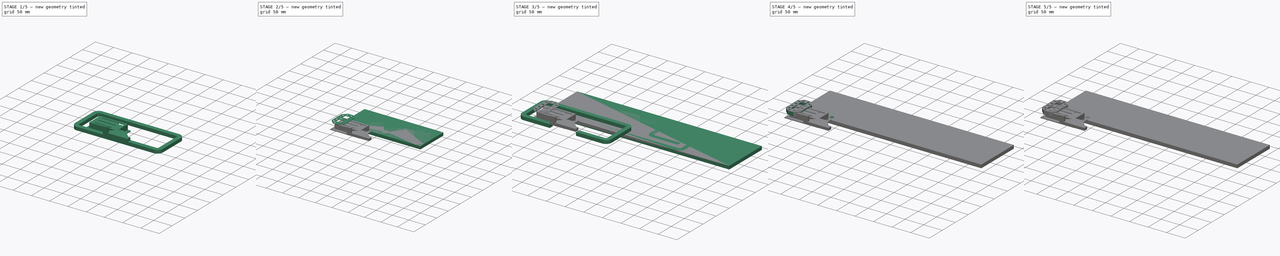
[diagram: build sequence overview — one tinted view per stage of 5, left to right]
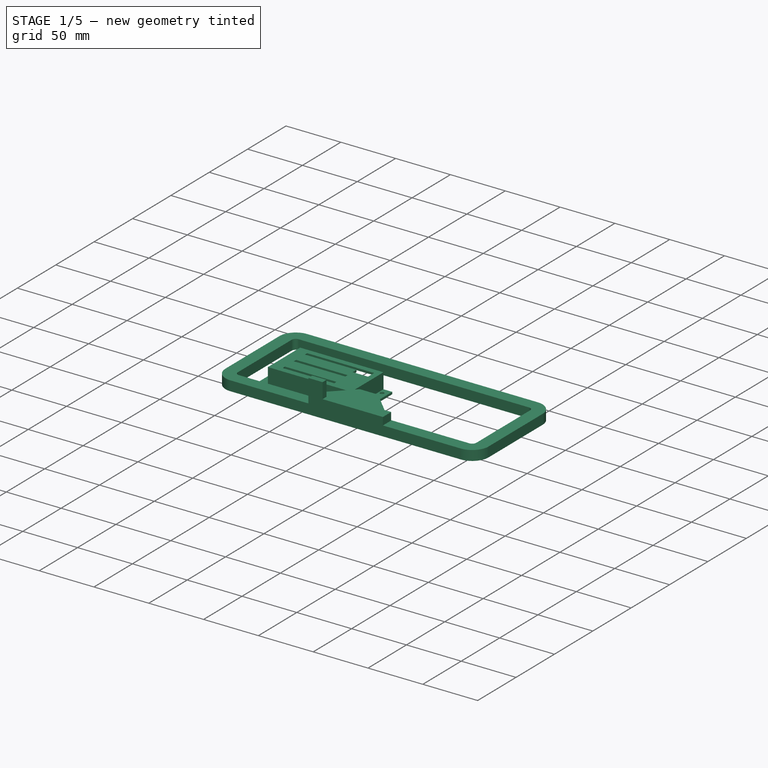
[diagram: stage 1 of 5 — iso view after this stage's code; geometry added in this stage tinted green]
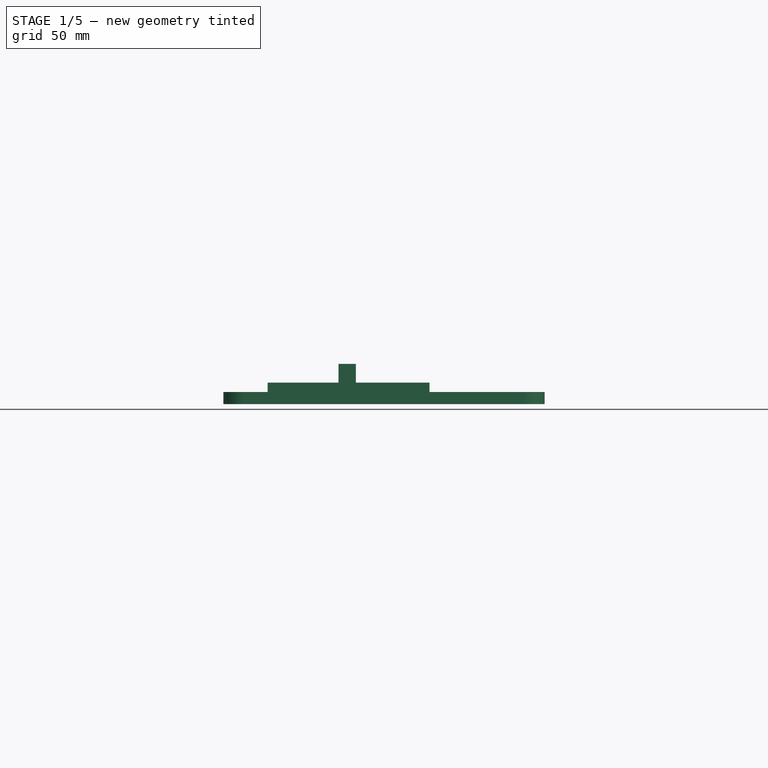
[diagram: stage 1 of 5 — front view after this stage's code; geometry added in this stage tinted green]
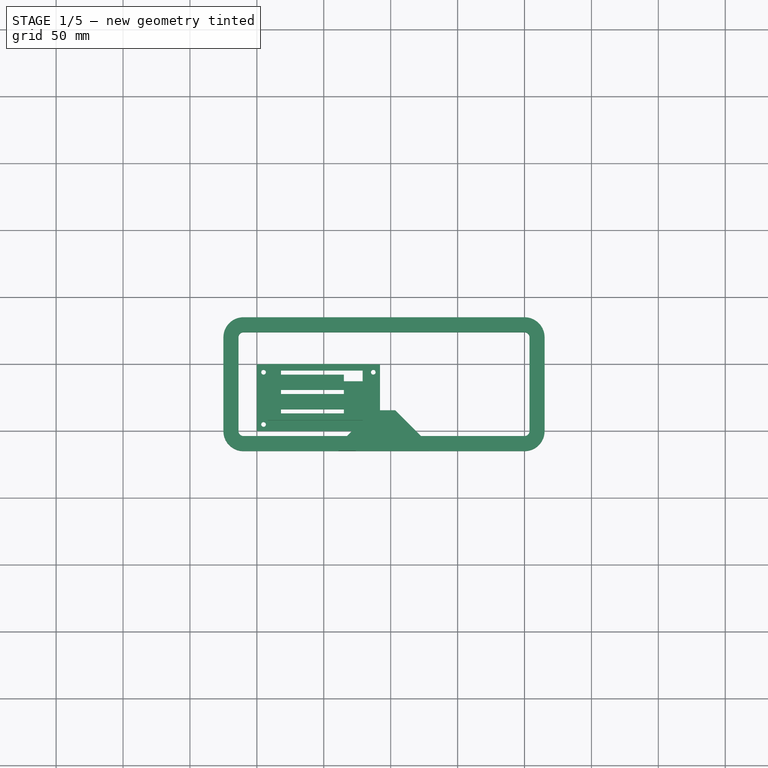
[diagram: stage 1 of 5 — top view after this stage's code; geometry added in this stage tinted green]
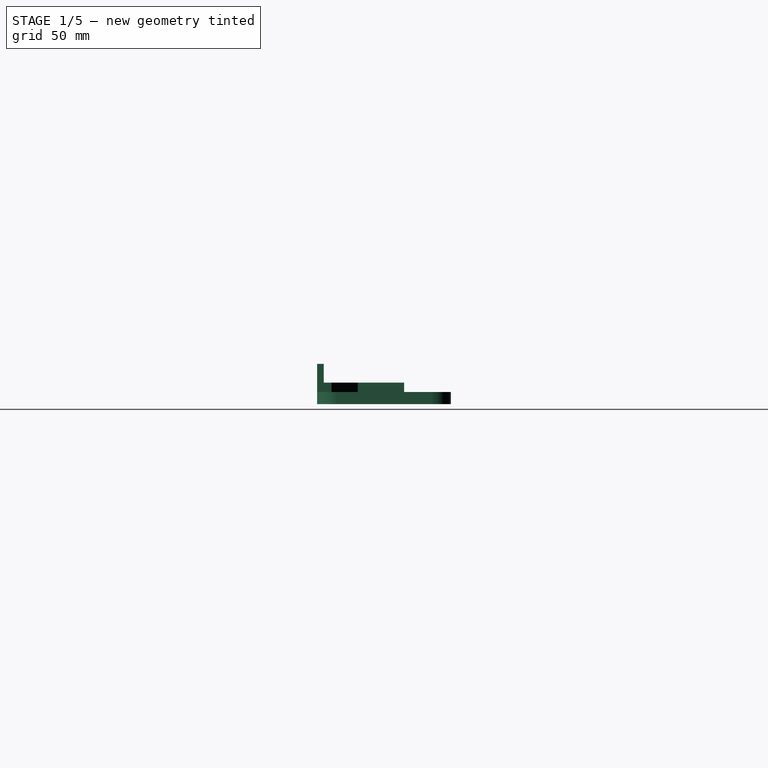
[diagram: stage 1 of 5 — right view after this stage's code; geometry added in this stage tinted green]
FCSTD DOCUMENT  (FreeCAD 0.18R16131 (Git))
Label: Plywood-7-Segment-Digital-Clock
License: All rights reserved
LicenseURL: http://en.wikipedia.org/wiki/All_rights_reserved
objects: Sketcher::SketchObject×32, PartDesign::Pad×18, Path::FeaturePython×16, PartDesign::Body×14, PartDesign::Pocket×8, Part::FeaturePython×8, PartDesign::ShapeBinder×6, App::DocumentObjectGroup×5, PartDesign::Fillet×3, App::FeaturePython×3, Path::FeatureCompoundPython×3, Spreadsheet::Sheet×1, Part::Fillet×1, PartDesign::Plane×1
note: 121 computed .brp shape members not serialized (recipe doc carries the construction recipe); baked Part::Feature solids carry a one-line shape summary decoded from their .brp

FEATURE [PartDesign::Body] Body002  label="LED WS2812B001"
  Group = -> [Sketch005,Pad002,Sketch004,Pad003,Sketch006,Pocket001,Fillet001]
  Origin = -> Origin002
  Placement = pos=(0,-22,0) rot=(0,0,1;0rad)
  Tip = -> Fillet001
FEATURE [Sketcher::SketchObject] Sketch008
  MapMode = 5
  Support = -> [XY_Plane004]
  sketch-geometry (4):
    g0: LineSegment StartX=-25 StartY=-65 StartZ=0 EndX=215 EndY=-65 EndZ=0
    g1: LineSegment StartX=215 StartY=-65 StartZ=0 EndX=215 EndY=35 EndZ=0
    g2: LineSegment StartX=215 StartY=35 StartZ=0 EndX=-25 EndY=35 EndZ=0
    g3: LineSegment StartX=-25 StartY=35 StartZ=0 EndX=-25 EndY=-65 EndZ=0
  constraints (12):
    c: Coincident(g0,g1)
    c: Coincident(g1,g2)
    c: Coincident(g2,g3)
    c: Coincident(g3,g0)
    c: Horizontal(g0)
    c: Horizontal(g2)
    c: Vertical(g1)
    c: Vertical(g3)
    c: DistanceX(g0) = -25
    c: DistanceY(g0) = -65
    c: DistanceX(g1) = 215
    c: DistanceY(g1) = 35
FEATURE [PartDesign::Pad] Pad004
  Length = 9
  Length2 = 100
  Profile = -> Sketch008
  Type = 0
FEATURE [Sketcher::SketchObject] Sketch011
  ExternalGeometry = -> [Sketch009]
  MapMode = 5
  Placement = pos=(0,0,9) rot=(0,0,1;0rad)
  Support = -> [Pad004]
  expr: Constraints[67] = Spreadsheet.ClearanceFromSegments
  expr: Constraints[46] = Spreadsheet.ClearanceFromSegments
  expr: Constraints[23] = Spreadsheet.ClearanceFromSegments
  expr: Constraints[58] = Spreadsheet.ClearanceFromSegments
  expr: Constraints[45] = Spreadsheet.ClearanceFromSegments
  expr: Constraints[29] = Spreadsheet.ClearanceFromSegments
  expr: Constraints[3] = Spreadsheet.ClearanceFromSegments
  expr: Constraints[55] = Spreadsheet.ClearanceFromSegments
  expr: Constraints[7] = Spreadsheet.ClearanceFromSegments
  expr: Constraints[43] = Spreadsheet.ClearanceFromSegments
  expr: Constraints[18] = Spreadsheet.ClearanceFromSegments
  expr: Constraints[65] = Spreadsheet.ClearanceFromSegments
  expr: Constraints[12] = Spreadsheet.ClearanceFromSegments
  expr: Constraints[56] = Spreadsheet.ClearanceFromSegments
  expr: Constraints[44] = Spreadsheet.ClearanceFromSegments
  expr: Constraints[57] = Spreadsheet.ClearanceFromSegments
  sketch-geometry (80):
    g0: LineSegment StartX=5.54584 StartY=20.45 StartZ=0 EndX=21.9527 EndY=20.45 EndZ=0
    g1: LineSegment [constr] StartX=5.75294 StartY=19.95 StartZ=0 EndX=5.75294 EndY=20.45 EndZ=0
    g2: LineSegment [constr] StartX=21.7455 StartY=19.95 StartZ=0 EndX=22.0991 EndY=20.3036 EndZ=0
    g3: LineSegment [constr] StartX=33.7 StartY=-34.4055 StartZ=0 EndX=34.0536 EndY=-34.7591 EndZ=0
    g4: LineSegment StartX=34.2 StartY=-34.6127 StartZ=0 EndX=21.9496 EndY=-46.863 EndZ=0
    g5: LineSegment [constr] StartX=21.7425 StartY=-46.363 StartZ=0 EndX=21.7425 EndY=-46.863 EndZ=0
    g6: LineSegment StartX=21.9496 StartY=-46.863 StartZ=0 EndX=5.54705 EndY=-46.863 EndZ=0
    g7: LineSegment [constr] StartX=-6.2 StartY=-34.4016 StartZ=0 EndX=-6.55366 EndY=-34.755 EndZ=0
    g8: LineSegment StartX=5.54705 StartY=-46.863 StartZ=0 EndX=-6.7 EndY=-34.6086 EndZ=0
    g9: LineSegment [constr] StartX=-6.2 StartY=7.99706 StartZ=0 EndX=-6.7 EndY=7.99706 EndZ=0
    g10: LineSegment StartX=-6.7 StartY=8.20416 StartZ=0 EndX=-6.7 EndY=-34.6086 EndZ=0
    g11: LineSegment [constr] StartX=-6.2 StartY=7.99706 StartZ=0 EndX=-6.55355 EndY=8.35061 EndZ=0
    g12: LineSegment StartX=-6.7 StartY=8.20416 StartZ=0 EndX=5.54584 EndY=20.45 EndZ=0
    g13: LineSegment StartX=6.7 StartY=7.05151 StartZ=0 EndX=20.8 EndY=7.05151 EndZ=0
    g14: LineSegment StartX=20.8 StartY=7.05151 StartZ=0 EndX=20.8 EndY=-6.685 EndZ=0
    g15: LineSegment StartX=20.8 StartY=-6.685 StartZ=0 EndX=6.7 EndY=-6.685 EndZ=0
    g16: LineSegment StartX=6.7 StartY=-6.685 StartZ=0 EndX=6.7 EndY=7.05151 EndZ=0
    g17: LineSegment StartX=6.69924 StartY=-20.0835 StartZ=0 EndX=20.7992 EndY=-20.0835 EndZ=0
    g18: LineSegment StartX=20.7992 StartY=-20.0835 StartZ=0 EndX=20.7992 EndY=-33.463 EndZ=0
    g19: LineSegment StartX=20.7992 StartY=-33.463 StartZ=0 EndX=6.69924 EndY=-33.463 EndZ=0
    g20: LineSegment StartX=6.69924 StartY=-33.463 StartZ=0 EndX=6.69924 EndY=-20.0835 EndZ=0
    g21: LineSegment [constr] StartX=33.7 StartY=-34.4055 StartZ=0 EndX=34.2 EndY=-34.4055 EndZ=0
    g22: LineSegment StartX=34.2 StartY=-34.6127 StartZ=0 EndX=34.2 EndY=8.20265 EndZ=0
    g23: LineSegment StartX=21.9527 StartY=20.45 StartZ=0 EndX=34.2 EndY=8.20265 EndZ=0
    g24: LineSegment [constr] StartX=32.5 StartY=7.5 StartZ=0 EndX=42.5 EndY=7.5 EndZ=0
    g25: LineSegment StartX=69.4527 StartY=20.45 StartZ=0 EndX=53.0458 EndY=20.45 EndZ=0
    g26: LineSegment StartX=40.8 StartY=-34.6086 StartZ=0 EndX=53.047 EndY=-46.863 EndZ=0
    g27: LineSegment StartX=53.047 StartY=-46.863 StartZ=0 EndX=69.4496 EndY=-46.863 EndZ=0
    g28: LineSegment StartX=69.4496 StartY=-46.863 StartZ=0 EndX=81.7 EndY=-34.6127 EndZ=0
    g29: LineSegment StartX=81.7 StartY=8.20265 StartZ=0 EndX=81.7 EndY=-34.6127 EndZ=0
    g30: LineSegment StartX=81.7 StartY=8.20265 StartZ=0 EndX=69.4527 EndY=20.45 EndZ=0
    g31: LineSegment StartX=68.3 StartY=7.05151 StartZ=0 EndX=54.2 EndY=7.05151 EndZ=0
    g32: LineSegment StartX=54.2 StartY=7.05151 StartZ=0 EndX=54.2 EndY=-6.685 EndZ=0
    g33: LineSegment StartX=54.2 StartY=-6.685 StartZ=0 EndX=68.3 EndY=-6.685 EndZ=0
    g34: LineSegment StartX=68.3 StartY=-6.685 StartZ=0 EndX=68.3 EndY=7.05151 EndZ=0
    g35: LineSegment StartX=68.3 StartY=-20.0835 StartZ=0 EndX=54.2 EndY=-20.0835 EndZ=0
    g36: LineSegment StartX=54.2 StartY=-20.0835 StartZ=0 EndX=54.2 EndY=-33.463 EndZ=0
    g37: LineSegment StartX=54.2 StartY=-33.463 StartZ=0 EndX=68.3 EndY=-33.463 EndZ=0
    g38: LineSegment StartX=68.3 StartY=-33.463 StartZ=0 EndX=68.3 EndY=-20.0835 EndZ=0
    g39: LineSegment StartX=40.8 StartY=-34.6086 StartZ=0 EndX=40.8 EndY=8.20416 EndZ=0
    g40: LineSegment StartX=53.0458 StartY=20.45 StartZ=0 EndX=40.8 EndY=8.20416 EndZ=0
    g41: LineSegment [constr] StartX=-5 StartY=7.5 StartZ=0 EndX=32.5 EndY=7.5 EndZ=0
    g42: LineSegment [constr] StartX=42.5 StartY=7.5 StartZ=0 EndX=80 EndY=7.5 EndZ=0
    g43: LineSegment [constr] StartX=80 StartY=7.5 StartZ=0 EndX=110 EndY=7.5 EndZ=0
    g44: LineSegment [constr] StartX=95 StartY=-34.6127 StartZ=0 EndX=95 EndY=7.5 EndZ=0
    g45: LineSegment StartX=184.455 StartY=20.4477 StartZ=0 EndX=168.045 EndY=20.4477 EndZ=0
    g46: LineSegment StartX=155.8 StartY=-34.6127 StartZ=0 EndX=168.05 EndY=-46.863 EndZ=0
    g47: LineSegment StartX=184.457 StartY=-46.863 StartZ=0 EndX=196.705 EndY=-34.6127 EndZ=0
    g48: LineSegment StartX=196.705 StartY=8.20265 StartZ=0 EndX=184.455 EndY=20.4477 EndZ=0
    g49: LineSegment StartX=183.3 StartY=7.055 StartZ=0 EndX=169.2 EndY=7.055 EndZ=0
    g50: LineSegment StartX=169.2 StartY=7.055 StartZ=0 EndX=169.2 EndY=-6.685 EndZ=0
    g51: LineSegment StartX=169.2 StartY=-6.685 StartZ=0 EndX=183.3 EndY=-6.685 EndZ=0
    g52: LineSegment StartX=183.3 StartY=-6.685 StartZ=0 EndX=183.3 EndY=7.055 EndZ=0
    g53: LineSegment StartX=183.3 StartY=-20.085 StartZ=0 EndX=169.2 EndY=-20.085 EndZ=0
    g54: LineSegment StartX=169.2 StartY=-20.085 StartZ=0 EndX=169.2 EndY=-33.463 EndZ=0
    g55: LineSegment StartX=169.2 StartY=-33.463 StartZ=0 EndX=183.3 EndY=-33.463 EndZ=0
    g56: LineSegment StartX=183.3 StartY=-33.463 StartZ=0 EndX=183.3 EndY=-20.085 EndZ=0
    g57: LineSegment StartX=168.045 StartY=20.4477 StartZ=0 EndX=155.8 EndY=8.20265 EndZ=0
    g58: LineSegment StartX=120.543 StartY=20.45 StartZ=0 EndX=136.953 EndY=20.45 EndZ=0
    g59: LineSegment StartX=149.2 StartY=-34.6127 StartZ=0 EndX=136.953 EndY=-46.863 EndZ=0
    g60: LineSegment StartX=136.953 StartY=-46.863 StartZ=0 EndX=120.55 EndY=-46.863 EndZ=0
    g61: LineSegment StartX=120.55 StartY=-46.863 StartZ=0 EndX=108.3 EndY=-34.6127 EndZ=0
    g62: LineSegment StartX=108.3 StartY=8.20265 StartZ=0 EndX=108.3 EndY=-34.6127 EndZ=0
    g63: LineSegment StartX=108.3 StartY=8.20265 StartZ=0 EndX=120.543 EndY=20.45 EndZ=0
    g64: LineSegment StartX=121.7 StartY=7.055 StartZ=0 EndX=135.8 EndY=7.055 EndZ=0
    g65: LineSegment StartX=135.8 StartY=7.055 StartZ=0 EndX=135.8 EndY=-6.685 EndZ=0
    g66: LineSegment StartX=135.8 StartY=-6.685 StartZ=0 EndX=121.7 EndY=-6.685 EndZ=0
    g67: LineSegment StartX=121.7 StartY=-6.685 StartZ=0 EndX=121.7 EndY=7.055 EndZ=0
    g68: LineSegment StartX=121.7 StartY=-20.085 StartZ=0 EndX=135.8 EndY=-20.085 EndZ=0
    g69: LineSegment StartX=135.8 StartY=-20.085 StartZ=0 EndX=135.8 EndY=-33.463 EndZ=0
    g70: LineSegment StartX=135.8 StartY=-33.463 StartZ=0 EndX=121.7 EndY=-33.463 EndZ=0
    g71: LineSegment StartX=121.7 StartY=-33.463 StartZ=0 EndX=121.7 EndY=-20.085 EndZ=0
    g72: LineSegment StartX=149.2 StartY=-34.6127 StartZ=0 EndX=149.2 EndY=8.20265 EndZ=0
    g73: LineSegment StartX=136.953 StartY=20.45 StartZ=0 EndX=149.2 EndY=8.20265 EndZ=0
    g74: LineSegment StartX=155.8 StartY=8.20265 StartZ=0 EndX=155.8 EndY=-34.6127 EndZ=0
    g75: LineSegment StartX=168.05 StartY=-46.863 StartZ=0 EndX=184.457 EndY=-46.863 EndZ=0
    g76: LineSegment StartX=196.705 StartY=-34.6127 StartZ=0 EndX=196.705 EndY=8.20265 EndZ=0
    g77: LineSegment [constr] StartX=81.7 StartY=-34.6127 StartZ=0 EndX=108.3 EndY=-34.6127 EndZ=0
    g78: Circle CenterX=95 CenterY=-24.0852 CenterZ=0 NormalX=0 NormalY=0 NormalZ=1 AngleXU=0 Radius=5
    g79: Circle CenterX=95 CenterY=-3.0275 CenterZ=0 NormalX=0 NormalY=0 NormalZ=1 AngleXU=0 Radius=5
  constraints (239):
    c: Horizontal(g0)
    c: Coincident(g1,g-4)
    c: Vertical(g1)
    c: Distance(g1) = 0.5
    c: PointOnObject(g1,g0)
    c: Perpendicular(g2,g-10)
    c: Perpendicular(g3,g-8)
    c: Distance(g3) = 0.5
    c: PointOnObject(g3,g4)
    c: Parallel(g-8,g4)
    c: Coincident(g5,g-8)
    c: Perpendicular(g5,g-7)
    c: Distance(g5) = 0.5
    c: Horizontal(g6)
    c: PointOnObject(g5,g6)
    c: Coincident(g6,g4)
    c: Coincident(g7,g-6)
    c: Perpendicular(g7,g-6)
    c: Distance(g7) = 0.5
    c: PointOnObject(g7,g8)
    c: Coincident(g6,g8)
    c: Coincident(g9,g-5)
    c: Horizontal(g9)
    c: Distance(g9) = 0.5
    c: Vertical(g10)
    c: PointOnObject(g9,g10)
    c: Coincident(g10,g8)
    c: Coincident(g11,g9)
    c: Perpendicular(g11,g-4)
    c: Distance(g11) = 0.5
    c: Parallel(g-4,g12)
    c: PointOnObject(g11,g12)
    c: Coincident(g12,g10)
    c: Coincident(g0,g12)
    c: Parallel(g-6,g8)
    c: Coincident(g13,g14)
    c: Coincident(g14,g15)
    c: Coincident(g15,g16)
    c: Coincident(g16,g13)
    c: Horizontal(g13)
    c: Horizontal(g15)
    c: Vertical(g14)
    c: Vertical(g16)
    c: DistanceX(g-17,g13) = 0.5
    c: DistanceX(g14,g-18) = 0.5
    c: DistanceY(g-18,g14) = 0.5
    c: DistanceY(g13,g-17) = 0.5
    c: Coincident(g17,g18)
    c: Coincident(g18,g19)
    c: Coincident(g19,g20)
    c: Coincident(g20,g17)
    c: Horizontal(g17)
    c: Horizontal(g19)
    c: Vertical(g18)
    c: Vertical(g20)
    c: DistanceX(g-12,g17) = 0.5
    c: DistanceY(g17,g-12) = 0.5
    c: DistanceX(g18,g-14) = 0.5
    c: DistanceY(g-14,g18) = 0.5
    c: Coincident(g4,g22)
    c: Coincident(g0,g23)
    c: Coincident(g23,g22)
    c: Angle(g0,g23) = 2.35619
    c: Angle(g23,g22) = 2.35619
    c: PointOnObject(g21,g22)
    c: Distance(g21) = 0.5
    c: PointOnObject(g2,g23)
    c: Distance(g2) = 0.5
    c: Coincident(g2,g-10)
    c: Coincident(g3,g21)
    c: Coincident(g3,g-9)
    c: Perpendicular(g22,g21)
    c: Coincident(g24,g-19)
    c: Horizontal(g24)
    c: Distance(g24) = 10
    c: Horizontal(g25)
    c: Horizontal(g27)
    c: Coincident(g27,g26)
    c: Coincident(g27,g28)
    c: Vertical(g29)
    c: Coincident(g29,g28)
    c: Coincident(g30,g29)
    c: Coincident(g25,g30)
    c: Coincident(g31,g32)
    c: Coincident(g32,g33)
    c: Coincident(g33,g34)
    c: Coincident(g34,g31)
    c: Horizontal(g31)
    c: Horizontal(g33)
    c: Vertical(g32)
    c: Vertical(g34)
    c: Coincident(g35,g36)
    c: Coincident(g36,g37)
    c: Coincident(g37,g38)
    c: Coincident(g38,g35)
    c: Horizontal(g35)
    c: Horizontal(g37)
    c: Vertical(g36)
    c: Vertical(g38)
    c: Coincident(g26,g39)
    c: Coincident(g25,g40)
    c: Coincident(g40,g39)
    c: Angle(g25,g40) = -2.35619
    c: Angle(g40,g39) = -2.35619
    c: DistanceX(g22,g39) = 6.6
    c: Equal(g12,g40)
    c: Equal(g23,g30)
    c: Equal(g8,g26)
    c: Equal(g4,g28)
    c: Equal(g0,g25)
    c: Equal(g22,g29)
    c: Equal(g14,g34)
    c: Equal(g15,g33)
    c: Equal(g18,g38)
    c: Equal(g19,g37)
    c: Equal(g6,g27)
    c: Horizontal(g0,g25)
    c: Horizontal(g22,g29)
    c: Horizontal(g6,g26)
    c: Horizontal(g15,g32)
    c: Horizontal(g17,g35)
    c: Vertical(g32,g36)
    c: DistanceX(g14,g32) = 33.4
    c: Coincident(g41,g-20)
    c: Coincident(g41,g24)
    c: Coincident(g42,g24)
    c: Horizontal(g42)
    c: Distance(g42) = 37.5
    c: Coincident(g43,g42)
    c: Horizontal(g43)
    c: Distance(g43) = 30
    c: Vertical(g44)
    c: PointOnObject(g44,g43)
    c: DistanceX(g42,g44) = 15
    c: Horizontal(g45)
    c: Coincident(g45,g48)
    c: Coincident(g49,g50)
    c: Coincident(g50,g51)
    c: Coincident(g51,g52)
    c: Coincident(g52,g49)
    c: Horizontal(g49)
    c: Horizontal(g51)
    c: Vertical(g50)
    c: Vertical(g52)
    c: Coincident(g53,g54)
    c: Coincident(g54,g55)
    c: Coincident(g55,g56)
    c: Coincident(g56,g53)
    c: Horizontal(g53)
    c: Horizontal(g55)
    c: Vertical(g54)
    c: Vertical(g56)
    c: Coincident(g45,g57)
    c: Angle(g45,g57) = -2.35619
    c: Horizontal(g58)
    c: Horizontal(g60)
    c: Coincident(g60,g59)
    c: Coincident(g60,g61)
    c: Vertical(g62)
    c: Coincident(g62,g61)
    c: Coincident(g63,g62)
    c: Coincident(g58,g63)
    c: Coincident(g64,g65)
    c: Coincident(g65,g66)
    c: Coincident(g66,g67)
    c: Coincident(g67,g64)
    c: Horizontal(g64)
    c: Horizontal(g66)
    c: Vertical(g65)
    c: Vertical(g67)
    c: Coincident(g68,g69)
    c: Coincident(g69,g70)
    c: Coincident(g70,g71)
    c: Coincident(g71,g68)
    c: Horizontal(g68)
    c: Horizontal(g70)
    c: Vertical(g69)
    c: Vertical(g71)
    c: Coincident(g59,g72)
    c: Coincident(g58,g73)
    c: Coincident(g73,g72)
    c: Angle(g58,g73) = 2.35619
    c: Angle(g73,g72) = 2.35619
    c: Equal(g48,g73)
    c: Equal(g57,g63)
    c: Equal(g47,g59)
    c: Equal(g46,g61)
    c: Equal(g45,g58)
    c: Equal(g50,g67)
    c: Equal(g51,g66)
    c: Equal(g54,g71)
    c: Equal(g55,g70)
    c: Vertical(g68,g66)
    c: Horizontal(g33,g66)
    c: Horizontal(g37,g70)
    c: Vertical(g65,g69)
    c: DistanceX(g37,g70) = 53.4
    c: DistanceX(g28,g61) = 26.6
    c: DistanceX(g27,g60) = 51.1
    c: Horizontal(g29,g62)
    c: Distance(g58) = 16.41
    c: Horizontal(g25,g58)
    c: Horizontal(g62,g72)
    c: Vertical(g59,g58)
    c: Horizontal(g64,g49)
    c: Vertical(g53,g50)
    c: DistanceX(g65,g50) = 33.4
    c: DistanceX(g66,g65) = 14.1
    c: Distance(g65) = 13.74
    c: Horizontal(g68,g53)
    c: DistanceY(g53,g50) = 13.4
    c: Horizontal(g72,g57)
    c: Horizontal(g59,g46)
    c: DistanceX(g59,g46) = 6.6
    c: DistanceX(g61,g59) = 40.9
    c: Coincident(g74,g57)
    c: Coincident(g74,g46)
    c: Vertical(g74)
    c: Coincident(g75,g46)
    c: Coincident(g75,g47)
    c: Horizontal(g75)
    c: Coincident(g76,g47)
    c: Coincident(g76,g48)
    c: Vertical(g76)
    c: Horizontal(g27,g60)
    c: Horizontal(g59,g46)
    c: Horizontal(g61,g59)
    c: Horizontal(g4,g46)
    c: Horizontal(g46,g47)
    c: Horizontal(g57,g48)
    c: Coincident(g77,g28)
    c: PointOnObject(g44,g77)
    c: Coincident(g61,g77)
    c: PointOnObject(g78,g44)
    c: PointOnObject(g79,g44)
    c: Equal(g79,g78)
    c: Radius(g79) = 5
    c: DistanceY(g79,g44) = 10.5275
    c: DistanceY(g44,g78) = 10.5275
FEATURE [Spreadsheet::Sheet] Spreadsheet
  cells = A1=ClearanceFromSegments; B1(ClearanceFromSegments)=0.5; A2=ZDepthPocketSegments; B2(ZDepthPocketSegments)==8mm; A3=LEDwidth; B3(LEDwidth)=5.25; A4=LEDsidecompWidth; B4(LEDsidecompWidth)==2mm; A5=LEDsidecompHeight; B5(LEDsidecompHeight)==0.8mm
FEATURE [PartDesign::Pocket] Pocket002
  BaseFeature = -> Pad004
  Length = 8
  Length2 = 100
  Midplane = true
  Profile = -> Sketch011
  Type = 0
  expr: Length = Spreadsheet.ZDepthPocketSegments
FEATURE [PartDesign::Body] Body010  label="BackRing002"
  Group = -> [Sketch021,Sketch018,Pad011,Sketch019,Pocket004]
  Origin = -> Origin010
  Placement = pos=(255,0,-9) rot=(0,0,1;0rad)
  Tip = -> Pocket004
FEATURE [Sketcher::SketchObject] Sketch023
  MapMode = 5
  Placement = pos=(0,0,9) rot=(0,0,1;0rad)
  sketch-geometry (16):
    g0: LineSegment StartX=-10 StartY=35 StartZ=0 EndX=200 EndY=35 EndZ=0
    g1: LineSegment StartX=215 StartY=20 StartZ=0 EndX=215 EndY=-50 EndZ=0
    g2: LineSegment StartX=200 StartY=-65 StartZ=0 EndX=-10 EndY=-65 EndZ=0
    g3: LineSegment StartX=-25 StartY=-50 StartZ=0 EndX=-25 EndY=20 EndZ=0
    g4: ArcOfCircle CenterX=-10 CenterY=-50 CenterZ=0 NormalX=0 NormalY=0 NormalZ=1 AngleXU=0 Radius=15 StartAngle=3.14159 EndAngle=4.71239
    g5: ArcOfCircle CenterX=-10 CenterY=20 CenterZ=0 NormalX=0 NormalY=0 NormalZ=1 AngleXU=0 Radius=15 StartAngle=1.5708 EndAngle=3.14159
    g6: ArcOfCircle CenterX=200 CenterY=20 CenterZ=0 NormalX=0 NormalY=0 NormalZ=1 AngleXU=0 Radius=15 StartAngle=0 EndAngle=1.5708
    g7: ArcOfCircle CenterX=200 CenterY=-50 CenterZ=0 NormalX=0 NormalY=0 NormalZ=1 AngleXU=0 Radius=15 StartAngle=4.71239 EndAngle=6.28319
    g8: LineSegment StartX=-10 StartY=23.7655 StartZ=0 EndX=200 EndY=23.7655 EndZ=0
    g9: LineSegment StartX=-10 StartY=-53.7655 StartZ=0 EndX=200 EndY=-53.7655 EndZ=0
    g10: LineSegment StartX=-13.7655 StartY=20 StartZ=0 EndX=-13.7655 EndY=-50 EndZ=0
    g11: ArcOfCircle CenterX=-10 CenterY=-50 CenterZ=0 NormalX=0 NormalY=0 NormalZ=1 AngleXU=0 Radius=3.76555 StartAngle=3.14159 EndAngle=4.71239
    g12: ArcOfCircle CenterX=-10 CenterY=20 CenterZ=0 NormalX=0 NormalY=0 NormalZ=1 AngleXU=0 Radius=3.76555 StartAngle=1.5708 EndAngle=3.14159
    g13: LineSegment StartX=203.766 StartY=20 StartZ=0 EndX=203.766 EndY=-50 EndZ=0
    g14: ArcOfCircle CenterX=200 CenterY=-50 CenterZ=0 NormalX=0 NormalY=0 NormalZ=1 AngleXU=0 Radius=3.76555 StartAngle=4.71239 EndAngle=6.28319
    g15: ArcOfCircle CenterX=200 CenterY=20 CenterZ=0 NormalX=0 NormalY=0 NormalZ=1 AngleXU=0 Radius=3.76555 StartAngle=-9e-16 EndAngle=1.5708
  constraints (31):
    c: Tangent(g3,g4) = 1.5708
    c: Tangent(g2,g4) = 1.5708
    c: Distance(g2,g4) = 15
    c: Tangent(g3,g5) = 1.5708
    c: Tangent(g0,g5) = 1.5708
    c: DistanceY(g5,g0) = 15
    c: Tangent(g0,g6) = 1.5708
    c: Tangent(g1,g6) = 1.5708
    c: Tangent(g2,g7) = 1.5708
    c: Tangent(g1,g7) = 1.5708
    c: DistanceY(g6,g0) = 15
    c: DistanceY(g2,g7) = 15
    c: Horizontal(g8)
    c: Vertical(g0,g8)
    c: Vertical(g0,g8)
    c: Horizontal(g9)
    c: Vertical(g2,g9)
    c: Vertical(g2,g9)
    c: Vertical(g10)
    c: Horizontal(g3,g10)
    c: Horizontal(g3,g10)
    c: Tangent(g9,g11) = -1.5708
    c: Tangent(g10,g11) = -1.5708
    c: Tangent(g10,g12) = -1.5708
    c: Tangent(g8,g12) = 1.5708
    c: Vertical(g13)
    c: Horizontal(g1,g13)
    c: Tangent(g9,g14) = -1.5708
    c: Tangent(g13,g14) = 1.5708
    c: Tangent(g8,g15) = 1.5708
    c: Tangent(g13,g15) = 1.5708
FEATURE [Sketcher::SketchObject] Sketch024
  ExternalGeometry = -> [Sketch023]
  MapMode = 5
  Support = -> [XY_Plane013]
  sketch-geometry (16):
    g0: LineSegment StartX=-10 StartY=35 StartZ=0 EndX=200 EndY=35 EndZ=0
    g1: LineSegment StartX=200 StartY=23.7655 StartZ=0 EndX=-10 EndY=23.7655 EndZ=0
    g2: LineSegment StartX=-10 StartY=-53.7655 StartZ=0 EndX=200 EndY=-53.7655 EndZ=0
    g3: LineSegment StartX=203.766 StartY=-50 StartZ=0 EndX=203.766 EndY=20 EndZ=0
    g4: LineSegment StartX=-13.7655 StartY=20 StartZ=0 EndX=-13.7655 EndY=-50 EndZ=0
    g5: LineSegment StartX=-25 StartY=20 StartZ=0 EndX=-25 EndY=-50 EndZ=0
    g6: LineSegment StartX=215 StartY=20 StartZ=0 EndX=215 EndY=-50 EndZ=0
    g7: LineSegment StartX=200 StartY=-65 StartZ=0 EndX=-10 EndY=-65 EndZ=0
    g8: ArcOfCircle CenterX=-10 CenterY=20 CenterZ=0 NormalX=0 NormalY=0 NormalZ=1 AngleXU=0 Radius=15 StartAngle=1.5708 EndAngle=3.14159
    g9: ArcOfCircle CenterX=-10 CenterY=-50 CenterZ=0 NormalX=0 NormalY=0 NormalZ=1 AngleXU=0 Radius=15 StartAngle=3.14159 EndAngle=4.71239
    g10: ArcOfCircle CenterX=200 CenterY=-50 CenterZ=0 NormalX=0 NormalY=0 NormalZ=1 AngleXU=0 Radius=15 StartAngle=4.71239 EndAngle=6.28319
    g11: ArcOfCircle CenterX=200 CenterY=20 CenterZ=0 NormalX=0 NormalY=0 NormalZ=1 AngleXU=0 Radius=15 StartAngle=0 EndAngle=1.5708
    g12: ArcOfCircle CenterX=200 CenterY=20 CenterZ=0 NormalX=0 NormalY=0 NormalZ=1 AngleXU=0 Radius=3.76555 StartAngle=2e-16 EndAngle=1.5708
    g13: ArcOfCircle CenterX=200 CenterY=-50 CenterZ=0 NormalX=0 NormalY=0 NormalZ=1 AngleXU=0 Radius=3.76555 StartAngle=4.71239 EndAngle=6.28319
    g14: ArcOfCircle CenterX=-10 CenterY=-50 CenterZ=0 NormalX=0 NormalY=0 NormalZ=1 AngleXU=0 Radius=3.76555 StartAngle=3.14159 EndAngle=4.71239
    g15: ArcOfCircle CenterX=-10 CenterY=20 CenterZ=0 NormalX=0 NormalY=0 NormalZ=1 AngleXU=0 Radius=3.76555 StartAngle=1.5708 EndAngle=3.14159
  constraints (34):
    c: Horizontal(g0)
    c: Tangent(g0,g8) = 1.5708
    c: Tangent(g5,g8) = -1.5708
    c: Tangent(g5,g9) = -1.5708
    c: Tangent(g7,g9) = 1.5708
    c: Tangent(g7,g10) = 1.5708
    c: Tangent(g6,g10) = 1.5708
    c: Tangent(g6,g11) = 1.5708
    c: Tangent(g0,g11) = 1.5708
    c: Tangent(g1,g12) = -1.5708
    c: Tangent(g3,g12) = -1.5708
    c: Tangent(g3,g13) = -1.5708
    c: Tangent(g2,g13) = -1.5708
    c: Tangent(g2,g14) = -1.5708
    c: Tangent(g4,g14) = -1.5708
    c: Tangent(g1,g15) = -1.5708
    c: Tangent(g4,g15) = -1.5708
    c: Vertical(g5)
    c: Vertical(g3)
    c: Vertical(g6)
    c: Radius(g8) = 15
    c: Radius(g10) = 15
    c: Radius(g11) = 15
    c: Coincident(g-4,g0)
    c: Coincident(g-7,g7)
    c: Coincident(g-8,g7)
    c: Radius(g-14) = 3.76555
    c: Coincident(g-14,g4)
    c: Coincident(g-15,g2)
    c: Coincident(g-13,g4)
    c: Coincident(g-12,g1)
    c: Coincident(g-18,g1)
    c: Coincident(g-18,g3)
    c: Coincident(g-17,g3)
FEATURE [PartDesign::Pad] Pad012
  Length = 9
  Length2 = 100
  Profile = -> Sketch024
  Type = 0
FEATURE [App::DocumentObjectGroup] Model002
  Group = -> [Clone004]
FEATURE [Path::FeaturePython] Job002  label="Job Back Panel"  # Path/CAM operation (typed FeaturePython)
  GeometryTolerance = 0.01
  Model = -> Model002
  Operations = -> Operations002
  PostProcessor = 4
  PostProcessorOutputFile = <userpath>/Documents/Plywood-7-Segment-Digital-Clock/gcode/Contour 4mm BackPanel.ngc
  SetupSheet = -> SetupSheet002
  Stock = -> Stock005
  ToolController = -> [Default_Tool]
FEATURE [PartDesign::ShapeBinder] ShapeBinder004
  Support = -> [Pocket002]
  TraceSupport = false
FEATURE [Sketcher::SketchObject] Sketch029
  ExternalGeometry = -> [ShapeBinder004]
  MapMode = 5
  Placement = pos=(0,0,9) rot=(0,0,1;0rad)
  Support = -> [ShapeBinder004]
  sketch-geometry (11):
    g0: LineSegment StartX=86.7 StartY=-34.6127 StartZ=0 EndX=103.3 EndY=-34.6127 EndZ=0
    g1: LineSegment StartX=103.3 StartY=-34.6127 StartZ=0 EndX=122.88 EndY=-54.1923 EndZ=0
    g2: LineSegment StartX=86.7 StartY=-34.6127 StartZ=0 EndX=67.1204 EndY=-54.1923 EndZ=0
    g3: GeomPoint X=95 Y=-34.6127 Z=0
    g4: LineSegment [constr] StartX=95 StartY=-34.6127 StartZ=0 EndX=95 EndY=-65 EndZ=0
    g5: LineSegment StartX=95 StartY=-65 StartZ=0 EndX=129 EndY=-65 EndZ=0
    g6: LineSegment StartX=129 StartY=-65 StartZ=0 EndX=129 EndY=-54.1923 EndZ=0
    g7: LineSegment StartX=122.88 StartY=-54.1923 StartZ=0 EndX=129 EndY=-54.1923 EndZ=0
    g8: LineSegment StartX=67.1204 StartY=-54.1923 StartZ=0 EndX=61 EndY=-54.1923 EndZ=0
    g9: LineSegment StartX=61 StartY=-54.1923 StartZ=0 EndX=61 EndY=-65 EndZ=0
    g10: LineSegment StartX=61 StartY=-65 StartZ=0 EndX=95 EndY=-65 EndZ=0
  constraints (29):
    c: Horizontal(g0)
    c: DistanceX(g-8,g0) = 5
    c: DistanceX(g0,g-9) = 5
    c: Coincident(g1,g0)
    c: Angle(g0,g1) = 2.35619
    c: Coincident(g2,g0)
    c: Angle(g2,g0) = 2.35619
    c: Horizontal(g-8,g0)
    c: Symmetric(g0,g0,g3)
    c: Coincident(g4,g3)
    c: PointOnObject(g4,g-10)
    c: Vertical(g4)
    c: Coincident(g5,g4)
    c: Distance(g5) = 34
    c: Horizontal(g5)
    c: Coincident(g6,g5)
    c: Vertical(g6)
    c: Coincident(g7,g1)
    c: Coincident(g7,g6)
    c: Horizontal(g7)
    c: Equal(g1,g2)
    c: Coincident(g8,g2)
    c: Horizontal(g8)
    c: Coincident(g9,g8)
    c: Vertical(g9)
    c: Equal(g7,g8)
    c: Equal(g6,g9)
    c: Coincident(g10,g9)
    c: Coincident(g10,g5)
FEATURE [PartDesign::Pad] Pad015
  Length = 7
  Length2 = 100
  Profile = -> Sketch029
  Type = 0
FEATURE [Sketcher::SketchObject] Sketch030
  ExternalGeometry = -> [Pad015]
  MapMode = 5
  Placement = pos=(0,0,16) rot=(0,0,1;0rad)
  Support = -> [Pad015]
  sketch-geometry (4):
    g0: LineSegment StartX=61 StartY=-65 StartZ=0 EndX=74 EndY=-65 EndZ=0
    g1: LineSegment StartX=74 StartY=-65 StartZ=0 EndX=74 EndY=-60 EndZ=0
    g2: LineSegment StartX=61 StartY=-65 StartZ=0 EndX=61 EndY=-60 EndZ=0
    g3: LineSegment StartX=74 StartY=-60 StartZ=0 EndX=61 EndY=-60 EndZ=0
  constraints (11):
    c: Coincident(g0,g-3)
    c: Horizontal(g0)
    c: Distance(g0) = 13
    c: Coincident(g1,g0)
    c: Vertical(g1)
    c: Distance(g1) = 5
    c: Coincident(g2,g0)
    c: Vertical(g2)
    c: Equal(g1,g2)
    c: Coincident(g3,g1)
    c: Coincident(g3,g2)
FEATURE [PartDesign::Pad] Pad016
  BaseFeature = -> Pad015
  Length = 14
  Length2 = 100
  Profile = -> Sketch030
  Type = 0
FEATURE [PartDesign::Body] Body014  label="Board Mount"
  Group = -> [ShapeBinder004,Sketch029,Pad015,Sketch030,Pad016]
  Origin = -> Origin014
  Placement = pos=(0,-75,0) rot=(0,0,1;0rad)
  Tip = -> Pad016
FEATURE [Sketcher::SketchObject] Sketch031
  MapMode = 5
  Support = -> [XY_Plane017]
  sketch-geometry (12):
    g0: LineSegment StartX=10 StartY=0 StartZ=0 EndX=0 EndY=0 EndZ=0
    g1: LineSegment StartX=0 StartY=0 StartZ=0 EndX=0 EndY=-50 EndZ=0
    g2: LineSegment StartX=0 StartY=-50 StartZ=0 EndX=92 EndY=-50 EndZ=0
    g3: LineSegment StartX=92 StartY=-50 StartZ=0 EndX=92 EndY=0 EndZ=0
    g4: LineSegment StartX=92 StartY=0 StartZ=0 EndX=82 EndY=1.9e-15 EndZ=0
    g5: LineSegment StartX=82 StartY=1.9e-15 StartZ=0 EndX=82 EndY=-40 EndZ=0
    g6: LineSegment StartX=82 StartY=-40 StartZ=0 EndX=10 EndY=-40 EndZ=0
    g7: LineSegment StartX=10 StartY=-40 StartZ=0 EndX=10 EndY=0 EndZ=0
    g8: Circle CenterX=5 CenterY=-45 CenterZ=0 NormalX=0 NormalY=0 NormalZ=1 AngleXU=0 Radius=1.75
    g9: Circle CenterX=87 CenterY=-45 CenterZ=0 NormalX=0 NormalY=0 NormalZ=1 AngleXU=0 Radius=1.75
    g10: Circle CenterX=87 CenterY=-6 CenterZ=0 NormalX=0 NormalY=0 NormalZ=1 AngleXU=0 Radius=1.75
    g11: Circle CenterX=5 CenterY=-6 CenterZ=0 NormalX=0 NormalY=0 NormalZ=1 AngleXU=0 Radius=1.75
  constraints (34):
    c: Coincident(g2,g3)
    c: Coincident(g3,g4)
    c: Coincident(g4,g5)
    c: Coincident(g5,g6)
    c: Coincident(g6,g7)
    c: Vertical(g1)
    c: Vertical(g7)
    c: Vertical(g5)
    c: Vertical(g3)
    c: Horizontal(g0)
    c: Horizontal(g2)
    c: Horizontal(g6)
    c: Coincident(g0,g7)
    c: Equal(g0,g4)
    c: Coincident(g0,g1)
    c: Equal(g7,g5)
    c: Equal(g1,g3)
    c: Distance(g0) = 10
    c: Distance(g1) = 50
    c: Distance(g7) = 40
    c: Coincident(g0,g-1)
    c: Distance(g6) = 72
    c: Coincident(g1,g2)
    c: Equal(g11,g8)
    c: Equal(g8,g9)
    c: Equal(g9,g10)
    c: Symmetric(g6,g1,g8)
    c: Radius(g11) = 1.75
    c: DistanceY(g10,g4) = 6
    c: DistanceX(g4,g10) = 5
    c: DistanceX(g0,g11) = 5
    c: DistanceY(g11,g0) = 6
    c: DistanceX(g9,g2) = 5
    c: DistanceY(g9,g5) = 5
FEATURE [PartDesign::Pad] Pad017
  Length = 2
  Length2 = 100
  Profile = -> Sketch031
  Type = 0
FEATURE [Sketcher::SketchObject] Sketch032
  ExternalGeometry = -> [Pad017]
  MapMode = 5
  Placement = pos=(0,0,2) rot=(0,0,1;0rad)
  Support = -> [Pad017]
  sketch-geometry (8):
    g0: LineSegment StartX=10 StartY=0 StartZ=0 EndX=10 EndY=-40 EndZ=0
    g1: LineSegment StartX=10 StartY=-40 StartZ=0 EndX=82 EndY=-40 EndZ=0
    g2: LineSegment StartX=82 StartY=-40 StartZ=0 EndX=82 EndY=0 EndZ=0
    g3: LineSegment StartX=82 StartY=0 StartZ=0 EndX=84 EndY=0 EndZ=0
    g4: LineSegment StartX=84 StartY=0 StartZ=0 EndX=84 EndY=-42 EndZ=0
    g5: LineSegment StartX=10 StartY=0 StartZ=0 EndX=8 EndY=0 EndZ=0
    g6: LineSegment StartX=8 StartY=0 StartZ=0 EndX=8 EndY=-42 EndZ=0
    g7: LineSegment StartX=8 StartY=-42 StartZ=0 EndX=84 EndY=-42 EndZ=0
  constraints (20):
    c: Coincident(g-3,g0)
    c: Coincident(g0,g-5)
    c: Coincident(g1,g0)
    c: Coincident(g1,g-5)
    c: Coincident(g2,g1)
    c: Coincident(g2,g-4)
    c: Coincident(g3,g2)
    c: Horizontal(g3)
    c: Coincident(g4,g3)
    c: Vertical(g4)
    c: DistanceY(g4,g1) = 2
    c: Coincident(g5,g0)
    c: PointOnObject(g5,g-1)
    c: Distance(g5) = 2
    c: Coincident(g6,g5)
    c: Vertical(g6)
    c: DistanceY(g6,g0) = 2
    c: Coincident(g7,g6)
    c: Coincident(g7,g4)
    c: DistanceX(g1,g4) = 2
FEATURE [PartDesign::Pad] Pad018
  BaseFeature = -> Pad017
  Length = 12
  Length2 = 100
  Profile = -> Sketch032
  Type = 0
FEATURE [Sketcher::SketchObject] Sketch033
  ExternalGeometry = -> [Pad018]
  MapMode = 5
  Placement = pos=(0,0,14) rot=(0,0,1;0rad)
  Support = -> [Pad018]
  sketch-geometry (20):
    g0: LineSegment StartX=8 StartY=0 StartZ=0 EndX=84 EndY=0 EndZ=0
    g1: LineSegment StartX=84 StartY=0 StartZ=0 EndX=84 EndY=-42 EndZ=0
    g2: LineSegment StartX=84 StartY=-42 StartZ=0 EndX=8 EndY=-42 EndZ=0
    g3: LineSegment StartX=8 StartY=-42 StartZ=0 EndX=8 EndY=0 EndZ=0
    g4: LineSegment StartX=18 StartY=-5 StartZ=0 EndX=74 EndY=-5 EndZ=0
    g5: LineSegment StartX=65 StartY=-8 StartZ=0 EndX=18 EndY=-8 EndZ=0
    g6: LineSegment StartX=18 StartY=-8 StartZ=0 EndX=18 EndY=-5 EndZ=0
    g7: LineSegment StartX=18 StartY=-19.5 StartZ=0 EndX=65 EndY=-19.5 EndZ=0
    g8: LineSegment StartX=65 StartY=-19.5 StartZ=0 EndX=65 EndY=-22.5 EndZ=0
    g9: LineSegment StartX=65 StartY=-22.5 StartZ=0 EndX=18 EndY=-22.5 EndZ=0
    g10: LineSegment StartX=18 StartY=-22.5 StartZ=0 EndX=18 EndY=-19.5 EndZ=0
    g11: LineSegment StartX=18 StartY=-34 StartZ=0 EndX=65 EndY=-34 EndZ=0
    g12: LineSegment StartX=65 StartY=-34 StartZ=0 EndX=65 EndY=-37 EndZ=0
    g13: LineSegment StartX=65 StartY=-37 StartZ=0 EndX=18 EndY=-37 EndZ=0
    g14: LineSegment StartX=18 StartY=-37 StartZ=0 EndX=18 EndY=-34 EndZ=0
    g15: GeomPoint X=18 Y=-21 Z=0
    g16: LineSegment StartX=74 StartY=-5 StartZ=0 EndX=79 EndY=-5 EndZ=0
    g17: LineSegment StartX=79 StartY=-5 StartZ=0 EndX=79 EndY=-13 EndZ=0
    g18: LineSegment StartX=79 StartY=-13 StartZ=0 EndX=65 EndY=-13 EndZ=0
    g19: LineSegment StartX=65 StartY=-13 StartZ=0 EndX=65 EndY=-8 EndZ=0
  constraints (55):
    c: Coincident(g0,g1)
    c: Coincident(g1,g2)
    c: Coincident(g2,g3)
    c: Coincident(g3,g0)
    c: Horizontal(g0)
    c: Horizontal(g2)
    c: Vertical(g1)
    c: Vertical(g3)
    c: Coincident(g0,g-3)
    c: Coincident(g1,g-4)
    c: Coincident(g5,g6)
    c: Coincident(g6,g4)
    c: Horizontal(g4)
    c: Vertical(g6)
    c: DistanceY(g4,g0) = 5
    c: DistanceX(g0,g4) = 10
    c: DistanceX(g4,g0) = 10
    c: Distance(g6) = 3
    c: Coincident(g7,g8)
    c: Coincident(g8,g9)
    c: Coincident(g9,g10)
    c: Coincident(g10,g7)
    c: Horizontal(g7)
    c: Vertical(g8)
    c: Vertical(g10)
    c: Coincident(g11,g12)
    c: Coincident(g12,g13)
    c: Coincident(g13,g14)
    c: Coincident(g14,g11)
    c: Horizontal(g11)
    c: Vertical(g12)
    c: Vertical(g14)
    c: Vertical(g5,g7)
    c: Vertical(g5,g7)
    c: Vertical(g7,g11)
    c: Equal(g6,g10)
    c: Equal(g10,g14)
    c: Equal(g8,g12)
    c: DistanceY(g2,g13) = 5
    c: Symmetric(g7,g9,g15)
    c: Symmetric(g5,g11,g15)
    c: Coincident(g16,g4)
    c: DistanceX(g16,g0) = 5
    c: Horizontal(g16)
    c: Coincident(g17,g16)
    c: Vertical(g17)
    c: Distance(g17) = 8
    c: Coincident(g18,g17)
    c: Horizontal(g18)
    c: Coincident(g19,g18)
    c: Vertical(g19)
    c: Coincident(g19,g5)
    c: DistanceX(g5,g16) = 14
    c: Horizontal(g5)
    c: DistanceY(g8,g8) = 3
FEATURE [PartDesign::Pad] Pad019
  BaseFeature = -> Pad018
  Length = 2
  Length2 = 100
  Profile = -> Sketch033
  Type = 0
FEATURE [PartDesign::Body] Body015  label="Back cover"
  Group = -> [Sketch031,Pad017,Sketch032,Pad018,Sketch033,Pad019]
  Origin = -> Origin015
  Placement = pos=(0,125,0) rot=(0,0,1;0rad)
  Tip = -> Pad019
note: 1 file-system path scrubbed to <path> (originals preserved in the JSON sidecar)
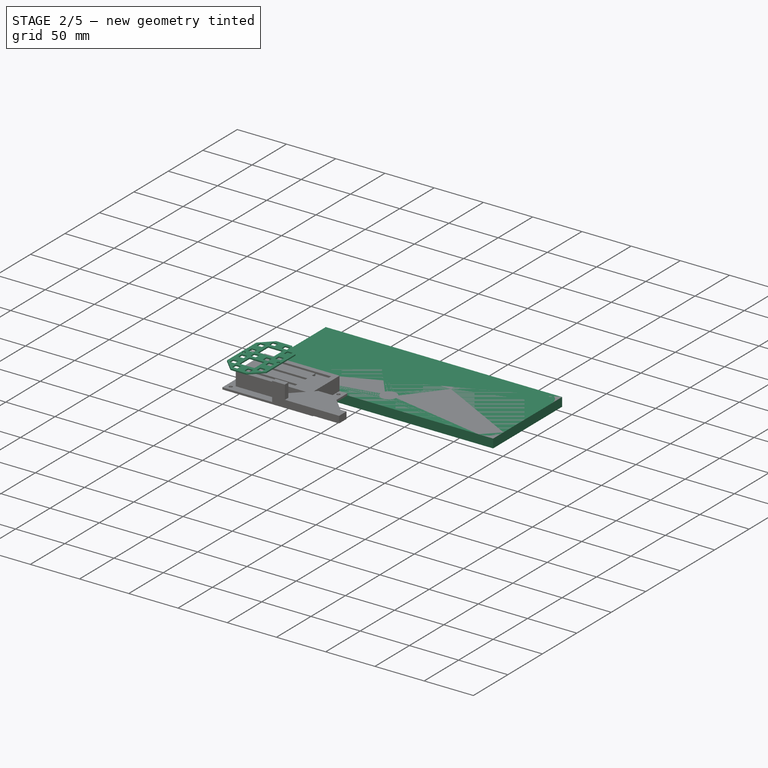
[diagram: stage 2 of 5 — iso view after this stage's code; geometry added in this stage tinted green]
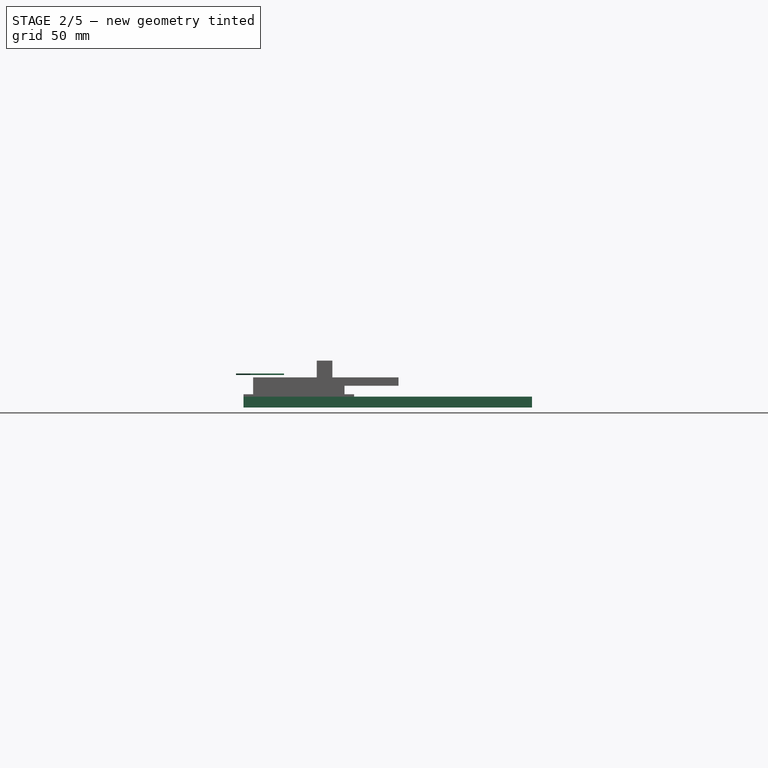
[diagram: stage 2 of 5 — front view after this stage's code; geometry added in this stage tinted green]
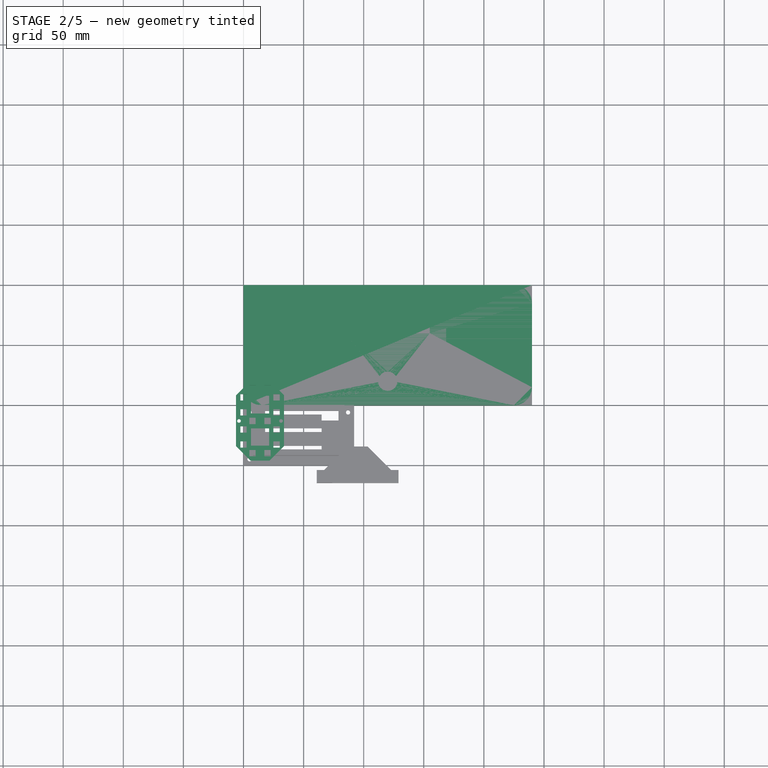
[diagram: stage 2 of 5 — top view after this stage's code; geometry added in this stage tinted green]
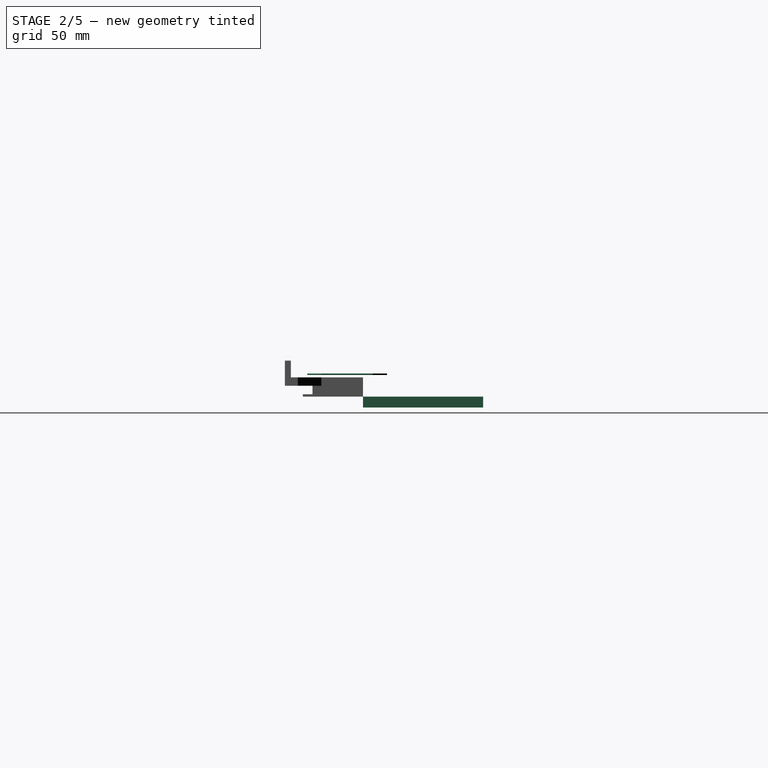
[diagram: stage 2 of 5 — right view after this stage's code; geometry added in this stage tinted green]
FEATURE [Sketcher::SketchObject] Sketch009
  MapMode = 5
  Placement = pos=(0,0,9) rot=(0,0,1;0rad)
  Support = -> [Pad004]
  sketch-geometry (74):
    g0: LineSegment StartX=-5 StartY=7.5 StartZ=0 EndX=-5 EndY=-7.5 EndZ=0
    g1: LineSegment StartX=-5 StartY=-7.5 StartZ=0 EndX=0 EndY=-12.5 EndZ=0
    g2: LineSegment StartX=0 StartY=-12.5 StartZ=0 EndX=5 EndY=-7.5 EndZ=0
    g3: LineSegment StartX=5 StartY=-7.5 StartZ=0 EndX=5 EndY=7.5 EndZ=0
    g4: LineSegment StartX=5 StartY=7.5 StartZ=0 EndX=0 EndY=12.5 EndZ=0
    g5: LineSegment StartX=0 StartY=12.5 StartZ=0 EndX=-5 EndY=7.5 EndZ=0
    g6: LineSegment StartX=6.25 StartY=8.75151 StartZ=0 EndX=1.25 EndY=13.75 EndZ=0
    g7: LineSegment StartX=6.25 StartY=8.75151 StartZ=0 EndX=21.25 EndY=8.75151 EndZ=0
    g8: LineSegment StartX=1.25 StartY=13.75 StartZ=0 EndX=6.24849 EndY=18.75 EndZ=0
    g9: LineSegment StartX=6.24849 StartY=18.75 StartZ=0 EndX=21.2485 EndY=18.75 EndZ=0
    g10: LineSegment StartX=21.2485 StartY=18.75 StartZ=0 EndX=26.2485 EndY=13.75 EndZ=0
    g11: LineSegment StartX=21.25 StartY=8.75151 StartZ=0 EndX=26.2485 EndY=13.75 EndZ=0
    g12: LineSegment StartX=22.5 StartY=7.5 StartZ=0 EndX=22.5 EndY=-7.5 EndZ=0
    g13: LineSegment StartX=22.5 StartY=-7.5 StartZ=0 EndX=27.5 EndY=-12.5 EndZ=0
    g14: LineSegment StartX=27.5 StartY=-12.5 StartZ=0 EndX=32.5 EndY=-7.5 EndZ=0
    g15: LineSegment StartX=32.5 StartY=-7.5 StartZ=0 EndX=32.5 EndY=7.5 EndZ=0
    g16: LineSegment StartX=32.5 StartY=7.5 StartZ=0 EndX=27.5 EndY=12.5 EndZ=0
    g17: LineSegment StartX=27.5 StartY=12.5 StartZ=0 EndX=22.5 EndY=7.5 EndZ=0
    g18: LineSegment [constr] StartX=-5 StartY=7.5 StartZ=0 EndX=22.5 EndY=7.5 EndZ=0
    g19: LineSegment StartX=-5.00076 StartY=-19.2708 StartZ=0 EndX=-5.00076 EndY=-34.2708 EndZ=0
    g20: LineSegment StartX=-5.00076 StartY=-34.2708 StartZ=0 EndX=-0.00151011 EndY=-39.27 EndZ=0
    g21: LineSegment StartX=-0.00151011 StartY=-39.27 StartZ=0 EndX=4.99924 EndY=-34.2692 EndZ=0
    g22: LineSegment StartX=4.99924 StartY=-34.2692 StartZ=0 EndX=4.99924 EndY=-19.2692 EndZ=0
    g23: LineSegment StartX=4.99924 StartY=-19.2692 StartZ=0 EndX=0 EndY=-14.27 EndZ=0
    g24: LineSegment StartX=0 StartY=-14.27 StartZ=0 EndX=-5.00076 EndY=-19.2708 EndZ=0
    g25: LineSegment StartX=22.4992 StartY=-19.2708 StartZ=0 EndX=22.4992 EndY=-34.2708 EndZ=0
    g26: LineSegment StartX=22.4992 StartY=-34.2708 StartZ=0 EndX=27.4985 EndY=-39.27 EndZ=0
    g27: LineSegment StartX=27.4985 StartY=-39.27 StartZ=0 EndX=32.4992 EndY=-34.2692 EndZ=0
    g28: LineSegment StartX=32.4992 StartY=-34.2692 StartZ=0 EndX=32.4992 EndY=-19.2692 EndZ=0
    g29: LineSegment StartX=32.4992 StartY=-19.2692 StartZ=0 EndX=27.5 EndY=-14.27 EndZ=0
    g30: LineSegment StartX=27.5 StartY=-14.27 StartZ=0 EndX=22.4992 EndY=-19.2708 EndZ=0
    g31: LineSegment [constr] StartX=27.5 StartY=-14.27 StartZ=0 EndX=27.5 EndY=-12.5 EndZ=0
    g32: LineSegment [constr] StartX=27.5 StartY=-12.5 StartZ=0 EndX=26.25 EndY=-12.5 EndZ=0
    g33: LineSegment [constr] StartX=26.25 StartY=-12.5 StartZ=0 EndX=26.25 EndY=-13.385 EndZ=0
    g34: LineSegment StartX=1.25151 StartY=-13.385 StartZ=0 EndX=6.25 EndY=-8.385 EndZ=0
    g35: LineSegment StartX=6.25151 StartY=-18.3835 StartZ=0 EndX=1.25151 EndY=-13.385 EndZ=0
    g36: LineSegment StartX=6.25 StartY=-8.385 StartZ=0 EndX=21.25 EndY=-8.385 EndZ=0
    g37: LineSegment StartX=6.25151 StartY=-18.3835 StartZ=0 EndX=21.2515 EndY=-18.3835 EndZ=0
    g38: LineSegment StartX=21.2515 StartY=-18.3835 StartZ=0 EndX=26.25 EndY=-13.385 EndZ=0
    g39: LineSegment StartX=21.25 StartY=-8.385 StartZ=0 EndX=26.25 EndY=-13.385 EndZ=0
    g40: LineSegment [constr] StartX=27.5001 StartY=-41.04 StartZ=0 EndX=27.5001 EndY=-39.27 EndZ=0
    g41: LineSegment [constr] StartX=26.2485 StartY=-39.275 StartZ=0 EndX=26.2485 EndY=-40.16 EndZ=0
    g42: LineSegment [constr] StartX=27.4985 StartY=-39.275 StartZ=0 EndX=26.2485 EndY=-39.275 EndZ=0
    g43: LineSegment StartX=6.25151 StartY=-45.163 StartZ=0 EndX=1.25151 EndY=-40.16 EndZ=0
    g44: LineSegment StartX=1.25151 StartY=-40.16 StartZ=0 EndX=6.25151 EndY=-35.163 EndZ=0
    g45: LineSegment StartX=6.25151 StartY=-35.163 StartZ=0 EndX=21.2515 EndY=-35.163 EndZ=0
    g46: LineSegment StartX=6.25151 StartY=-45.163 StartZ=0 EndX=21.2455 EndY=-45.163 EndZ=0
    g47: LineSegment StartX=21.2455 StartY=-45.163 StartZ=0 EndX=26.2485 EndY=-40.16 EndZ=0
    g48: LineSegment StartX=21.2515 StartY=-35.163 StartZ=0 EndX=26.2485 EndY=-40.16 EndZ=0
    g49: LineSegment StartX=-6.2 StartY=-34.4016 StartZ=0 EndX=-6.2 EndY=7.99706 EndZ=0
    g50: LineSegment [constr] StartX=0 StartY=12.5 StartZ=0 EndX=-0.848528 EndY=13.3485 EndZ=0
    g51: LineSegment StartX=-6.2 StartY=7.99706 StartZ=0 EndX=5.75294 EndY=19.95 EndZ=0
    g52: LineSegment [constr] StartX=-5 StartY=7.5 StartZ=0 EndX=-6.2 EndY=7.5 EndZ=0
    g53: LineSegment [constr] StartX=6.24849 StartY=18.75 StartZ=0 EndX=6.24849 EndY=19.95 EndZ=0
    g54: LineSegment [constr] StartX=21.2485 StartY=18.75 StartZ=0 EndX=21.2485 EndY=19.95 EndZ=0
    g55: LineSegment StartX=5.75294 StartY=19.95 StartZ=0 EndX=21.7455 EndY=19.95 EndZ=0
    g56: LineSegment StartX=21.7455 StartY=19.95 StartZ=0 EndX=33.7 EndY=7.99555 EndZ=0
    g57: LineSegment [constr] StartX=32.5 StartY=7.5 StartZ=0 EndX=33.7 EndY=7.5 EndZ=0
    g58: LineSegment [constr] StartX=26.2485 StartY=13.75 StartZ=0 EndX=27.097 EndY=14.5985 EndZ=0
    g59: LineSegment StartX=33.7 StartY=7.99555 StartZ=0 EndX=33.7 EndY=-34.4055 EndZ=0
    g60: LineSegment [constr] StartX=1.25151 StartY=-40.16 StartZ=0 EndX=0.402726 EndY=-41.0083 EndZ=0
    g61: LineSegment [constr] StartX=26.2485 StartY=-40.16 StartZ=0 EndX=27.097 EndY=-41.0085 EndZ=0
    g62: LineSegment [constr] StartX=6.25151 StartY=-45.163 StartZ=0 EndX=6.25151 EndY=-46.363 EndZ=0
    g63: LineSegment StartX=-6.2 StartY=-34.4016 StartZ=0 EndX=5.75424 EndY=-46.363 EndZ=0
    g64: LineSegment StartX=5.75424 StartY=-46.363 StartZ=0 EndX=21.7425 EndY=-46.363 EndZ=0
    g65: LineSegment StartX=21.7425 StartY=-46.363 StartZ=0 EndX=33.7 EndY=-34.4055 EndZ=0
    g66: LineSegment StartX=6.19924 StartY=-19.5835 StartZ=0 EndX=21.2992 EndY=-19.5835 EndZ=0
    g67: LineSegment StartX=21.2992 StartY=-19.5835 StartZ=0 EndX=21.2992 EndY=-33.963 EndZ=0
    g68: LineSegment StartX=21.2992 StartY=-33.963 StartZ=0 EndX=6.19924 EndY=-33.963 EndZ=0
    g69: LineSegment StartX=6.19924 StartY=-33.963 StartZ=0 EndX=6.19924 EndY=-19.5835 EndZ=0
    g70: LineSegment StartX=6.2 StartY=7.55151 StartZ=0 EndX=21.3 EndY=7.55151 EndZ=0
    g71: LineSegment StartX=21.3 StartY=7.55151 StartZ=0 EndX=21.3 EndY=-7.185 EndZ=0
    g72: LineSegment StartX=21.3 StartY=-7.185 StartZ=0 EndX=6.2 EndY=-7.185 EndZ=0
    g73: LineSegment StartX=6.2 StartY=-7.185 StartZ=0 EndX=6.2 EndY=7.55151 EndZ=0
  constraints (220):
    c: Vertical(g0)
    c: Coincident(g1,g0)
    c: PointOnObject(g1,g-2)
    c: Coincident(g2,g1)
    c: Coincident(g3,g2)
    c: Vertical(g3)
    c: Coincident(g4,g3)
    c: PointOnObject(g4,g-2)
    c: Coincident(g5,g4)
    c: Coincident(g5,g0)
    c: Angle(g0,g5) = 2.35619
    c: Angle(g5,g4) = 1.5708
    c: Angle(g1,g0) = 2.35619
    c: Angle(g2,g1) = 1.5708
    c: DistanceX(g0,g-1) = 5
    c: DistanceX(g-1,g3) = 5
    c: DistanceY(g-1,g4) = 12.5
    c: DistanceY(g1,g-1) = 12.5
    c: DistanceX(g3,g6) = 1.25
    c: DistanceX(g4,g6) = 1.25
    c: Distance(g6) = 7.07
    c: DistanceY(g6) = 8.75151
    c: Coincident(g7,g6)
    c: Horizontal(g7)
    c: Distance(g7) = 15
    c: Coincident(g8,g6)
    c: Angle(g6,g8) = 1.5708
    c: Distance(g8) = 7.07
    c: Coincident(g9,g8)
    c: Horizontal(g9)
    c: Distance(g9) = 15
    c: Coincident(g10,g9)
    c: Angle(g9,g10) = 2.35619
    c: Coincident(g11,g7)
    c: Coincident(g11,g10)
    c: Angle(g11,g7) = 2.35619
    c: Vertical(g12)
    c: Coincident(g13,g12)
    c: Coincident(g14,g13)
    c: Coincident(g15,g14)
    c: Vertical(g15)
    c: Coincident(g16,g15)
    c: Coincident(g17,g16)
    c: Coincident(g17,g12)
    c: Angle(g12,g17) = 2.35619
    c: Angle(g17,g16) = 1.5708
    c: Angle(g13,g12) = 2.35619
    c: Angle(g14,g13) = 1.5708
    c: Coincident(g0,g18)
    c: Coincident(g12,g18)
    c: Distance(g18) = 27.5
    c: Angle(g18) = 0
    c: Distance(g15) = 15
    c: DistanceX(g12,g15) = 10
    c: DistanceX(g1,g13) = 27.5
    c: DistanceX(g4,g16) = 27.5
    c: Vertical(g19)
    c: Coincident(g20,g19)
    c: Coincident(g21,g20)
    c: Coincident(g22,g21)
    c: Vertical(g22)
    c: Coincident(g23,g22)
    c: Coincident(g24,g23)
    c: Coincident(g24,g19)
    c: Angle(g19,g24) = 2.35619
    c: Angle(g24,g23) = 1.5708
    c: Angle(g20,g19) = 2.35619
    c: Angle(g21,g20) = 1.5708
    c: PointOnObject(g24,g-2)
    c: Distance(g1,g23) = 1.77
    c: DistanceX(g19,g22) = 10
    c: Distance(g22) = 15
    c: Distance(g23) = 7.07
    c: Distance(g20) = 7.07
    c: Vertical(g25)
    c: Coincident(g26,g25)
    c: Coincident(g27,g26)
    c: Coincident(g28,g27)
    c: Vertical(g28)
    c: Coincident(g29,g28)
    c: Coincident(g30,g29)
    c: Coincident(g30,g25)
    c: Angle(g25,g30) = 2.35619
    c: Angle(g30,g29) = 1.5708
    c: Angle(g26,g25) = 2.35619
    c: Angle(g27,g26) = 1.5708
    c: DistanceX(g25,g28) = 10
    c: Equal(g22,g28) = 15
    c: Equal(g23,g29) = 7.07
    c: Equal(g20,g26) = 7.07
    c: Coincident(g31,g29)
    c: Coincident(g31,g13)
    c: Coincident(g32,g13)
    c: Horizontal(g32)
    c: Distance(g32) = 1.25
    c: Coincident(g33,g32)
    c: Distance(g33) = 0.885
    c: Vertical(g33)
    c: Equal(g6,g35) = 7.07
    c: Coincident(g37,g35)
    c: Horizontal(g37)
    c: Equal(g7,g37) = 15
    c: Coincident(g34,g35)
    c: Angle(g35,g34) = 1.5708
    c: Equal(g8,g34) = 7.07
    c: Coincident(g36,g34)
    c: Horizontal(g36)
    c: Equal(g9,g36) = 15
    c: Coincident(g39,g36)
    c: Angle(g36,g39) = 2.35619
    c: Coincident(g38,g37)
    c: Coincident(g38,g39)
    c: Angle(g38,g37) = 2.35619
    c: Coincident(g39,g33)
    c: Vertical(g34,g6)
    c: Horizontal(g42)
    c: Equal(g32,g42) = 1.25
    c: Coincident(g41,g42)
    c: Equal(g33,g41) = 0.885
    c: Vertical(g41)
    c: Angle(g42,g40) = 1.5708
    c: DistanceX(g42,g26) = 1.25
    c: Distance(g26,g40) = 1.77
    c: Distance(g42,g38) = 25.89
    c: Distance(g40) = 1.77
    c: Distance(g41,g40) = 1.53
    c: Coincident(g46,g43)
    c: Horizontal(g46)
    c: Coincident(g44,g43)
    c: Angle(g43,g44) = 1.5708
    c: Coincident(g45,g44)
    c: Horizontal(g45)
    c: Coincident(g48,g45)
    c: Angle(g45,g48) = 2.35619
    c: Coincident(g47,g46)
    c: Coincident(g47,g48)
    c: Angle(g47,g46) = 2.35619
    c: Coincident(g48,g41)
    c: Vertical(g44,g35)
    c: Vertical(g37,g45)
    c: Vertical(g34,g43)
    c: Vertical(g44,g43)
    c: Horizontal(g47,g43)
    c: Vertical(g49)
    c: Coincident(g50,g4)
    c: Distance(g50) = 1.2
    c: Parallel(g5,g51)
    c: Perpendicular(g51,g50)
    c: PointOnObject(g50,g51)
    c: Coincident(g52,g0)
    c: Horizontal(g52)
    c: Distance(g52) = 1.2
    c: PointOnObject(g52,g49)
    c: Coincident(g51,g49)
    c: Coincident(g53,g8)
    c: Vertical(g53)
    c: Coincident(g54,g9)
    c: Vertical(g54)
    c: Distance(g53) = 1.2
    c: Distance(g54) = 1.2
    c: Horizontal(g55)
    c: PointOnObject(g53,g55)
    c: Coincident(g55,g51)
    c: Parallel(g10,g56)
    c: Coincident(g55,g56)
    c: Coincident(g57,g15)
    c: Horizontal(g57)
    c: Distance(g57) = 1.2
    c: Coincident(g58,g10)
    c: Perpendicular(g56,g58)
    c: Distance(g58) = 1.2
    c: PointOnObject(g58,g56)
    c: Vertical(g59)
    c: PointOnObject(g57,g59)
    c: Coincident(g56,g59)
    c: Coincident(g60,g43)
    c: Perpendicular(g43,g60)
    c: Distance(g60) = 1.2
    c: Coincident(g61,g47)
    c: Perpendicular(g61,g47)
    c: Distance(g61) = 1.2
    c: Coincident(g62,g43)
    c: Perpendicular(g62,g46)
    c: Distance(g62) = 1.2
    c: Horizontal(g64)
    c: Parallel(g43,g63)
    c: PointOnObject(g60,g63)
    c: PointOnObject(g62,g64)
    c: PointOnObject(g61,g65)
    c: Parallel(g47,g65)
    c: Coincident(g59,g65)
    c: Coincident(g65,g64)
    c: Coincident(g64,g63)
    c: Coincident(g63,g49)
    c: Vertical(g31)
    c: Horizontal(g28,g22)
    c: Coincident(g66,g67)
    c: Coincident(g67,g68)
    c: Coincident(g68,g69)
    c: Coincident(g69,g66)
    c: Horizontal(g66)
    c: Horizontal(g68)
    c: Vertical(g67)
    c: Vertical(g69)
    c: DistanceY(g66,g35) = 1.2
    c: DistanceX(g22,g66) = 1.2
    c: DistanceX(g67,g25) = 1.2
    c: DistanceY(g45,g67) = 1.2
    c: Coincident(g70,g71)
    c: Coincident(g71,g72)
    c: Coincident(g72,g73)
    c: Coincident(g73,g70)
    c: Horizontal(g70)
    c: Horizontal(g72)
    c: Vertical(g71)
    c: Vertical(g73)
    c: DistanceY(g70,g6) = 1.2
    c: DistanceX(g3,g70) = 1.2
    c: DistanceX(g71,g12) = 1.2
    c: DistanceY(g36,g71) = 1.2
FEATURE [Sketcher::SketchObject] CopySketch010  label="3D Print Segment Sketch"
  Placement = pos=(0,0,9) rot=(0,0,1;0rad)
  sketch-geometry (76):
    g0: LineSegment StartX=-5 StartY=7.5 StartZ=0 EndX=-5 EndY=-7.5 EndZ=0
    g1: LineSegment StartX=-5 StartY=-7.5 StartZ=0 EndX=0 EndY=-12.5 EndZ=0
    g2: LineSegment StartX=0 StartY=-12.5 StartZ=0 EndX=5 EndY=-7.5 EndZ=0
    g3: LineSegment StartX=5 StartY=-7.5 StartZ=0 EndX=5 EndY=7.5 EndZ=0
    g4: LineSegment StartX=5 StartY=7.5 StartZ=0 EndX=0 EndY=12.5 EndZ=0
    g5: LineSegment StartX=0 StartY=12.5 StartZ=0 EndX=-5 EndY=7.5 EndZ=0
    g6: LineSegment StartX=6.25 StartY=8.75151 StartZ=0 EndX=1.25 EndY=13.75 EndZ=0
    g7: LineSegment StartX=6.25 StartY=8.75151 StartZ=0 EndX=21.25 EndY=8.75151 EndZ=0
    g8: LineSegment StartX=1.25 StartY=13.75 StartZ=0 EndX=6.24849 EndY=18.75 EndZ=0
    g9: LineSegment StartX=6.24849 StartY=18.75 StartZ=0 EndX=21.2485 EndY=18.75 EndZ=0
    g10: LineSegment StartX=21.2485 StartY=18.75 StartZ=0 EndX=26.2485 EndY=13.75 EndZ=0
    g11: LineSegment StartX=21.25 StartY=8.75151 StartZ=0 EndX=26.2485 EndY=13.75 EndZ=0
    g12: LineSegment StartX=22.5 StartY=7.5 StartZ=0 EndX=22.5 EndY=-7.5 EndZ=0
    g13: LineSegment StartX=22.5 StartY=-7.5 StartZ=0 EndX=27.5 EndY=-12.5 EndZ=0
    g14: LineSegment StartX=27.5 StartY=-12.5 StartZ=0 EndX=32.5 EndY=-7.5 EndZ=0
    g15: LineSegment StartX=32.5 StartY=-7.5 StartZ=0 EndX=32.5 EndY=7.5 EndZ=0
    g16: LineSegment StartX=32.5 StartY=7.5 StartZ=0 EndX=27.5 EndY=12.5 EndZ=0
    g17: LineSegment StartX=27.5 StartY=12.5 StartZ=0 EndX=22.5 EndY=7.5 EndZ=0
    g18: LineSegment [constr] StartX=-5 StartY=7.5 StartZ=0 EndX=22.5 EndY=7.5 EndZ=0
    g19: LineSegment StartX=-5.00076 StartY=-19.2708 StartZ=0 EndX=-5.00076 EndY=-34.2708 EndZ=0
    g20: LineSegment StartX=-5.00076 StartY=-34.2708 StartZ=0 EndX=-0.00151011 EndY=-39.27 EndZ=0
    g21: LineSegment StartX=-0.00151011 StartY=-39.27 StartZ=0 EndX=4.99924 EndY=-34.2692 EndZ=0
    g22: LineSegment StartX=4.99924 StartY=-34.2692 StartZ=0 EndX=4.99924 EndY=-19.2692 EndZ=0
    g23: LineSegment StartX=4.99924 StartY=-19.2692 StartZ=0 EndX=0 EndY=-14.27 EndZ=0
    g24: LineSegment StartX=0 StartY=-14.27 StartZ=0 EndX=-5.00076 EndY=-19.2708 EndZ=0
    g25: LineSegment StartX=22.4992 StartY=-19.2708 StartZ=0 EndX=22.4992 EndY=-34.2708 EndZ=0
    g26: LineSegment StartX=22.4992 StartY=-34.2708 StartZ=0 EndX=27.4985 EndY=-39.27 EndZ=0
    g27: LineSegment StartX=27.4985 StartY=-39.27 StartZ=0 EndX=32.4992 EndY=-34.2692 EndZ=0
    g28: LineSegment StartX=32.4992 StartY=-34.2692 StartZ=0 EndX=32.4992 EndY=-19.2692 EndZ=0
    g29: LineSegment StartX=32.4992 StartY=-19.2692 StartZ=0 EndX=27.5 EndY=-14.27 EndZ=0
    g30: LineSegment StartX=27.5 StartY=-14.27 StartZ=0 EndX=22.4992 EndY=-19.2708 EndZ=0
    g31: LineSegment [constr] StartX=27.5 StartY=-14.27 StartZ=0 EndX=27.5 EndY=-12.5 EndZ=0
    g32: LineSegment [constr] StartX=27.5 StartY=-12.5 StartZ=0 EndX=26.25 EndY=-12.5 EndZ=0
    g33: LineSegment [constr] StartX=26.25 StartY=-12.5 StartZ=0 EndX=26.25 EndY=-13.385 EndZ=0
    g34: LineSegment StartX=1.25151 StartY=-13.385 StartZ=0 EndX=6.25 EndY=-8.385 EndZ=0
    g35: LineSegment StartX=6.25151 StartY=-18.3835 StartZ=0 EndX=1.25151 EndY=-13.385 EndZ=0
    g36: LineSegment StartX=6.25 StartY=-8.385 StartZ=0 EndX=21.25 EndY=-8.385 EndZ=0
    g37: LineSegment StartX=6.25151 StartY=-18.3835 StartZ=0 EndX=21.2515 EndY=-18.3835 EndZ=0
    g38: LineSegment StartX=21.2515 StartY=-18.3835 StartZ=0 EndX=26.25 EndY=-13.385 EndZ=0
    g39: LineSegment StartX=21.25 StartY=-8.385 StartZ=0 EndX=26.25 EndY=-13.385 EndZ=0
    g40: LineSegment [constr] StartX=27.5001 StartY=-41.04 StartZ=0 EndX=27.5001 EndY=-39.27 EndZ=0
    g41: LineSegment [constr] StartX=26.2485 StartY=-39.275 StartZ=0 EndX=26.2485 EndY=-40.16 EndZ=0
    g42: LineSegment [constr] StartX=27.4985 StartY=-39.275 StartZ=0 EndX=26.2485 EndY=-39.275 EndZ=0
    g43: LineSegment StartX=6.25151 StartY=-45.163 StartZ=0 EndX=1.25151 EndY=-40.16 EndZ=0
    g44: LineSegment StartX=1.25151 StartY=-40.16 StartZ=0 EndX=6.25151 EndY=-35.163 EndZ=0
    g45: LineSegment StartX=6.25151 StartY=-35.163 StartZ=0 EndX=21.2515 EndY=-35.163 EndZ=0
    g46: LineSegment StartX=6.25151 StartY=-45.163 StartZ=0 EndX=21.2455 EndY=-45.163 EndZ=0
    g47: LineSegment StartX=21.2455 StartY=-45.163 StartZ=0 EndX=26.2485 EndY=-40.16 EndZ=0
    g48: LineSegment StartX=21.2515 StartY=-35.163 StartZ=0 EndX=26.2485 EndY=-40.16 EndZ=0
    g49: LineSegment StartX=-6.2 StartY=-34.4016 StartZ=0 EndX=-6.2 EndY=7.99706 EndZ=0
    g50: LineSegment [constr] StartX=0 StartY=12.5 StartZ=0 EndX=-0.848528 EndY=13.3485 EndZ=0
    g51: LineSegment StartX=-6.2 StartY=7.99706 StartZ=0 EndX=5.75294 EndY=19.95 EndZ=0
    g52: LineSegment [constr] StartX=-5 StartY=7.5 StartZ=0 EndX=-6.2 EndY=7.5 EndZ=0
    g53: LineSegment [constr] StartX=6.24849 StartY=18.75 StartZ=0 EndX=6.24849 EndY=19.95 EndZ=0
    g54: LineSegment [constr] StartX=21.2485 StartY=18.75 StartZ=0 EndX=21.2485 EndY=19.95 EndZ=0
    g55: LineSegment StartX=5.75294 StartY=19.95 StartZ=0 EndX=21.7455 EndY=19.95 EndZ=0
    g56: LineSegment StartX=21.7455 StartY=19.95 StartZ=0 EndX=33.7 EndY=7.99555 EndZ=0
    g57: LineSegment [constr] StartX=32.5 StartY=7.5 StartZ=0 EndX=33.7 EndY=7.5 EndZ=0
    g58: LineSegment [constr] StartX=26.2485 StartY=13.75 StartZ=0 EndX=27.097 EndY=14.5985 EndZ=0
    g59: LineSegment StartX=33.7 StartY=7.99555 StartZ=0 EndX=33.7 EndY=-34.4055 EndZ=0
    g60: LineSegment [constr] StartX=1.25151 StartY=-40.16 StartZ=0 EndX=0.402726 EndY=-41.0083 EndZ=0
    g61: LineSegment [constr] StartX=26.2485 StartY=-40.16 StartZ=0 EndX=27.097 EndY=-41.0085 EndZ=0
    g62: LineSegment [constr] StartX=6.25151 StartY=-45.163 StartZ=0 EndX=6.25151 EndY=-46.363 EndZ=0
    g63: LineSegment StartX=-6.2 StartY=-34.4016 StartZ=0 EndX=5.75424 EndY=-46.363 EndZ=0
    g64: LineSegment StartX=5.75424 StartY=-46.363 StartZ=0 EndX=21.7425 EndY=-46.363 EndZ=0
    g65: LineSegment StartX=21.7425 StartY=-46.363 StartZ=0 EndX=33.7 EndY=-34.4055 EndZ=0
    g66: LineSegment StartX=6.19924 StartY=-19.5835 StartZ=0 EndX=21.2992 EndY=-19.5835 EndZ=0
    g67: LineSegment StartX=21.2992 StartY=-19.5835 StartZ=0 EndX=21.2992 EndY=-33.963 EndZ=0
    g68: LineSegment StartX=21.2992 StartY=-33.963 StartZ=0 EndX=6.19924 EndY=-33.963 EndZ=0
    g69: LineSegment StartX=6.19924 StartY=-33.963 StartZ=0 EndX=6.19924 EndY=-19.5835 EndZ=0
    g70: LineSegment StartX=6.2 StartY=7.55151 StartZ=0 EndX=21.3 EndY=7.55151 EndZ=0
    g71: LineSegment StartX=21.3 StartY=7.55151 StartZ=0 EndX=21.3 EndY=-7.185 EndZ=0
    g72: LineSegment StartX=21.3 StartY=-7.185 StartZ=0 EndX=6.2 EndY=-7.185 EndZ=0
    g73: LineSegment StartX=6.2 StartY=-7.185 StartZ=0 EndX=6.2 EndY=7.55151 EndZ=0
    g74: Circle CenterX=-3.74849 CenterY=-13.385 CenterZ=0 NormalX=0 NormalY=0 NormalZ=1 AngleXU=0 Radius=1.5
    g75: Circle CenterX=31.25 CenterY=-13.385 CenterZ=0 NormalX=0 NormalY=0 NormalZ=1 AngleXU=0 Radius=1.5
  constraints (226):
    c: Vertical(g0)
    c: Coincident(g1,g0)
    c: PointOnObject(g1,g-2)
    c: Coincident(g2,g1)
    c: Coincident(g3,g2)
    c: Vertical(g3)
    c: Coincident(g4,g3)
    c: PointOnObject(g4,g-2)
    c: Coincident(g5,g4)
    c: Coincident(g5,g0)
    c: Angle(g0,g5) = 2.35619
    c: Angle(g5,g4) = 1.5708
    c: Angle(g1,g0) = 2.35619
    c: Angle(g2,g1) = 1.5708
    c: DistanceX(g0,g-1) = 5
    c: DistanceX(g-1,g3) = 5
    c: DistanceY(g-1,g4) = 12.5
    c: DistanceY(g1,g-1) = 12.5
    c: DistanceX(g3,g6) = 1.25
    c: DistanceX(g4,g6) = 1.25
    c: Distance(g6) = 7.07
    c: DistanceY(g6) = 8.75151
    c: Coincident(g7,g6)
    c: Horizontal(g7)
    c: Distance(g7) = 15
    c: Coincident(g8,g6)
    c: Angle(g6,g8) = 1.5708
    c: Distance(g8) = 7.07
    c: Coincident(g9,g8)
    c: Horizontal(g9)
    c: Distance(g9) = 15
    c: Coincident(g10,g9)
    c: Angle(g9,g10) = 2.35619
    c: Coincident(g11,g7)
    c: Coincident(g11,g10)
    c: Angle(g11,g7) = 2.35619
    c: Vertical(g12)
    c: Coincident(g13,g12)
    c: Coincident(g14,g13)
    c: Coincident(g15,g14)
    c: Vertical(g15)
    c: Coincident(g16,g15)
    c: Coincident(g17,g16)
    c: Coincident(g17,g12)
    c: Angle(g12,g17) = 2.35619
    c: Angle(g17,g16) = 1.5708
    c: Angle(g13,g12) = 2.35619
    c: Angle(g14,g13) = 1.5708
    c: Coincident(g0,g18)
    c: Coincident(g12,g18)
    c: Distance(g18) = 27.5
    c: Angle(g18) = 0
    c: Distance(g15) = 15
    c: DistanceX(g12,g15) = 10
    c: DistanceX(g1,g13) = 27.5
    c: DistanceX(g4,g16) = 27.5
    c: Vertical(g19)
    c: Coincident(g20,g19)
    c: Coincident(g21,g20)
    c: Coincident(g22,g21)
    c: Vertical(g22)
    c: Coincident(g23,g22)
    c: Coincident(g24,g23)
    c: Coincident(g24,g19)
    c: Angle(g19,g24) = 2.35619
    c: Angle(g24,g23) = 1.5708
    c: Angle(g20,g19) = 2.35619
    c: Angle(g21,g20) = 1.5708
    c: PointOnObject(g24,g-2)
    c: Distance(g1,g23) = 1.77
    c: DistanceX(g19,g22) = 10
    c: Distance(g22) = 15
    c: Distance(g23) = 7.07
    c: Distance(g20) = 7.07
    c: Vertical(g25)
    c: Coincident(g26,g25)
    c: Coincident(g27,g26)
    c: Coincident(g28,g27)
    c: Vertical(g28)
    c: Coincident(g29,g28)
    c: Coincident(g30,g29)
    c: Coincident(g30,g25)
    c: Angle(g25,g30) = 2.35619
    c: Angle(g30,g29) = 1.5708
    c: Angle(g26,g25) = 2.35619
    c: Angle(g27,g26) = 1.5708
    c: DistanceX(g25,g28) = 10
    c: Equal(g22,g28) = 15
    c: Equal(g23,g29) = 7.07
    c: Equal(g20,g26) = 7.07
    c: Coincident(g31,g29)
    c: Coincident(g31,g13)
    c: Coincident(g32,g13)
    c: Horizontal(g32)
    c: Distance(g32) = 1.25
    c: Coincident(g33,g32)
    c: Distance(g33) = 0.885
    c: Vertical(g33)
    c: Equal(g6,g35) = 7.07
    c: Coincident(g37,g35)
    c: Horizontal(g37)
    c: Equal(g7,g37) = 15
    c: Coincident(g34,g35)
    c: Angle(g35,g34) = 1.5708
    c: Equal(g8,g34) = 7.07
    c: Coincident(g36,g34)
    c: Horizontal(g36)
    c: Equal(g9,g36) = 15
    c: Coincident(g39,g36)
    c: Angle(g36,g39) = 2.35619
    c: Coincident(g38,g37)
    c: Coincident(g38,g39)
    c: Angle(g38,g37) = 2.35619
    c: Coincident(g39,g33)
    c: Vertical(g34,g6)
    c: Horizontal(g42)
    c: Equal(g32,g42) = 1.25
    c: Coincident(g41,g42)
    c: Equal(g33,g41) = 0.885
    c: Vertical(g41)
    c: Angle(g42,g40) = 1.5708
    c: DistanceX(g42,g26) = 1.25
    c: Distance(g26,g40) = 1.77
    c: Distance(g42,g38) = 25.89
    c: Distance(g40) = 1.77
    c: Distance(g41,g40) = 1.53
    c: Coincident(g46,g43)
    c: Horizontal(g46)
    c: Coincident(g44,g43)
    c: Angle(g43,g44) = 1.5708
    c: Coincident(g45,g44)
    c: Horizontal(g45)
    c: Coincident(g48,g45)
    c: Angle(g45,g48) = 2.35619
    c: Coincident(g47,g46)
    c: Coincident(g47,g48)
    c: Angle(g47,g46) = 2.35619
    c: Coincident(g48,g41)
    c: Vertical(g44,g35)
    c: Vertical(g37,g45)
    c: Vertical(g34,g43)
    c: Vertical(g44,g43)
    c: Horizontal(g47,g43)
    c: Vertical(g49)
    c: Coincident(g50,g4)
    c: Distance(g50) = 1.2
    c: Parallel(g5,g51)
    c: Perpendicular(g51,g50)
    c: PointOnObject(g50,g51)
    c: Coincident(g52,g0)
    c: Horizontal(g52)
    c: Distance(g52) = 1.2
    c: PointOnObject(g52,g49)
    c: Coincident(g51,g49)
    c: Coincident(g53,g8)
    c: Vertical(g53)
    c: Coincident(g54,g9)
    c: Vertical(g54)
    c: Distance(g53) = 1.2
    c: Distance(g54) = 1.2
    c: Horizontal(g55)
    c: PointOnObject(g53,g55)
    c: Coincident(g55,g51)
    c: Parallel(g10,g56)
    c: Coincident(g55,g56)
    c: Coincident(g57,g15)
    c: Horizontal(g57)
    c: Distance(g57) = 1.2
    c: Coincident(g58,g10)
    c: Perpendicular(g56,g58)
    c: Distance(g58) = 1.2
    c: PointOnObject(g58,g56)
    c: Vertical(g59)
    c: PointOnObject(g57,g59)
    c: Coincident(g56,g59)
    c: Coincident(g60,g43)
    c: Perpendicular(g43,g60)
    c: Distance(g60) = 1.2
    c: Coincident(g61,g47)
    c: Perpendicular(g61,g47)
    c: Distance(g61) = 1.2
    c: Coincident(g62,g43)
    c: Perpendicular(g62,g46)
    c: Distance(g62) = 1.2
    c: Horizontal(g64)
    c: Parallel(g43,g63)
    c: PointOnObject(g60,g63)
    c: PointOnObject(g62,g64)
    c: PointOnObject(g61,g65)
    c: Parallel(g47,g65)
    c: Coincident(g59,g65)
    c: Coincident(g65,g64)
    c: Coincident(g64,g63)
    c: Coincident(g63,g49)
    c: Vertical(g31)
    c: Horizontal(g28,g22)
    c: Coincident(g66,g67)
    c: Coincident(g67,g68)
    c: Coincident(g68,g69)
    c: Coincident(g69,g66)
    c: Horizontal(g66)
    c: Horizontal(g68)
    c: Vertical(g67)
    c: Vertical(g69)
    c: DistanceY(g66,g35) = 1.2
    c: DistanceX(g22,g66) = 1.2
    c: DistanceX(g67,g25) = 1.2
    c: DistanceY(g45,g67) = 1.2
    c: Coincident(g70,g71)
    c: Coincident(g71,g72)
    c: Coincident(g72,g73)
    c: Coincident(g73,g70)
    c: Horizontal(g70)
    c: Horizontal(g72)
    c: Vertical(g71)
    c: Vertical(g73)
    c: DistanceY(g70,g6) = 1.2
    c: DistanceX(g3,g70) = 1.2
    c: DistanceX(g71,g12) = 1.2
    c: DistanceY(g36,g71) = 1.2
    c: Radius(g74) = 1.5
    c: Horizontal(g34,g74)
    c: DistanceX(g74,g34) = 5
    c: Equal(g74,g75)
    c: Horizontal(g38,g75)
    c: DistanceX(g38,g75) = 5
FEATURE [PartDesign::Pad] Pad005
  Length = 9
  Length2 = 100
  Placement = pos=(0,0,9) rot=(0,0,1;0rad)
  Profile = -> CopySketch010
  Type = 0
FEATURE [Sketcher::SketchObject] Sketch022
  ExternalGeometry = -> [Pad012]
  MapMode = 5
  Placement = pos=(0,0,9) rot=(0,0,1;0rad)
  Support = -> [Pad012]
  sketch-geometry (6):
    g0: LineSegment [constr] StartX=95 StartY=-53.7655 StartZ=0 EndX=95 EndY=-65 EndZ=0
    g1: LineSegment StartX=95 StartY=-53.7655 StartZ=0 EndX=130 EndY=-53.7655 EndZ=0
    g2: LineSegment StartX=95 StartY=-53.7655 StartZ=0 EndX=60 EndY=-53.7655 EndZ=0
    g3: LineSegment StartX=60 StartY=-53.7655 StartZ=0 EndX=60 EndY=-65 EndZ=0
    g4: LineSegment StartX=130 StartY=-53.7655 StartZ=0 EndX=130 EndY=-65 EndZ=0
    g5: LineSegment StartX=60 StartY=-65 StartZ=0 EndX=130 EndY=-65 EndZ=0
  constraints (17):
    c: Vertical(g0)
    c: PointOnObject(g0,g-7)
    c: Symmetric(g-4,g-4,g0)
    c: DistanceX(g2,g2) = 35
    c: Horizontal(g2)
    c: Horizontal(g1)
    c: Coincident(g1,g2)
    c: Coincident(g0,g1)
    c: DistanceX(g1,g1) = 35
    c: Vertical(g3)
    c: Vertical(g4)
    c: Coincident(g1,g4)
    c: PointOnObject(g4,g-7)
    c: Horizontal(g5)
    c: Coincident(g3,g5)
    c: Coincident(g4,g5)
    c: Coincident(g2,g3)
FEATURE [PartDesign::Pocket] Pocket005
  BaseFeature = -> Pad012
  Length = 5
  Length2 = 100
  Profile = -> Sketch022
  Type = 1
FEATURE [Path::FeaturePython] T1__4mm001  label="T1: 4mm"  # Path/CAM operation (typed FeaturePython)
  HorizFeed = 6.66667
  HorizRapid = 0
  SpindleDir = 0
  SpindleSpeed = 0
  ToolNumber = 1
  VertFeed = 6.66667
  VertRapid = 0
  expr: HorizRapid = SetupSheet001.HorizRapid
  expr: VertRapid = SetupSheet001.VertRapid
FEATURE [Path::FeaturePython] Contour001  # Path/CAM operation (typed FeaturePython)
  Active = true
  AreaParams:
    Tolerance = 1e-07
    FitArcs = True
    Simplify = False
    CleanDistance = 0.0
    Accuracy = 0.01
    Unit = 1.0
    MinArcPoints = 4
    MaxArcPoints = 100
    ClipperScale = 10000000.0
    Fill = 0
    Coplanar = 2
    Reorient = True
    Outline = False
    Explode = False
    OpenMode = 0
    Deflection = 0.01
    SubjectFill = 0
    ClipFill = 0
    Offset = 2.0
    ExtraPass = 0
    Stepover = 0.0
    LastStepover = 0.0
    JoinType = 0
    EndType = 0
    MiterLimit = 2.0
    RoundPrecision = 0.0
    PocketMode = 0
    ToolRadius = 1.0
    PocketExtraOffset = 0.0
    PocketStepover = 0.0
    PocketLastStepover = 0.0
    FromCenter = False
    Angle = 45.0
    AngleShift = 0.0
    Shift = 0.0
    Thicken = False
    SectionCount = -1
    Stepdown = 1.0
    SectionOffset = 0.0
    SectionTolerance = 1e-06
    SectionMode = 2
    Project = False
  ClearanceHeight = 25
  Direction = 0
  FinalDepth = -9.5
  JoinType = 0
  MiterLimit = 0.1
  OffsetExtra = 0
  OpFinalDepth = -9
  OpStartDepth = 0
  OpStockZMax = 0
  OpStockZMin = -9
  OpToolDiameter = 4
  PathParams = {'orientation': 1, 'feedrate': 6.66667, 'feedrate_v': 6.66667, 'verbose': True, 'resume_height': 23.0, 'retraction': 25.0, 'return_end': True, 'preamble': False}
  SafeHeight = 23
  Side = 0
  StartDepth = 0
  StartPoint = (0,0,0)
  StepDown = 3
  ToolController = -> T1__4mm001
  UseComp = true
  UseStartPoint = false
  expr: ClearanceHeight = OpStockZMax + SetupSheet001.ClearanceHeightOffset + 20mm
  expr: SafeHeight = OpStockZMax + SetupSheet001.SafeHeightOffset + 20mm
  expr: StepDown = 3
  expr: FinalDepth = -9.5
  expr: StartDepth = OpStartDepth
FEATURE [Path::FeaturePython] TagDressup001  # Path/CAM operation (typed FeaturePython)
  Angle = 45
  Base = -> Contour001
  Height = 2.5
  Positions = (18) [(169.6,23,0),(70.64,23,0),(40.14,111.77,0),(184.24,111.77,0),(176.85,86.77,0),(316.54,86.77,0),(315.24,23,0),(431.49,23,0),(305.75,111.77,0),+9 more]
  Radius = 0
  SegmentationFactor = 50
  Width = 15
FEATURE [Path::FeatureCompoundPython] Operations001  # Path/CAM operation (typed FeaturePython)
  Group = -> [TagDressup001]
  UsePlacements = false
FEATURE [Path::FeaturePython] Job001  # Path/CAM operation (typed FeaturePython)
  GeometryTolerance = 0.01
  Model = -> Model001
  Operations = -> Operations001
  PostProcessor = 4
  PostProcessorOutputFile = <path> 4mm BackRings.ngc
  SetupSheet = -> SetupSheet001
  Stock = -> Stock003
  ToolController = -> [T1__4mm001]
FEATURE [PartDesign::ShapeBinder] ShapeBinder002
  Placement = pos=(0,0,9) rot=(0,0,1;0rad)
  Support = -> [Pad005]
  TraceSupport = false
FEATURE [Sketcher::SketchObject] Sketch025
  ExternalGeometry = -> [ShapeBinder002]
  MapMode = 5
  Placement = pos=(0,0,18) rot=(0,0,1;0rad)
  Support = -> [ShapeBinder002]
  expr: Constraints[251] = Spreadsheet.LEDwidth
  expr: Constraints[223] = Spreadsheet.LEDwidth
  expr: Constraints[222] = Spreadsheet.LEDwidth
  expr: Constraints[250] = Spreadsheet.LEDwidth
  expr: Constraints[221] = Spreadsheet.LEDwidth
  expr: Constraints[220] = Spreadsheet.LEDwidth
  expr: Constraints[219] = Spreadsheet.LEDwidth
  expr: Constraints[217] = Spreadsheet.LEDwidth
  expr: Constraints[216] = Spreadsheet.LEDwidth
  expr: Constraints[214] = Spreadsheet.LEDwidth
  expr: Constraints[215] = Spreadsheet.LEDwidth
  expr: Constraints[213] = Spreadsheet.LEDwidth
  expr: Constraints[218] = Spreadsheet.LEDwidth
  expr: Constraints[69] = Spreadsheet.LEDwidth
  sketch-geometry (108):
    g0: LineSegment StartX=-6.2 StartY=7.99706 StartZ=0 EndX=5.75294 EndY=19.95 EndZ=0
    g1: LineSegment StartX=5.75294 StartY=19.95 StartZ=0 EndX=21.7455 EndY=19.95 EndZ=0
    g2: LineSegment StartX=21.7455 StartY=19.95 StartZ=0 EndX=33.7 EndY=7.99555 EndZ=0
    g3: LineSegment StartX=33.7 StartY=7.99555 StartZ=0 EndX=33.7 EndY=-34.4055 EndZ=0
    g4: LineSegment StartX=33.7 StartY=-34.4055 StartZ=0 EndX=21.7425 EndY=-46.363 EndZ=0
    g5: LineSegment StartX=21.7425 StartY=-46.363 StartZ=0 EndX=5.75424 EndY=-46.363 EndZ=0
    g6: LineSegment StartX=5.75424 StartY=-46.363 StartZ=0 EndX=-6.2 EndY=-34.4016 EndZ=0
    g7: LineSegment StartX=-6.2 StartY=-34.4016 StartZ=0 EndX=-6.2 EndY=7.99706 EndZ=0
    g8: LineSegment StartX=6.2 StartY=7.55151 StartZ=0 EndX=21.3 EndY=7.55151 EndZ=0
    g9: LineSegment StartX=21.3 StartY=7.55151 StartZ=0 EndX=21.3 EndY=-7.185 EndZ=0
    g10: LineSegment StartX=21.3 StartY=-7.185 StartZ=0 EndX=6.2 EndY=-7.185 EndZ=0
    g11: LineSegment StartX=6.2 StartY=-7.185 StartZ=0 EndX=6.2 EndY=7.55151 EndZ=0
    g12: LineSegment StartX=6.19924 StartY=-19.5835 StartZ=0 EndX=21.2992 EndY=-19.5835 EndZ=0
    g13: LineSegment StartX=21.2992 StartY=-19.5835 StartZ=0 EndX=21.2992 EndY=-33.963 EndZ=0
    g14: LineSegment StartX=21.2992 StartY=-33.963 StartZ=0 EndX=6.19924 EndY=-33.963 EndZ=0
    g15: LineSegment StartX=6.19924 StartY=-33.963 StartZ=0 EndX=6.19924 EndY=-19.5835 EndZ=0
    g16: Circle CenterX=-3.74849 CenterY=-13.385 CenterZ=0 NormalX=0 NormalY=0 NormalZ=1 AngleXU=0 Radius=1.5
    g17: Circle CenterX=31.25 CenterY=-13.385 CenterZ=0 NormalX=0 NormalY=0 NormalZ=1 AngleXU=0 Radius=1.5
    g18: GeomPoint X=13.7492 Y=13.75 Z=0
    g19: GeomPoint X=27.5 Y=-3.9e-15 Z=0
    g20: GeomPoint X=27.4992 Y=-26.77 Z=0
    g21: GeomPoint X=13.75 Y=-40.16 Z=0
    g22: GeomPoint X=-0.000755057 Y=-26.77 Z=0
    g23: GeomPoint X=13.7508 Y=-13.385 Z=0
    g24: GeomPoint X=7.49962 Y=13.75 Z=0
    g25: GeomPoint X=19.9989 Y=13.75 Z=0
    g26: GeomPoint X=27.5 Y=6.25 Z=0
    g27: GeomPoint X=27.5 Y=-6.25 Z=0
    g28: GeomPoint X=27.4996 Y=-20.52 Z=0
    g29: GeomPoint X=27.4989 Y=-33.02 Z=0
    g30: GeomPoint X=19.9992 Y=-40.16 Z=0
    g31: GeomPoint X=7.50076 Y=-40.16 Z=0
    g32: GeomPoint X=-0.00113259 Y=-33.02 Z=0
    g33: GeomPoint X=-0.000377529 Y=-20.52 Z=0
    g34: GeomPoint X=7.50113 Y=-13.385 Z=0
    g35: GeomPoint X=20.0004 Y=-13.385 Z=0
    g36: GeomPoint X=0 Y=-6.25 Z=0
    g37: GeomPoint X=-4e-16 Y=6.25 Z=0
    g38: LineSegment StartX=10.1246 StartY=11.125 StartZ=0 EndX=10.1246 EndY=16.375 EndZ=0
    g39: LineSegment StartX=10.1246 StartY=16.375 StartZ=0 EndX=4.87462 EndY=16.375 EndZ=0
    g40: LineSegment StartX=4.87462 StartY=16.375 StartZ=0 EndX=4.87462 EndY=11.125 EndZ=0
    g41: LineSegment StartX=4.87462 StartY=11.125 StartZ=0 EndX=10.1246 EndY=11.125 EndZ=0
    g42: Circle [constr] CenterX=7.49962 CenterY=13.75 CenterZ=0 NormalX=0 NormalY=0 NormalZ=1 AngleXU=0 Radius=3.71231
    g43: LineSegment StartX=22.6239 StartY=11.125 StartZ=0 EndX=22.6239 EndY=16.375 EndZ=0
    g44: LineSegment StartX=22.6239 StartY=16.375 StartZ=0 EndX=17.3739 EndY=16.375 EndZ=0
    g45: LineSegment StartX=17.3739 StartY=16.375 StartZ=0 EndX=17.3739 EndY=11.125 EndZ=0
    g46: LineSegment StartX=17.3739 StartY=11.125 StartZ=0 EndX=22.6239 EndY=11.125 EndZ=0
    g47: Circle [constr] CenterX=19.9989 CenterY=13.75 CenterZ=0 NormalX=0 NormalY=0 NormalZ=1 AngleXU=0 Radius=3.71231
    g48: LineSegment StartX=30.125 StartY=3.625 StartZ=0 EndX=30.125 EndY=8.875 EndZ=0
    g49: LineSegment StartX=30.125 StartY=8.875 StartZ=0 EndX=24.875 EndY=8.875 EndZ=0
    g50: LineSegment StartX=24.875 StartY=8.875 StartZ=0 EndX=24.875 EndY=3.625 EndZ=0
    g51: LineSegment StartX=24.875 StartY=3.625 StartZ=0 EndX=30.125 EndY=3.625 EndZ=0
    g52: Circle [constr] CenterX=27.5 CenterY=6.25 CenterZ=0 NormalX=0 NormalY=0 NormalZ=1 AngleXU=0 Radius=3.71231
    g53: LineSegment StartX=30.125 StartY=-8.875 StartZ=0 EndX=30.125 EndY=-3.625 EndZ=0
    g54: LineSegment StartX=30.125 StartY=-3.625 StartZ=0 EndX=24.875 EndY=-3.625 EndZ=0
    g55: LineSegment StartX=24.875 StartY=-3.625 StartZ=0 EndX=24.875 EndY=-8.875 EndZ=0
    g56: LineSegment StartX=24.875 StartY=-8.875 StartZ=0 EndX=30.125 EndY=-8.875 EndZ=0
    g57: Circle [constr] CenterX=27.5 CenterY=-6.25 CenterZ=0 NormalX=0 NormalY=0 NormalZ=1 AngleXU=0 Radius=3.71231
    g58: LineSegment StartX=30.1246 StartY=-23.145 StartZ=0 EndX=30.1246 EndY=-17.895 EndZ=0
    g59: LineSegment StartX=30.1246 StartY=-17.895 StartZ=0 EndX=24.8746 EndY=-17.895 EndZ=0
    g60: LineSegment StartX=24.8746 StartY=-17.895 StartZ=0 EndX=24.8746 EndY=-23.145 EndZ=0
    g61: LineSegment StartX=24.8746 StartY=-23.145 StartZ=0 EndX=30.1246 EndY=-23.145 EndZ=0
    g62: Circle [constr] CenterX=27.4996 CenterY=-20.52 CenterZ=0 NormalX=0 NormalY=0 NormalZ=1 AngleXU=0 Radius=3.71231
    g63: LineSegment StartX=30.1239 StartY=-35.645 StartZ=0 EndX=30.1239 EndY=-30.395 EndZ=0
    g64: LineSegment StartX=30.1239 StartY=-30.395 StartZ=0 EndX=24.8739 EndY=-30.395 EndZ=0
    g65: LineSegment StartX=24.8739 StartY=-30.395 StartZ=0 EndX=24.8739 EndY=-35.645 EndZ=0
    g66: LineSegment StartX=24.8739 StartY=-35.645 StartZ=0 EndX=30.1239 EndY=-35.645 EndZ=0
    g67: Circle [constr] CenterX=27.4989 CenterY=-33.02 CenterZ=0 NormalX=0 NormalY=0 NormalZ=1 AngleXU=0 Radius=3.71231
    g68: LineSegment StartX=22.6242 StartY=-42.785 StartZ=0 EndX=22.6242 EndY=-37.535 EndZ=0
    g69: LineSegment StartX=22.6242 StartY=-37.535 StartZ=0 EndX=17.3742 EndY=-37.535 EndZ=0
    g70: LineSegment StartX=17.3742 StartY=-37.535 StartZ=0 EndX=17.3742 EndY=-42.785 EndZ=0
    g71: LineSegment StartX=17.3742 StartY=-42.785 StartZ=0 EndX=22.6242 EndY=-42.785 EndZ=0
    g72: Circle [constr] CenterX=19.9992 CenterY=-40.16 CenterZ=0 NormalX=0 NormalY=0 NormalZ=1 AngleXU=0 Radius=3.71231
    g73: LineSegment StartX=10.1258 StartY=-42.785 StartZ=0 EndX=10.1258 EndY=-37.535 EndZ=0
    g74: LineSegment StartX=10.1258 StartY=-37.535 StartZ=0 EndX=4.87576 EndY=-37.535 EndZ=0
    g75: LineSegment StartX=4.87576 StartY=-37.535 StartZ=0 EndX=4.87576 EndY=-42.785 EndZ=0
    g76: LineSegment StartX=4.87576 StartY=-42.785 StartZ=0 EndX=10.1258 EndY=-42.785 EndZ=0
    g77: Circle [constr] CenterX=7.50076 CenterY=-40.16 CenterZ=0 NormalX=0 NormalY=0 NormalZ=1 AngleXU=0 Radius=3.71231
    g78: LineSegment StartX=2.62387 StartY=-35.645 StartZ=0 EndX=2.62387 EndY=-30.395 EndZ=0
    g79: LineSegment StartX=2.62387 StartY=-30.395 StartZ=0 EndX=-2.62613 EndY=-30.395 EndZ=0
    g80: LineSegment StartX=-2.62613 StartY=-30.395 StartZ=0 EndX=-2.62613 EndY=-35.645 EndZ=0
    g81: LineSegment StartX=-2.62613 StartY=-35.645 StartZ=0 EndX=2.62387 EndY=-35.645 EndZ=0
    g82: Circle [constr] CenterX=-0.00113259 CenterY=-33.02 CenterZ=0 NormalX=0 NormalY=0 NormalZ=1 AngleXU=0 Radius=3.71231
    g83: LineSegment StartX=2.62462 StartY=-23.145 StartZ=0 EndX=2.62462 EndY=-17.895 EndZ=0
    g84: LineSegment StartX=2.62462 StartY=-17.895 StartZ=0 EndX=-2.62538 EndY=-17.895 EndZ=0
    g85: LineSegment StartX=-2.62538 StartY=-17.895 StartZ=0 EndX=-2.62538 EndY=-23.145 EndZ=0
    g86: LineSegment StartX=-2.62538 StartY=-23.145 StartZ=0 EndX=2.62462 EndY=-23.145 EndZ=0
    g87: Circle [constr] CenterX=-0.000377529 CenterY=-20.52 CenterZ=0 NormalX=0 NormalY=0 NormalZ=1 AngleXU=0 Radius=3.71231
    g88: LineSegment StartX=2.625 StartY=-8.875 StartZ=0 EndX=2.625 EndY=-3.625 EndZ=0
    g89: LineSegment StartX=2.625 StartY=-3.625 StartZ=0 EndX=-2.625 EndY=-3.625 EndZ=0
    g90: LineSegment StartX=-2.625 StartY=-3.625 StartZ=0 EndX=-2.625 EndY=-8.875 EndZ=0
    g91: LineSegment StartX=-2.625 StartY=-8.875 StartZ=0 EndX=2.625 EndY=-8.875 EndZ=0
    g92: Circle [constr] CenterX=0 CenterY=-6.25 CenterZ=0 NormalX=0 NormalY=0 NormalZ=1 AngleXU=0 Radius=3.71231
    g93: LineSegment StartX=2.625 StartY=3.625 StartZ=0 EndX=2.625 EndY=8.875 EndZ=0
    g94: LineSegment StartX=2.625 StartY=8.875 StartZ=0 EndX=-2.625 EndY=8.875 EndZ=0
    g95: LineSegment StartX=-2.625 StartY=8.875 StartZ=0 EndX=-2.625 EndY=3.625 EndZ=0
    g96: LineSegment StartX=-2.625 StartY=3.625 StartZ=0 EndX=2.625 EndY=3.625 EndZ=0
    g97: Circle [constr] CenterX=-4e-16 CenterY=6.25 CenterZ=0 NormalX=0 NormalY=0 NormalZ=1 AngleXU=0 Radius=3.71231
    g98: LineSegment StartX=10.1261 StartY=-16.01 StartZ=0 EndX=10.1261 EndY=-10.76 EndZ=0
    g99: LineSegment StartX=10.1261 StartY=-10.76 StartZ=0 EndX=4.87613 EndY=-10.76 EndZ=0
    g100: LineSegment StartX=4.87613 StartY=-10.76 StartZ=0 EndX=4.87613 EndY=-16.01 EndZ=0
    g101: LineSegment StartX=4.87613 StartY=-16.01 StartZ=0 EndX=10.1261 EndY=-16.01 EndZ=0
    g102: Circle [constr] CenterX=7.50113 CenterY=-13.385 CenterZ=0 NormalX=0 NormalY=0 NormalZ=1 AngleXU=0 Radius=3.71231
    g103: LineSegment StartX=22.6254 StartY=-16.01 StartZ=0 EndX=22.6254 EndY=-10.76 EndZ=0
    g104: LineSegment StartX=22.6254 StartY=-10.76 StartZ=0 EndX=17.3754 EndY=-10.76 EndZ=0
    g105: LineSegment StartX=17.3754 StartY=-10.76 StartZ=0 EndX=17.3754 EndY=-16.01 EndZ=0
    g106: LineSegment StartX=17.3754 StartY=-16.01 StartZ=0 EndX=22.6254 EndY=-16.01 EndZ=0
    g107: Circle [constr] CenterX=20.0004 CenterY=-13.385 CenterZ=0 NormalX=0 NormalY=0 NormalZ=1 AngleXU=0 Radius=3.71231
  constraints (252):
    c: Coincident(g0,g-8)
    c: Coincident(g0,g-9)
    c: Coincident(g1,g0)
    c: Coincident(g1,g-10)
    c: Coincident(g1,g2)
    c: Coincident(g2,g-11)
    c: Coincident(g2,g3)
    c: Coincident(g3,g-18)
    c: Coincident(g3,g4)
    c: Coincident(g4,g-18)
    c: Coincident(g4,g5)
    c: Coincident(g5,g-17)
    c: Coincident(g5,g6)
    c: Coincident(g6,g-16)
    c: Coincident(g6,g7)
    c: Coincident(g7,g0)
    c: Coincident(g-4,g8)
    c: Coincident(g8,g-6)
    c: Coincident(g8,g9)
    c: Coincident(g9,g-6)
    c: Coincident(g9,g10)
    c: Coincident(g10,g-5)
    c: Coincident(g10,g11)
    c: Coincident(g11,g8)
    c: Coincident(g-13,g12)
    c: Coincident(g12,g-14)
    c: Coincident(g12,g13)
    c: Coincident(g13,g-15)
    c: Coincident(g13,g14)
    c: Coincident(g14,g-15)
    c: Coincident(g14,g15)
    c: Coincident(g15,g12)
    c: Coincident(g16,g-20)
    c: Coincident(g17,g-19)
    c: Radius(g16) = 1.5
    c: Radius(g17) = 1.5
    c: Symmetric(g-21,g-22,g18)
    c: Symmetric(g-23,g-24,g19)
    c: Symmetric(g-32,g-31,g20)
    c: Symmetric(g-29,g-30,g21)
    c: Symmetric(g-27,g-28,g22)
    c: Symmetric(g-34,g-33,g23)
    c: Symmetric(g-21,g18,g24)
    c: Symmetric(g18,g-22,g25)
    c: Symmetric(g-23,g19,g26)
    c: Symmetric(g19,g-24,g27)
    c: Symmetric(g-26,g-1,g37)
    c: Symmetric(g-1,g-25,g36)
    c: Symmetric(g-34,g23,g34)
    c: Symmetric(g23,g-33,g35)
    c: Symmetric(g-32,g20,g28)
    c: Symmetric(g20,g-31,g29)
    c: Symmetric(g21,g-30,g30)
    c: Symmetric(g21,g-29,g31)
    c: Symmetric(g-28,g22,g32)
    c: Symmetric(g22,g-27,g33)
    c: Coincident(g38,g39)
    c: Coincident(g39,g40)
    c: Coincident(g40,g41)
    c: Coincident(g41,g38)
    c: Equal(g38,g39)
    c: Equal(g38,g40)
    c: Equal(g38,g41)
    c: PointOnObject(g38,g42)
    c: PointOnObject(g39,g42)
    c: PointOnObject(g40,g42)
    c: PointOnObject(g41,g42)
    c: Coincident(g42,g24)
    c: Horizontal(g39)
    c: Distance(g39) = 5.25
    c: Coincident(g43,g44)
    c: Coincident(g44,g45)
    c: Coincident(g45,g46)
    c: Coincident(g46,g43)
    c: Equal(g43,g44)
    c: Equal(g43,g45)
    c: Equal(g43,g46)
    c: PointOnObject(g43,g47)
    c: PointOnObject(g44,g47)
    c: PointOnObject(g45,g47)
    c: PointOnObject(g46,g47)
    c: Coincident(g47,g25)
    c: Coincident(g48,g49)
    c: Coincident(g49,g50)
    c: Coincident(g50,g51)
    c: Coincident(g51,g48)
    c: Equal(g48,g49)
    c: Equal(g48,g50)
    c: Equal(g48,g51)
    c: PointOnObject(g48,g52)
    c: PointOnObject(g49,g52)
    c: PointOnObject(g50,g52)
    c: PointOnObject(g51,g52)
    c: Coincident(g52,g26)
    c: Coincident(g53,g54)
    c: Coincident(g54,g55)
    c: Coincident(g55,g56)
    c: Coincident(g56,g53)
    c: Equal(g53,g54)
    c: Equal(g53,g55)
    c: Equal(g53,g56)
    c: PointOnObject(g53,g57)
    c: PointOnObject(g54,g57)
    c: PointOnObject(g55,g57)
    c: PointOnObject(g56,g57)
    c: Coincident(g57,g27)
    c: Coincident(g58,g59)
    c: Coincident(g59,g60)
    c: Coincident(g60,g61)
    c: Coincident(g61,g58)
    c: Equal(g58,g59)
    c: Equal(g58,g60)
    c: Equal(g58,g61)
    c: PointOnObject(g58,g62)
    c: PointOnObject(g59,g62)
    c: PointOnObject(g60,g62)
    c: PointOnObject(g61,g62)
    c: Coincident(g62,g28)
    c: Coincident(g63,g64)
    c: Coincident(g64,g65)
    c: Coincident(g65,g66)
    c: Coincident(g66,g63)
    c: Equal(g63,g64)
    c: Equal(g63,g65)
    c: Equal(g63,g66)
    c: PointOnObject(g63,g67)
    c: PointOnObject(g64,g67)
    c: PointOnObject(g65,g67)
    c: PointOnObject(g66,g67)
    c: Coincident(g67,g29)
    c: Coincident(g68,g69)
    c: Coincident(g69,g70)
    c: Coincident(g70,g71)
    c: Coincident(g71,g68)
    c: Equal(g68,g69)
    c: Equal(g68,g70)
    c: Equal(g68,g71)
    c: PointOnObject(g68,g72)
    c: PointOnObject(g69,g72)
    c: PointOnObject(g70,g72)
    c: PointOnObject(g71,g72)
    c: Coincident(g72,g30)
    c: Coincident(g73,g74)
    c: Coincident(g74,g75)
    c: Coincident(g75,g76)
    c: Coincident(g76,g73)
    c: Equal(g73,g74)
    c: Equal(g73,g75)
    c: Equal(g73,g76)
    c: PointOnObject(g73,g77)
    c: PointOnObject(g74,g77)
    c: PointOnObject(g75,g77)
    c: PointOnObject(g76,g77)
    c: Coincident(g77,g31)
    c: Coincident(g78,g79)
    c: Coincident(g79,g80)
    c: Coincident(g80,g81)
    c: Coincident(g81,g78)
    c: Equal(g78,g79)
    c: Equal(g78,g80)
    c: Equal(g78,g81)
    c: PointOnObject(g78,g82)
    c: PointOnObject(g79,g82)
    c: PointOnObject(g80,g82)
    c: PointOnObject(g81,g82)
    c: Coincident(g82,g32)
    c: Coincident(g83,g84)
    c: Coincident(g84,g85)
    c: Coincident(g85,g86)
    c: Coincident(g86,g83)
    c: Equal(g83,g84)
    c: Equal(g83,g85)
    c: Equal(g83,g86)
    c: PointOnObject(g83,g87)
    c: PointOnObject(g84,g87)
    c: PointOnObject(g85,g87)
    c: PointOnObject(g86,g87)
    c: Coincident(g87,g33)
    c: Coincident(g88,g89)
    c: Coincident(g89,g90)
    c: Coincident(g90,g91)
    c: Coincident(g91,g88)
    c: Equal(g88,g89)
    c: Equal(g88,g90)
    c: Equal(g88,g91)
    c: PointOnObject(g88,g92)
    c: PointOnObject(g89,g92)
    c: PointOnObject(g90,g92)
    c: PointOnObject(g91,g92)
    c: Coincident(g92,g36)
    c: Coincident(g93,g94)
    c: Coincident(g94,g95)
    c: Coincident(g95,g96)
    c: Coincident(g96,g93)
    c: Equal(g93,g94)
    c: Equal(g93,g95)
    c: Equal(g93,g96)
    c: PointOnObject(g93,g97)
    c: PointOnObject(g94,g97)
    c: PointOnObject(g95,g97)
    c: PointOnObject(g96,g97)
    c: Coincident(g97,g37)
    c: Horizontal(g44)
    c: Horizontal(g49)
    c: Horizontal(g54)
    c: Horizontal(g59)
    c: Horizontal(g64)
    c: Horizontal(g69)
    c: Horizontal(g74)
    c: Horizontal(g79)
    c: Horizontal(g84)
    c: Horizontal(g89)
    c: Horizontal(g94)
    c: DistanceX(g44,g44) = 5.25
    c: DistanceX(g49,g49) = 5.25
    c: DistanceX(g54,g54) = 5.25
    c: DistanceX(g59,g59) = 5.25
    c: DistanceX(g64,g64) = 5.25
    c: DistanceX(g69,g69) = 5.25
    c: DistanceX(g74,g74) = 5.25
    c: DistanceX(g79,g79) = 5.25
    c: DistanceX(g84,g84) = 5.25
    c: DistanceX(g89,g89) = 5.25
    c: DistanceX(g94,g94) = 5.25
    c: Coincident(g98,g99)
    c: Coincident(g99,g100)
    c: Coincident(g100,g101)
    c: Coincident(g101,g98)
    c: Equal(g98,g99)
    c: Equal(g98,g100)
    c: Equal(g98,g101)
    c: PointOnObject(g98,g102)
    c: PointOnObject(g99,g102)
    c: PointOnObject(g100,g102)
    c: PointOnObject(g101,g102)
    c: Coincident(g102,g34)
    c: Coincident(g103,g104)
    c: Coincident(g104,g105)
    c: Coincident(g105,g106)
    c: Coincident(g106,g103)
    c: Equal(g103,g104)
    c: Equal(g103,g105)
    c: Equal(g103,g106)
    c: PointOnObject(g103,g107)
    c: PointOnObject(g104,g107)
    c: PointOnObject(g105,g107)
    c: PointOnObject(g106,g107)
    c: Coincident(g107,g35)
    c: Horizontal(g99)
    c: Horizontal(g104)
    c: DistanceX(g99,g99) = 5.25
    c: DistanceX(g104,g104) = 5.25
FEATURE [PartDesign::Pad] Pad013  label="segment back panel"
  Length = 1.2
  Length2 = 100
  Placement = pos=(0,0,9) rot=(0,0,1;0rad)
  Profile = -> Sketch025
  Type = 0
FEATURE [PartDesign::Body] Body012  label="3DP segments back panel"
  Group = -> [ShapeBinder002,Sketch025,Pad013,Sketch026,Pocket006]
  Origin = -> Origin012
  Tip = -> Pocket006
FEATURE [PartDesign::ShapeBinder] ShapeBinder003
  Support = -> [Pocket005]
  TraceSupport = false
FEATURE [Sketcher::SketchObject] Sketch027
  ExternalGeometry = -> [ShapeBinder003]
  MapMode = 5
  Placement = pos=(0,0,9) rot=(0,0,1;0rad)
  Support = -> [ShapeBinder003]
  sketch-geometry (8):
    g0: LineSegment StartX=-10 StartY=35 StartZ=0 EndX=200 EndY=35 EndZ=0
    g1: LineSegment StartX=-10 StartY=-65 StartZ=0 EndX=200 EndY=-65 EndZ=0
    g2: LineSegment StartX=-25 StartY=-50 StartZ=0 EndX=-25 EndY=20 EndZ=0
    g3: LineSegment StartX=215 StartY=20 StartZ=0 EndX=215 EndY=-50 EndZ=0
    g4: ArcOfCircle CenterX=-10 CenterY=20 CenterZ=0 NormalX=0 NormalY=0 NormalZ=1 AngleXU=0 Radius=15 StartAngle=1.5708 EndAngle=3.14159
    g5: ArcOfCircle CenterX=200 CenterY=20 CenterZ=0 NormalX=0 NormalY=0 NormalZ=1 AngleXU=0 Radius=15 StartAngle=7e-16 EndAngle=1.5708
    g6: ArcOfCircle CenterX=200 CenterY=-50 CenterZ=0 NormalX=0 NormalY=0 NormalZ=1 AngleXU=0 Radius=15 StartAngle=4.71239 EndAngle=6.28319
    g7: ArcOfCircle CenterX=-10 CenterY=-50 CenterZ=0 NormalX=0 NormalY=0 NormalZ=1 AngleXU=0 Radius=15 StartAngle=3.14159 EndAngle=4.71239
  constraints (15):
    c: Tangent(g0,g4) = 1.5708
    c: Tangent(g2,g4) = 1.5708
    c: Coincident(g-5,g2)
    c: Coincident(g-4,g0)
    c: Tangent(g0,g5) = 1.5708
    c: Tangent(g3,g5) = 1.5708
    c: Coincident(g-11,g0)
    c: Coincident(g-11,g3)
    c: Tangent(g1,g6) = -1.5708
    c: Tangent(g3,g6) = 1.5708
    c: Coincident(g-9,g1)
    c: Tangent(g2,g7) = 1.5708
    c: Tangent(g1,g7) = -1.5708
    c: Coincident(g-6,g2)
    c: Coincident(g-7,g1)
FEATURE [PartDesign::Pad] Pad014
  Length = 9
  Length2 = 100
  Profile = -> Sketch027
  Type = 0
FEATURE [App::FeaturePython] SetupSheet002  # Path/CAM operation (typed FeaturePython)
  ClearanceHeightExpression = OpStockZMax+SetupSheet002.ClearanceHeightOffset
  ClearanceHeightOffset = 5
  FinalDepthExpression = OpFinalDepth
  HorizRapid = 0
  SafeHeightExpression = OpStockZMax+SetupSheet002.SafeHeightOffset
  SafeHeightOffset = 3
  StartDepthExpression = OpStartDepth
  StepDownExpression = OpToolDiameter
  VertRapid = 0
FEATURE [Path::FeaturePython] Default_Tool  label="4mm"  # Path/CAM operation (typed FeaturePython)
  HorizFeed = 6.66667
  HorizRapid = 0
  SpindleDir = 0
  SpindleSpeed = 0
  ToolNumber = 1
  VertFeed = 6.66667
  VertRapid = 0
  expr: HorizRapid = SetupSheet002.HorizRapid
  expr: VertRapid = SetupSheet002.VertRapid
FEATURE [Part::FeaturePython] Stock005  # WARN: FeaturePython — macro-defined, semantics opaque (R4)
  Height = 9
  Length = 240
  Placement = pos=(0,0,-9) rot=(0,0,1;0rad)
  StockType = CreateBox
  Width = 100
FEATURE [Path::FeaturePython] Contour002  # Path/CAM operation (typed FeaturePython)
  Active = true
  AreaParams:
    Tolerance = 1e-07
    FitArcs = True
    Simplify = False
    CleanDistance = 0.0
    Accuracy = 0.01
    Unit = 1.0
    MinArcPoints = 4
    MaxArcPoints = 100
    ClipperScale = 10000000.0
    Fill = 0
    Coplanar = 2
    Reorient = True
    Outline = False
    Explode = False
    OpenMode = 0
    Deflection = 0.01
    SubjectFill = 0
    ClipFill = 0
    Offset = 2.5
    ExtraPass = 0
    Stepover = 0.0
    LastStepover = 0.0
    JoinType = 0
    EndType = 0
    MiterLimit = 2.0
    RoundPrecision = 0.0
    PocketMode = 0
    ToolRadius = 1.0
    PocketExtraOffset = 0.0
    PocketStepover = 0.0
    PocketLastStepover = 0.0
    FromCenter = False
    Angle = 45.0
    AngleShift = 0.0
    Shift = 0.0
    Thicken = False
    SectionCount = -1
    Stepdown = 1.0
    SectionOffset = 0.0
    SectionTolerance = 1e-06
    SectionMode = 2
    Project = False
  ClearanceHeight = 25
  Direction = 0
  FinalDepth = -9.5
  JoinType = 0
  MiterLimit = 0.1
  OffsetExtra = 0
  OpFinalDepth = -9
  OpStartDepth = 0
  OpStockZMax = 0
  OpStockZMin = -9
  OpToolDiameter = 5
  PathParams = {'orientation': 1, 'feedrate': 6.666666666666667, 'feedrate_v': 6.666666666666667, 'verbose': True, 'resume_height': 23.0, 'retraction': 25.0, 'return_end': True, 'preamble': False}
  SafeHeight = 23
  Side = 0
  StartDepth = 0
  StartPoint = (0,0,0)
  StepDown = 3.3
  ToolController = -> Default_Tool
  UseComp = true
  UseStartPoint = false
  expr: ClearanceHeight = 25
  expr: SafeHeight = 23
  expr: StepDown = 3.3
  expr: FinalDepth = -9.5
  expr: StartDepth = OpStartDepth
FEATURE [Path::FeaturePython] TagDressup002  # Path/CAM operation (typed FeaturePython)
  Angle = 45
  Base = -> Contour002
  Height = 2
  Positions = (4) [(172.567,-2.49881,0),(67.5223,-2.4996,0),(67.4331,102.499,0),(172.478,102.5,0)]
  Radius = 0
  SegmentationFactor = 50
  Width = 21.01
FEATURE [Path::FeatureCompoundPython] Operations002  # Path/CAM operation (typed FeaturePython)
  Group = -> [TagDressup002]
  UsePlacements = false
FEATURE [Sketcher::SketchObject] Sketch028
  ExternalGeometry = -> [Pad014]
  MapMode = 5
  Placement = pos=(0,0,18) rot=(0,0,1;0rad)
  Support = -> [Pad014]
  sketch-geometry (7):
    g0: Circle CenterX=95 CenterY=-45 CenterZ=0 NormalX=0 NormalY=0 NormalZ=1 AngleXU=0 Radius=8
    g1: GeomPoint X=95 Y=35 Z=0
    g2: LineSegment StartX=95 StartY=35 StartZ=0 EndX=60 EndY=35 EndZ=0
    g3: LineSegment StartX=95 StartY=35 StartZ=0 EndX=130 EndY=35 EndZ=0
    g4: LineSegment StartX=60 StartY=35 StartZ=0 EndX=60 EndY=-5 EndZ=0
    g5: LineSegment StartX=130 StartY=35 StartZ=0 EndX=130 EndY=-5 EndZ=0
    g6: LineSegment StartX=60 StartY=-5 StartZ=0 EndX=130 EndY=-5 EndZ=0
  constraints (18):
    c: DistanceX(g-3,g0) = 120
    c: DistanceY(g-4,g0) = 20
    c: Radius(g0) = 8
    c: Symmetric(g-6,g-6,g1)
    c: Coincident(g2,g1)
    c: Coincident(g3,g1)
    c: Equal(g2,g3)
    c: Horizontal(g2)
    c: Horizontal(g3)
    c: Distance(g2) = 35
    c: Coincident(g4,g2)
    c: Coincident(g5,g3)
    c: Equal(g4,g5)
    c: Vertical(g4)
    c: Vertical(g5)
    c: Distance(g5) = 40
    c: Coincident(g6,g4)
    c: Coincident(g6,g5)
FEATURE [PartDesign::Pocket] Pocket007
  BaseFeature = -> Pad014
  Length = 5
  Length2 = 100
  Profile = -> Sketch028
  Type = 1
FEATURE [PartDesign::ShapeBinder] CopyFillet003
  TraceSupport = false
FEATURE [PartDesign::Plane] DatumPlane
  Length = 270.984
  MapMode = 5
  Placement = pos=(0,0,9) rot=(0,0,1;0rad)
  ResizeMode = 0
  Support = -> [CopyFillet003]
  Width = 130.984
FEATURE [PartDesign::Body] Body013  label="BackPanel"
  Group = -> [ShapeBinder003,Sketch027,Pad014,Sketch028,Pocket007,DatumPlane,CopyFillet003]
  Origin = -> Origin013
  Tip = -> Pocket007
FEATURE [App::DocumentObjectGroup] Group  label="BackRings"
  Group = -> [Body009,XY_Plane011,Body010,XY_Plane012,Body011,Job001,Body013]
FEATURE [Part::FeaturePython] Clone004  label="Model-BackPanel"  # Draft clone (typed FeaturePython)
  AttacherType = Attacher::AttachEngine3D
  Fuse = false
  Objects = -> [Body013]
  PathResource = Model
  Placement = pos=(25,65,-18) rot=(0,0,1;0rad)
  Scale = (1,1,1)
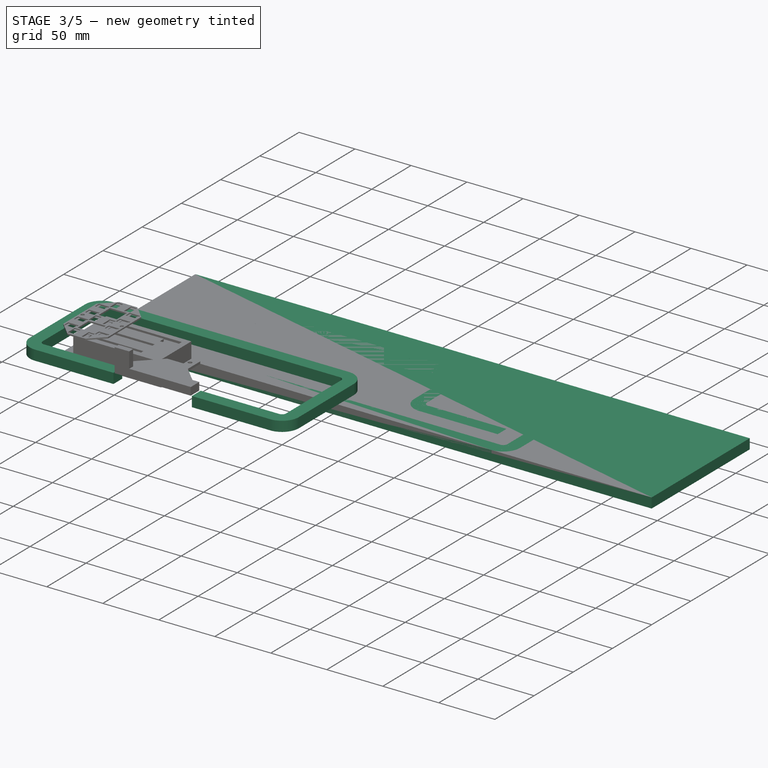
[diagram: stage 3 of 5 — iso view after this stage's code; geometry added in this stage tinted green]
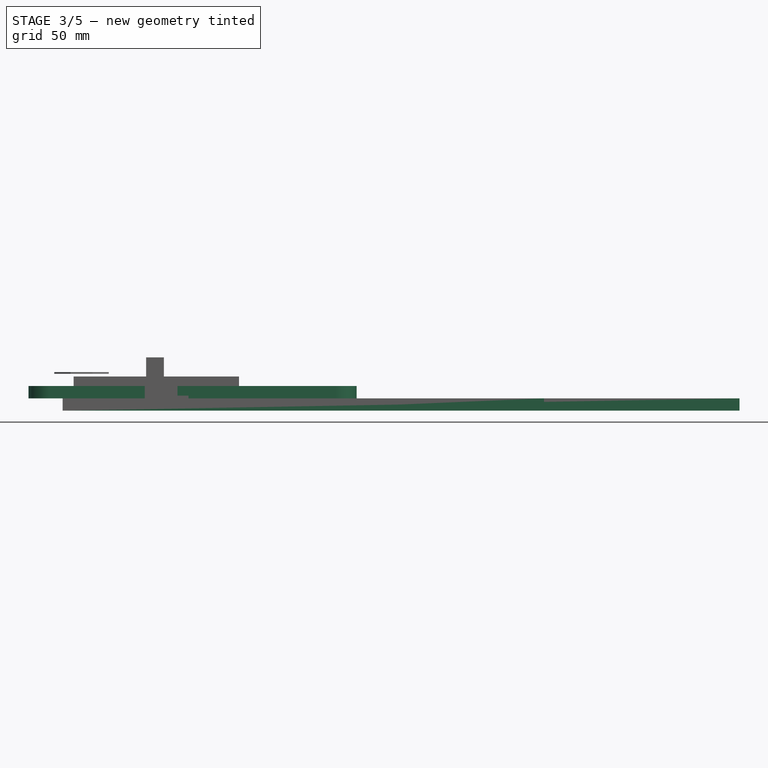
[diagram: stage 3 of 5 — front view after this stage's code; geometry added in this stage tinted green]
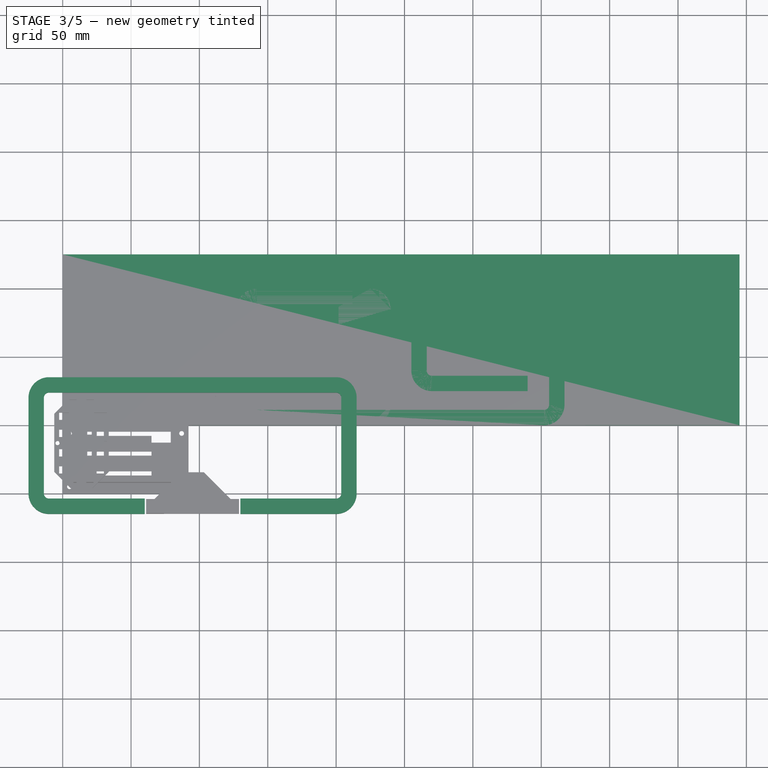
[diagram: stage 3 of 5 — top view after this stage's code; geometry added in this stage tinted green]
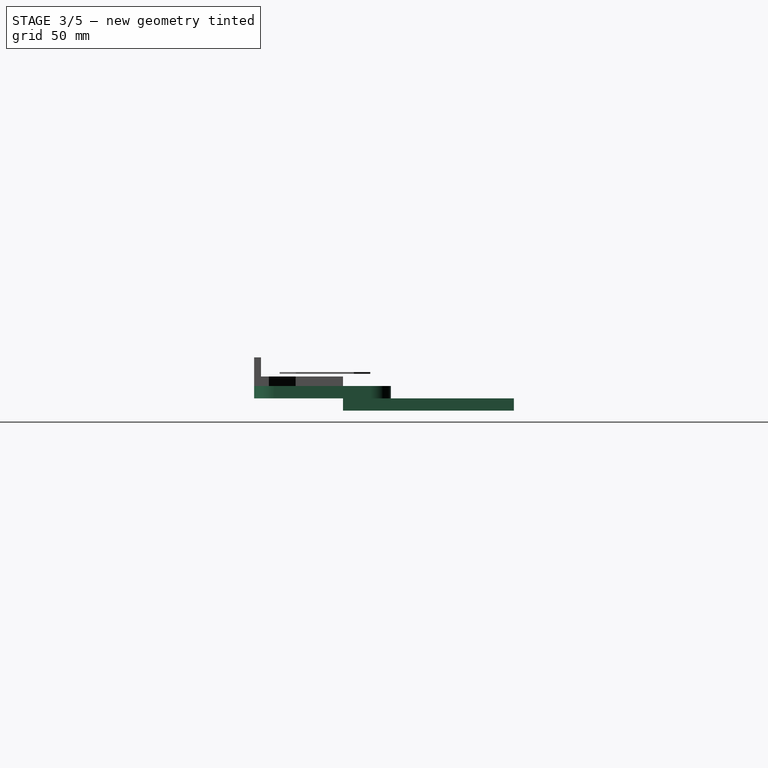
[diagram: stage 3 of 5 — right view after this stage's code; geometry added in this stage tinted green]
FEATURE [PartDesign::Body] Body008  label="3DP dot back panel"
  Group = -> [ShapeBinder001,Sketch013,Pad008]
  Origin = -> Origin008
  Placement = pos=(0,0,5) rot=(0,0,1;0rad)
  Tip = -> Pad008
FEATURE [Path::FeaturePython] T1__4mm  label="T2: 4mm"  # Path/CAM operation (typed FeaturePython)
  HorizFeed = 6.66667
  HorizRapid = 0
  SpindleDir = 0
  SpindleSpeed = 0
  ToolNumber = 2
  VertFeed = 6.66667
  VertRapid = 0
  expr: HorizRapid = SetupSheet.HorizRapid
  expr: VertRapid = SetupSheet.VertRapid
FEATURE [Path::FeaturePython] Adaptive  # Path/CAM operation (typed FeaturePython)
  Active = true
  Base = -> [Clone]
  ClearanceHeight = 5
  FinalDepth = -8
  FinishDepth = 0
  ForceInsideOut = false
  HelixAngle = 5
  HelixDiameterLimit = 0
  KeepToolDownRatio = 3
  LiftDistance = 0
  OpFinalDepth = -4
  OpStartDepth = 0
  OpStockZMax = 0
  OpStockZMin = -9
  OpToolDiameter = 4
  OperationType = 0
  SafeHeight = 3
  Side = 1
  StartDepth = 0
  StepDown = 8
  StepOver = 20
  StockToLeave = 0
  StopProcessing = false
  Stopped = false
  Tolerance = 0.1
  ToolController = -> T1__4mm
  expr: ClearanceHeight = OpStockZMax + SetupSheet.ClearanceHeightOffset
  expr: SafeHeight = OpStockZMax + SetupSheet.SafeHeightOffset
  expr: StepDown = 8
  expr: FinalDepth = -8
  expr: StartDepth = OpStartDepth
FEATURE [Path::FeaturePython] Contour  # Path/CAM operation (typed FeaturePython)
  Active = true
  AreaParams:
    Tolerance = 1e-07
    FitArcs = True
    Simplify = False
    CleanDistance = 0.0
    Accuracy = 0.01
    Unit = 1.0
    MinArcPoints = 4
    MaxArcPoints = 100
    ClipperScale = 10000000.0
    Fill = 0
    Coplanar = 2
    Reorient = True
    Outline = False
    Explode = False
    OpenMode = 0
    Deflection = 0.01
    SubjectFill = 0
    ClipFill = 0
    Offset = 2.0
    ExtraPass = 0
    Stepover = 0.0
    LastStepover = 0.0
    JoinType = 0
    EndType = 0
    MiterLimit = 2.0
    RoundPrecision = 0.0
    PocketMode = 0
    ToolRadius = 1.0
    PocketExtraOffset = 0.0
    PocketStepover = 0.0
    PocketLastStepover = 0.0
    FromCenter = False
    Angle = 45.0
    AngleShift = 0.0
    Shift = 0.0
    Thicken = False
    SectionCount = -1
    Stepdown = 1.0
    SectionOffset = 0.0
    SectionTolerance = 1e-06
    SectionMode = 2
    Project = False
  ClearanceHeight = 5
  Direction = 0
  FinalDepth = -9
  JoinType = 0
  MiterLimit = 0.1
  OffsetExtra = 0
  OpFinalDepth = -9
  OpStartDepth = 0
  OpStockZMax = 0
  OpStockZMin = -9
  OpToolDiameter = 4
  PathParams = {'orientation': 1, 'feedrate': 6.666666666666667, 'feedrate_v': 6.666666666666667, 'verbose': True, 'resume_height': 3.0, 'retraction': 5.0, 'return_end': True, 'preamble': False}
  SafeHeight = 3
  Side = 0
  StartDepth = 0
  StartPoint = (0,0,0)
  StepDown = 3
  ToolController = -> T1__4mm
  UseComp = true
  UseStartPoint = false
  expr: ClearanceHeight = OpStockZMax + SetupSheet.ClearanceHeightOffset
  expr: SafeHeight = OpStockZMax + SetupSheet.SafeHeightOffset
  expr: StepDown = 3
  expr: FinalDepth = -9
  expr: StartDepth = OpStartDepth
FEATURE [Path::FeaturePython] TagDressup  # Path/CAM operation (typed FeaturePython)
  Angle = 45
  Base = -> Contour
  Disabled = [0,1,2,3]
  Height = 2.5
  Positions = (4) [(172.58,-2.99857,0),(67.5268,-2.99952,0),(67.4197,102.999,0),(172.473,103,0)]
  Radius = 0
  SegmentationFactor = 50
  Width = 15
FEATURE [Path::FeaturePython] Profile_Edges  # Path/CAM operation (typed FeaturePython)
  Active = true
  AreaParams:
    Tolerance = 1e-07
    FitArcs = True
    Simplify = False
    CleanDistance = 0.0
    Accuracy = 0.01
    Unit = 1.0
    MinArcPoints = 4
    MaxArcPoints = 100
    ClipperScale = 10000000.0
    Fill = 0
    Coplanar = 0
    Reorient = True
    Outline = False
    Explode = False
    OpenMode = 0
    Deflection = 0.01
    SubjectFill = 0
    ClipFill = 0
    Offset = -2.0
    ExtraPass = 0
    Stepover = 0.0
    LastStepover = 0.0
    JoinType = 0
    EndType = 0
    MiterLimit = 2.0
    RoundPrecision = 0.0
    PocketMode = 0
    ToolRadius = 1.0
    PocketExtraOffset = 0.0
    PocketStepover = 0.0
    PocketLastStepover = 0.0
    FromCenter = False
    Angle = 45.0
    AngleShift = 0.0
    Shift = 0.0
    Thicken = False
    SectionCount = -1
    Stepdown = 1.0
    SectionOffset = 0.0
    SectionTolerance = 1e-06
    SectionMode = 2
    Project = False
  Base = -> [Clone]
  ClearanceHeight = 5
  Direction = 0
  FinalDepth = -8
  JoinType = 0
  MiterLimit = 0.1
  OffsetExtra = 0
  OpFinalDepth = 0
  OpStartDepth = 8
  OpStockZMax = 0
  OpStockZMin = -9
  OpToolDiameter = 4
  PathParams = {'orientation': 1, 'feedrate': 6.666666666666667, 'feedrate_v': 6.666666666666667, 'verbose': True, 'resume_height': 3.0, 'retraction': 5.0, 'return_end': True, 'preamble': False}
  SafeHeight = 3
  Side = 1
  StartDepth = 8
  StartPoint = (0,0,0)
  StepDown = 8
  ToolController = -> T1__4mm
  UseComp = true
  UseStartPoint = false
  expr: ClearanceHeight = OpStockZMax + SetupSheet.ClearanceHeightOffset
  expr: SafeHeight = OpStockZMax + SetupSheet.SafeHeightOffset
  expr: StepDown = 8
  expr: FinalDepth = -8
  expr: StartDepth = OpStartDepth
FEATURE [Path::FeatureCompoundPython] Operations  # Path/CAM operation (typed FeaturePython)
  Group = -> [Adaptive,TagDressup,Profile_Edges]
  UsePlacements = false
FEATURE [Path::FeaturePython] Job  # Path/CAM operation (typed FeaturePython)
  GeometryTolerance = 0.01
  Model = -> Model
  Operations = -> Operations
  PostProcessor = 4
  PostProcessorOutputFile = <userpath>/Dropbox/Electronica/Project/Plywood 7 Segment Clock/Front.ngc
  SetupSheet = -> SetupSheet
  Stock = -> Stock
  ToolController = -> [T2__6mm,T1__3mm,T1__4mm]
FEATURE [Sketcher::SketchObject] Sketch014
  ExternalGeometry = -> [Pad004]
  MapMode = 5
  Placement = pos=(0,0,9) rot=(0,0,1;0rad)
  Support = -> [Pad004]
  sketch-geometry (16):
    g0: LineSegment StartX=-10 StartY=35 StartZ=0 EndX=200 EndY=35 EndZ=0
    g1: LineSegment StartX=215 StartY=20 StartZ=0 EndX=215 EndY=-50 EndZ=0
    g2: LineSegment StartX=200 StartY=-65 StartZ=0 EndX=-10 EndY=-65 EndZ=0
    g3: LineSegment StartX=-25 StartY=-50 StartZ=0 EndX=-25 EndY=20 EndZ=0
    g4: ArcOfCircle CenterX=-10 CenterY=-50 CenterZ=0 NormalX=0 NormalY=0 NormalZ=1 AngleXU=0 Radius=15 StartAngle=3.14159 EndAngle=4.71239
    g5: ArcOfCircle CenterX=-10 CenterY=20 CenterZ=0 NormalX=0 NormalY=0 NormalZ=1 AngleXU=0 Radius=15 StartAngle=1.5708 EndAngle=3.14159
    g6: ArcOfCircle CenterX=200 CenterY=20 CenterZ=0 NormalX=0 NormalY=0 NormalZ=1 AngleXU=0 Radius=15 StartAngle=0 EndAngle=1.5708
    g7: ArcOfCircle CenterX=200 CenterY=-50 CenterZ=0 NormalX=0 NormalY=0 NormalZ=1 AngleXU=0 Radius=15 StartAngle=4.71239 EndAngle=6.28319
    g8: LineSegment StartX=-10 StartY=23.7655 StartZ=0 EndX=200 EndY=23.7655 EndZ=0
    g9: LineSegment StartX=-10 StartY=-53.7655 StartZ=0 EndX=200 EndY=-53.7655 EndZ=0
    g10: LineSegment StartX=-13.7655 StartY=20 StartZ=0 EndX=-13.7655 EndY=-50 EndZ=0
    g11: ArcOfCircle CenterX=-10 CenterY=-50 CenterZ=0 NormalX=0 NormalY=0 NormalZ=1 AngleXU=0 Radius=3.76555 StartAngle=3.14159 EndAngle=4.71239
    g12: ArcOfCircle CenterX=-10 CenterY=20 CenterZ=0 NormalX=0 NormalY=0 NormalZ=1 AngleXU=0 Radius=3.76555 StartAngle=1.5708 EndAngle=3.14159
    g13: LineSegment StartX=203.766 StartY=20 StartZ=0 EndX=203.766 EndY=-50 EndZ=0
    g14: ArcOfCircle CenterX=200 CenterY=-50 CenterZ=0 NormalX=0 NormalY=0 NormalZ=1 AngleXU=0 Radius=3.76555 StartAngle=4.71239 EndAngle=6.28319
    g15: ArcOfCircle CenterX=200 CenterY=20 CenterZ=0 NormalX=0 NormalY=0 NormalZ=1 AngleXU=0 Radius=3.76555 StartAngle=-9e-16 EndAngle=1.5708
  constraints (39):
    c: Tangent(g3,g4) = 1.5708
    c: Tangent(g2,g4) = 1.5708
    c: PointOnObject(g3,g-4)
    c: PointOnObject(g2,g-5)
    c: Distance(g2,g4) = 15
    c: Tangent(g3,g5) = 1.5708
    c: Tangent(g0,g5) = 1.5708
    c: PointOnObject(g3,g-4)
    c: PointOnObject(g0,g-3)
    c: DistanceY(g5,g0) = 15
    c: Tangent(g0,g6) = 1.5708
    c: Tangent(g1,g6) = 1.5708
    c: Tangent(g2,g7) = 1.5708
    c: Tangent(g1,g7) = 1.5708
    c: PointOnObject(g0,g-3)
    c: PointOnObject(g1,g-6)
    c: PointOnObject(g1,g-6)
    c: PointOnObject(g2,g-5)
    c: DistanceY(g6,g0) = 15
    c: DistanceY(g2,g7) = 15
    c: Horizontal(g8)
    c: Vertical(g0,g8)
    c: Vertical(g0,g8)
    c: Horizontal(g9)
    c: Vertical(g2,g9)
    c: Vertical(g2,g9)
    c: Vertical(g10)
    c: Horizontal(g3,g10)
    c: Horizontal(g3,g10)
    c: Tangent(g9,g11) = -1.5708
    c: Tangent(g10,g11) = -1.5708
    c: Tangent(g10,g12) = -1.5708
    c: Tangent(g8,g12) = 1.5708
    c: Vertical(g13)
    c: Horizontal(g1,g13)
    c: Tangent(g9,g14) = -1.5708
    c: Tangent(g13,g14) = 1.5708
    c: Tangent(g8,g15) = 1.5708
    c: Tangent(g13,g15) = 1.5708
FEATURE [PartDesign::Body] Body004  label="Front panel"
  Group = -> [Sketch008,Pad004,Sketch009,Sketch011,Pocket002,Sketch014]
  Origin = -> Origin004
  Placement = pos=(0,0,20) rot=(0,0,1;0rad)
  Tip = -> Pocket002
FEATURE [App::DocumentObjectGroup] Group002  label="Front"
  Group = -> [Body004]
FEATURE [Sketcher::SketchObject] Sketch015
  ExternalGeometry = -> [Pad004]
  MapMode = 5
  Placement = pos=(0,0,9) rot=(0,0,1;0rad)
  Support = -> [Pad004]
  sketch-geometry (16):
    g0: LineSegment StartX=-10 StartY=35 StartZ=0 EndX=200 EndY=35 EndZ=0
    g1: LineSegment StartX=215 StartY=20 StartZ=0 EndX=215 EndY=-50 EndZ=0
    g2: LineSegment StartX=200 StartY=-65 StartZ=0 EndX=-10 EndY=-65 EndZ=0
    g3: LineSegment StartX=-25 StartY=-50 StartZ=0 EndX=-25 EndY=20 EndZ=0
    g4: ArcOfCircle CenterX=-10 CenterY=-50 CenterZ=0 NormalX=0 NormalY=0 NormalZ=1 AngleXU=0 Radius=15 StartAngle=3.14159 EndAngle=4.71239
    g5: ArcOfCircle CenterX=-10 CenterY=20 CenterZ=0 NormalX=0 NormalY=0 NormalZ=1 AngleXU=0 Radius=15 StartAngle=1.5708 EndAngle=3.14159
    g6: ArcOfCircle CenterX=200 CenterY=20 CenterZ=0 NormalX=0 NormalY=0 NormalZ=1 AngleXU=0 Radius=15 StartAngle=0 EndAngle=1.5708
    g7: ArcOfCircle CenterX=200 CenterY=-50 CenterZ=0 NormalX=0 NormalY=0 NormalZ=1 AngleXU=0 Radius=15 StartAngle=4.71239 EndAngle=6.28319
    g8: LineSegment StartX=-10 StartY=23.7655 StartZ=0 EndX=200 EndY=23.7655 EndZ=0
    g9: LineSegment StartX=-10 StartY=-53.7655 StartZ=0 EndX=200 EndY=-53.7655 EndZ=0
    g10: LineSegment StartX=-13.7655 StartY=20 StartZ=0 EndX=-13.7655 EndY=-50 EndZ=0
    g11: ArcOfCircle CenterX=-10 CenterY=-50 CenterZ=0 NormalX=0 NormalY=0 NormalZ=1 AngleXU=0 Radius=3.76555 StartAngle=3.14159 EndAngle=4.71239
    g12: ArcOfCircle CenterX=-10 CenterY=20 CenterZ=0 NormalX=0 NormalY=0 NormalZ=1 AngleXU=0 Radius=3.76555 StartAngle=1.5708 EndAngle=3.14159
    g13: LineSegment StartX=203.766 StartY=20 StartZ=0 EndX=203.766 EndY=-50 EndZ=0
    g14: ArcOfCircle CenterX=200 CenterY=-50 CenterZ=0 NormalX=0 NormalY=0 NormalZ=1 AngleXU=0 Radius=3.76555 StartAngle=4.71239 EndAngle=6.28319
    g15: ArcOfCircle CenterX=200 CenterY=20 CenterZ=0 NormalX=0 NormalY=0 NormalZ=1 AngleXU=0 Radius=3.76555 StartAngle=-9e-16 EndAngle=1.5708
  constraints (39):
    c: Tangent(g3,g4) = 1.5708
    c: Tangent(g2,g4) = 1.5708
    c: PointOnObject(g3,g-4)
    c: PointOnObject(g2,g-5)
    c: Distance(g2,g4) = 15
    c: Tangent(g3,g5) = 1.5708
    c: Tangent(g0,g5) = 1.5708
    c: PointOnObject(g3,g-4)
    c: PointOnObject(g0,g-3)
    c: DistanceY(g5,g0) = 15
    c: Tangent(g0,g6) = 1.5708
    c: Tangent(g1,g6) = 1.5708
    c: Tangent(g2,g7) = 1.5708
    c: Tangent(g1,g7) = 1.5708
    c: PointOnObject(g0,g-3)
    c: PointOnObject(g1,g-6)
    c: PointOnObject(g1,g-6)
    c: PointOnObject(g2,g-5)
    c: DistanceY(g6,g0) = 15
    c: DistanceY(g2,g7) = 15
    c: Horizontal(g8)
    c: Vertical(g0,g8)
    c: Vertical(g0,g8)
    c: Horizontal(g9)
    c: Vertical(g2,g9)
    c: Vertical(g2,g9)
    c: Vertical(g10)
    c: Horizontal(g3,g10)
    c: Horizontal(g3,g10)
    c: Tangent(g9,g11) = -1.5708
    c: Tangent(g10,g11) = -1.5708
    c: Tangent(g10,g12) = -1.5708
    c: Tangent(g8,g12) = 1.5708
    c: Vertical(g13)
    c: Horizontal(g1,g13)
    c: Tangent(g9,g14) = -1.5708
    c: Tangent(g13,g14) = 1.5708
    c: Tangent(g8,g15) = 1.5708
    c: Tangent(g13,g15) = 1.5708
FEATURE [Sketcher::SketchObject] Sketch016
  ExternalGeometry = -> [Sketch015]
  MapMode = 5
  Support = -> [XY_Plane009]
  sketch-geometry (16):
    g0: LineSegment StartX=-10 StartY=35 StartZ=0 EndX=200 EndY=35 EndZ=0
    g1: LineSegment StartX=200 StartY=23.7655 StartZ=0 EndX=-10 EndY=23.7655 EndZ=0
    g2: LineSegment StartX=-10 StartY=-53.7655 StartZ=0 EndX=200 EndY=-53.7655 EndZ=0
    g3: LineSegment StartX=203.766 StartY=-50 StartZ=0 EndX=203.766 EndY=20 EndZ=0
    g4: LineSegment StartX=-13.7655 StartY=20 StartZ=0 EndX=-13.7655 EndY=-50 EndZ=0
    g5: LineSegment StartX=-25 StartY=20 StartZ=0 EndX=-25 EndY=-50 EndZ=0
    g6: LineSegment StartX=215 StartY=20 StartZ=0 EndX=215 EndY=-50 EndZ=0
    g7: LineSegment StartX=200 StartY=-65 StartZ=0 EndX=-10 EndY=-65 EndZ=0
    g8: ArcOfCircle CenterX=-10 CenterY=20 CenterZ=0 NormalX=0 NormalY=0 NormalZ=1 AngleXU=0 Radius=15 StartAngle=1.5708 EndAngle=3.14159
    g9: ArcOfCircle CenterX=-10 CenterY=-50 CenterZ=0 NormalX=0 NormalY=0 NormalZ=1 AngleXU=0 Radius=15 StartAngle=3.14159 EndAngle=4.71239
    g10: ArcOfCircle CenterX=200 CenterY=-50 CenterZ=0 NormalX=0 NormalY=0 NormalZ=1 AngleXU=0 Radius=15 StartAngle=4.71239 EndAngle=6.28319
    g11: ArcOfCircle CenterX=200 CenterY=20 CenterZ=0 NormalX=0 NormalY=0 NormalZ=1 AngleXU=0 Radius=15 StartAngle=0 EndAngle=1.5708
    g12: ArcOfCircle CenterX=200 CenterY=20 CenterZ=0 NormalX=0 NormalY=0 NormalZ=1 AngleXU=0 Radius=3.76555 StartAngle=2e-16 EndAngle=1.5708
    g13: ArcOfCircle CenterX=200 CenterY=-50 CenterZ=0 NormalX=0 NormalY=0 NormalZ=1 AngleXU=0 Radius=3.76555 StartAngle=4.71239 EndAngle=6.28319
    g14: ArcOfCircle CenterX=-10 CenterY=-50 CenterZ=0 NormalX=0 NormalY=0 NormalZ=1 AngleXU=0 Radius=3.76555 StartAngle=3.14159 EndAngle=4.71239
    g15: ArcOfCircle CenterX=-10 CenterY=20 CenterZ=0 NormalX=0 NormalY=0 NormalZ=1 AngleXU=0 Radius=3.76555 StartAngle=1.5708 EndAngle=3.14159
  constraints (34):
    c: Horizontal(g0)
    c: Tangent(g0,g8) = 1.5708
    c: Tangent(g5,g8) = -1.5708
    c: Tangent(g5,g9) = -1.5708
    c: Tangent(g7,g9) = 1.5708
    c: Tangent(g7,g10) = 1.5708
    c: Tangent(g6,g10) = 1.5708
    c: Tangent(g6,g11) = 1.5708
    c: Tangent(g0,g11) = 1.5708
    c: Tangent(g1,g12) = -1.5708
    c: Tangent(g3,g12) = -1.5708
    c: Tangent(g3,g13) = -1.5708
    c: Tangent(g2,g13) = -1.5708
    c: Tangent(g2,g14) = -1.5708
    c: Tangent(g4,g14) = -1.5708
    c: Tangent(g1,g15) = -1.5708
    c: Tangent(g4,g15) = -1.5708
    c: Vertical(g5)
    c: Vertical(g3)
    c: Vertical(g6)
    c: Radius(g8) = 15
    c: Radius(g10) = 15
    c: Radius(g11) = 15
    c: Coincident(g-4,g0)
    c: Coincident(g-7,g7)
    c: Coincident(g-8,g7)
    c: Radius(g-14) = 3.76555
    c: Coincident(g-14,g4)
    c: Coincident(g-15,g2)
    c: Coincident(g-13,g4)
    c: Coincident(g-12,g1)
    c: Coincident(g-18,g1)
    c: Coincident(g-18,g3)
    c: Coincident(g-17,g3)
FEATURE [PartDesign::Pad] Pad009
  Length = 9
  Length2 = 100
  Profile = -> Sketch016
  Type = 0
FEATURE [Sketcher::SketchObject] Sketch017
  ExternalGeometry = -> [Pad009]
  MapMode = 5
  Placement = pos=(0,0,9) rot=(0,0,1;0rad)
  Support = -> [Pad009]
  sketch-geometry (6):
    g0: LineSegment [constr] StartX=95 StartY=-53.7655 StartZ=0 EndX=95 EndY=-65 EndZ=0
    g1: LineSegment StartX=95 StartY=-53.7655 StartZ=0 EndX=130 EndY=-53.7655 EndZ=0
    g2: LineSegment StartX=95 StartY=-53.7655 StartZ=0 EndX=60 EndY=-53.7655 EndZ=0
    g3: LineSegment StartX=60 StartY=-53.7655 StartZ=0 EndX=60 EndY=-65 EndZ=0
    g4: LineSegment StartX=130 StartY=-53.7655 StartZ=0 EndX=130 EndY=-65 EndZ=0
    g5: LineSegment StartX=60 StartY=-65 StartZ=0 EndX=130 EndY=-65 EndZ=0
  constraints (17):
    c: Vertical(g0)
    c: PointOnObject(g0,g-7)
    c: Symmetric(g-4,g-4,g0)
    c: DistanceX(g2,g2) = 35
    c: Horizontal(g2)
    c: Horizontal(g1)
    c: Coincident(g1,g2)
    c: Coincident(g0,g1)
    c: DistanceX(g1,g1) = 35
    c: Vertical(g3)
    c: Vertical(g4)
    c: Coincident(g1,g4)
    c: PointOnObject(g4,g-7)
    c: Horizontal(g5)
    c: Coincident(g3,g5)
    c: Coincident(g4,g5)
    c: Coincident(g2,g3)
FEATURE [PartDesign::Pocket] Pocket003
  BaseFeature = -> Pad009
  Length = 5
  Length2 = 100
  Profile = -> Sketch017
  Type = 1
FEATURE [PartDesign::Body] Body009  label="BackRing001"
  Group = -> [Sketch015,Sketch016,Pad009,Sketch017,Pocket003]
  Origin = -> Origin009
  Placement = pos=(0,0,-9) rot=(0,0,1;0rad)
  Tip = -> Pocket003
FEATURE [Sketcher::SketchObject] Sketch021
  MapMode = 5
  Placement = pos=(0,0,9) rot=(0,0,1;0rad)
  sketch-geometry (16):
    g0: LineSegment StartX=-10 StartY=35 StartZ=0 EndX=200 EndY=35 EndZ=0
    g1: LineSegment StartX=215 StartY=20 StartZ=0 EndX=215 EndY=-50 EndZ=0
    g2: LineSegment StartX=200 StartY=-65 StartZ=0 EndX=-10 EndY=-65 EndZ=0
    g3: LineSegment StartX=-25 StartY=-50 StartZ=0 EndX=-25 EndY=20 EndZ=0
    g4: ArcOfCircle CenterX=-10 CenterY=-50 CenterZ=0 NormalX=0 NormalY=0 NormalZ=1 AngleXU=0 Radius=15 StartAngle=3.14159 EndAngle=4.71239
    g5: ArcOfCircle CenterX=-10 CenterY=20 CenterZ=0 NormalX=0 NormalY=0 NormalZ=1 AngleXU=0 Radius=15 StartAngle=1.5708 EndAngle=3.14159
    g6: ArcOfCircle CenterX=200 CenterY=20 CenterZ=0 NormalX=0 NormalY=0 NormalZ=1 AngleXU=0 Radius=15 StartAngle=0 EndAngle=1.5708
    g7: ArcOfCircle CenterX=200 CenterY=-50 CenterZ=0 NormalX=0 NormalY=0 NormalZ=1 AngleXU=0 Radius=15 StartAngle=4.71239 EndAngle=6.28319
    g8: LineSegment StartX=-10 StartY=23.7655 StartZ=0 EndX=200 EndY=23.7655 EndZ=0
    g9: LineSegment StartX=-10 StartY=-53.7655 StartZ=0 EndX=200 EndY=-53.7655 EndZ=0
    g10: LineSegment StartX=-13.7655 StartY=20 StartZ=0 EndX=-13.7655 EndY=-50 EndZ=0
    g11: ArcOfCircle CenterX=-10 CenterY=-50 CenterZ=0 NormalX=0 NormalY=0 NormalZ=1 AngleXU=0 Radius=3.76555 StartAngle=3.14159 EndAngle=4.71239
    g12: ArcOfCircle CenterX=-10 CenterY=20 CenterZ=0 NormalX=0 NormalY=0 NormalZ=1 AngleXU=0 Radius=3.76555 StartAngle=1.5708 EndAngle=3.14159
    g13: LineSegment StartX=203.766 StartY=20 StartZ=0 EndX=203.766 EndY=-50 EndZ=0
    g14: ArcOfCircle CenterX=200 CenterY=-50 CenterZ=0 NormalX=0 NormalY=0 NormalZ=1 AngleXU=0 Radius=3.76555 StartAngle=4.71239 EndAngle=6.28319
    g15: ArcOfCircle CenterX=200 CenterY=20 CenterZ=0 NormalX=0 NormalY=0 NormalZ=1 AngleXU=0 Radius=3.76555 StartAngle=-9e-16 EndAngle=1.5708
  constraints (31):
    c: Tangent(g3,g4) = 1.5708
    c: Tangent(g2,g4) = 1.5708
    c: Distance(g2,g4) = 15
    c: Tangent(g3,g5) = 1.5708
    c: Tangent(g0,g5) = 1.5708
    c: DistanceY(g5,g0) = 15
    c: Tangent(g0,g6) = 1.5708
    c: Tangent(g1,g6) = 1.5708
    c: Tangent(g2,g7) = 1.5708
    c: Tangent(g1,g7) = 1.5708
    c: DistanceY(g6,g0) = 15
    c: DistanceY(g2,g7) = 15
    c: Horizontal(g8)
    c: Vertical(g0,g8)
    c: Vertical(g0,g8)
    c: Horizontal(g9)
    c: Vertical(g2,g9)
    c: Vertical(g2,g9)
    c: Vertical(g10)
    c: Horizontal(g3,g10)
    c: Horizontal(g3,g10)
    c: Tangent(g9,g11) = -1.5708
    c: Tangent(g10,g11) = -1.5708
    c: Tangent(g10,g12) = -1.5708
    c: Tangent(g8,g12) = 1.5708
    c: Vertical(g13)
    c: Horizontal(g1,g13)
    c: Tangent(g9,g14) = -1.5708
    c: Tangent(g13,g14) = 1.5708
    c: Tangent(g8,g15) = 1.5708
    c: Tangent(g13,g15) = 1.5708
FEATURE [Sketcher::SketchObject] Sketch018
  ExternalGeometry = -> [Sketch021]
  MapMode = 5
  Support = -> [XY_Plane010]
  sketch-geometry (16):
    g0: LineSegment StartX=-10 StartY=35 StartZ=0 EndX=200 EndY=35 EndZ=0
    g1: LineSegment StartX=200 StartY=23.7655 StartZ=0 EndX=-10 EndY=23.7655 EndZ=0
    g2: LineSegment StartX=-10 StartY=-53.7655 StartZ=0 EndX=200 EndY=-53.7655 EndZ=0
    g3: LineSegment StartX=203.766 StartY=-50 StartZ=0 EndX=203.766 EndY=20 EndZ=0
    g4: LineSegment StartX=-13.7655 StartY=20 StartZ=0 EndX=-13.7655 EndY=-50 EndZ=0
    g5: LineSegment StartX=-25 StartY=20 StartZ=0 EndX=-25 EndY=-50 EndZ=0
    g6: LineSegment StartX=215 StartY=20 StartZ=0 EndX=215 EndY=-50 EndZ=0
    g7: LineSegment StartX=200 StartY=-65 StartZ=0 EndX=-10 EndY=-65 EndZ=0
    g8: ArcOfCircle CenterX=-10 CenterY=20 CenterZ=0 NormalX=0 NormalY=0 NormalZ=1 AngleXU=0 Radius=15 StartAngle=1.5708 EndAngle=3.14159
    g9: ArcOfCircle CenterX=-10 CenterY=-50 CenterZ=0 NormalX=0 NormalY=0 NormalZ=1 AngleXU=0 Radius=15 StartAngle=3.14159 EndAngle=4.71239
    g10: ArcOfCircle CenterX=200 CenterY=-50 CenterZ=0 NormalX=0 NormalY=0 NormalZ=1 AngleXU=0 Radius=15 StartAngle=4.71239 EndAngle=6.28319
    g11: ArcOfCircle CenterX=200 CenterY=20 CenterZ=0 NormalX=0 NormalY=0 NormalZ=1 AngleXU=0 Radius=15 StartAngle=0 EndAngle=1.5708
    g12: ArcOfCircle CenterX=200 CenterY=20 CenterZ=0 NormalX=0 NormalY=0 NormalZ=1 AngleXU=0 Radius=3.76555 StartAngle=2e-16 EndAngle=1.5708
    g13: ArcOfCircle CenterX=200 CenterY=-50 CenterZ=0 NormalX=0 NormalY=0 NormalZ=1 AngleXU=0 Radius=3.76555 StartAngle=4.71239 EndAngle=6.28319
    g14: ArcOfCircle CenterX=-10 CenterY=-50 CenterZ=0 NormalX=0 NormalY=0 NormalZ=1 AngleXU=0 Radius=3.76555 StartAngle=3.14159 EndAngle=4.71239
    g15: ArcOfCircle CenterX=-10 CenterY=20 CenterZ=0 NormalX=0 NormalY=0 NormalZ=1 AngleXU=0 Radius=3.76555 StartAngle=1.5708 EndAngle=3.14159
  constraints (34):
    c: Horizontal(g0)
    c: Tangent(g0,g8) = 1.5708
    c: Tangent(g5,g8) = -1.5708
    c: Tangent(g5,g9) = -1.5708
    c: Tangent(g7,g9) = 1.5708
    c: Tangent(g7,g10) = 1.5708
    c: Tangent(g6,g10) = 1.5708
    c: Tangent(g6,g11) = 1.5708
    c: Tangent(g0,g11) = 1.5708
    c: Tangent(g1,g12) = -1.5708
    c: Tangent(g3,g12) = -1.5708
    c: Tangent(g3,g13) = -1.5708
    c: Tangent(g2,g13) = -1.5708
    c: Tangent(g2,g14) = -1.5708
    c: Tangent(g4,g14) = -1.5708
    c: Tangent(g1,g15) = -1.5708
    c: Tangent(g4,g15) = -1.5708
    c: Vertical(g5)
    c: Vertical(g3)
    c: Vertical(g6)
    c: Radius(g8) = 15
    c: Radius(g10) = 15
    c: Radius(g11) = 15
    c: Coincident(g-4,g0)
    c: Coincident(g-7,g7)
    c: Coincident(g-8,g7)
    c: Radius(g-14) = 3.76555
    c: Coincident(g-14,g4)
    c: Coincident(g-15,g2)
    c: Coincident(g-13,g4)
    c: Coincident(g-12,g1)
    c: Coincident(g-18,g1)
    c: Coincident(g-18,g3)
    c: Coincident(g-17,g3)
FEATURE [PartDesign::Pad] Pad011
  Length = 9
  Length2 = 100
  Profile = -> Sketch018
  Type = 0
FEATURE [Sketcher::SketchObject] Sketch019
  ExternalGeometry = -> [Pad011]
  MapMode = 5
  Placement = pos=(0,0,9) rot=(0,0,1;0rad)
  Support = -> [Pad011]
  sketch-geometry (6):
    g0: LineSegment [constr] StartX=95 StartY=-53.7655 StartZ=0 EndX=95 EndY=-65 EndZ=0
    g1: LineSegment StartX=95 StartY=-53.7655 StartZ=0 EndX=130 EndY=-53.7655 EndZ=0
    g2: LineSegment StartX=95 StartY=-53.7655 StartZ=0 EndX=60 EndY=-53.7655 EndZ=0
    g3: LineSegment StartX=60 StartY=-53.7655 StartZ=0 EndX=60 EndY=-65 EndZ=0
    g4: LineSegment StartX=130 StartY=-53.7655 StartZ=0 EndX=130 EndY=-65 EndZ=0
    g5: LineSegment StartX=60 StartY=-65 StartZ=0 EndX=130 EndY=-65 EndZ=0
  constraints (17):
    c: Vertical(g0)
    c: PointOnObject(g0,g-7)
    c: Symmetric(g-4,g-4,g0)
    c: DistanceX(g2,g2) = 35
    c: Horizontal(g2)
    c: Horizontal(g1)
    c: Coincident(g1,g2)
    c: Coincident(g0,g1)
    c: DistanceX(g1,g1) = 35
    c: Vertical(g3)
    c: Vertical(g4)
    c: Coincident(g1,g4)
    c: PointOnObject(g4,g-7)
    c: Horizontal(g5)
    c: Coincident(g3,g5)
    c: Coincident(g4,g5)
    c: Coincident(g2,g3)
FEATURE [PartDesign::Pocket] Pocket004
  BaseFeature = -> Pad011
  Length = 5
  Length2 = 100
  Profile = -> Sketch019
  Type = 1
FEATURE [Part::FeaturePython] Clone002  label="Model-BackRing002"  # Draft clone (typed FeaturePython)
  AttacherType = Attacher::AttachEngine3D
  Fuse = false
  Objects = -> [Body010]
  PathResource = Model
  Placement = pos=(280,90,-9) rot=(0,0,1;0rad)
  Scale = (1,1,1)
FEATURE [Part::FeaturePython] Clone003  label="Model-BackRing003"  # Draft clone (typed FeaturePython)
  AttacherType = Attacher::AttachEngine3D
  Fuse = false
  Objects = -> [Body011]
  PathResource = Model
  Placement = pos=(342,35,-9) rot=(0,0,1;3.14159rad)
  Scale = (1,1,1)
FEATURE [App::DocumentObjectGroup] Model001
  Group = -> [Clone001,Clone002,Clone003]
FEATURE [Part::FeaturePython] Stock003  # WARN: FeaturePython — macro-defined, semantics opaque (R4)
  Height = 9
  Length = 495
  Placement = pos=(0,7.1e-15,-9) rot=(0,0,1;0rad)
  StockType = CreateBox
  Width = 125
FEATURE [Sketcher::SketchObject] Sketch026
  ExternalGeometry = -> [Pad013]
  MapMode = 5
  Placement = pos=(0,0,19.2) rot=(0,0,1;0rad)
  Support = -> [Pad013]
  expr: Constraints[279] = Spreadsheet.LEDsidecompWidth
  expr: Constraints[278] = Spreadsheet.LEDsidecompWidth
  expr: Constraints[277] = Spreadsheet.LEDsidecompWidth
  expr: Constraints[276] = Spreadsheet.LEDsidecompWidth
  expr: Constraints[265] = Spreadsheet.LEDsidecompWidth
  expr: Constraints[275] = Spreadsheet.LEDsidecompWidth
  expr: Constraints[274] = Spreadsheet.LEDsidecompWidth
  expr: Constraints[270] = Spreadsheet.LEDsidecompWidth
  expr: Constraints[267] = Spreadsheet.LEDsidecompWidth
  expr: Constraints[271] = Spreadsheet.LEDsidecompWidth
  expr: Constraints[264] = Spreadsheet.LEDsidecompWidth
  expr: Constraints[83] = Spreadsheet.LEDsidecompWidth
  expr: Constraints[111] = Spreadsheet.LEDsidecompWidth
  expr: Constraints[266] = Spreadsheet.LEDsidecompWidth
  expr: Constraints[82] = Spreadsheet.LEDsidecompWidth
  expr: Constraints[118] = Spreadsheet.LEDsidecompWidth
  expr: Constraints[272] = Spreadsheet.LEDsidecompWidth
  expr: Constraints[115] = Spreadsheet.LEDsidecompWidth
  expr: Constraints[114] = Spreadsheet.LEDsidecompWidth
  expr: Constraints[273] = Spreadsheet.LEDsidecompWidth
  expr: Constraints[119] = Spreadsheet.LEDsidecompWidth
  expr: Constraints[117] = Spreadsheet.LEDsidecompWidth
  expr: Constraints[112] = Spreadsheet.LEDsidecompWidth
  expr: Constraints[113] = Spreadsheet.LEDsidecompWidth
  expr: Constraints[268] = Spreadsheet.LEDsidecompWidth
  expr: Constraints[269] = Spreadsheet.LEDsidecompWidth
  expr: Constraints[81] = Spreadsheet.LEDsidecompWidth
  expr: Constraints[116] = Spreadsheet.LEDsidecompWidth
  sketch-geometry (112):
    g0: LineSegment StartX=24.8746 StartY=-17.895 StartZ=0 EndX=22.8746 EndY=-17.895 EndZ=0
    g1: LineSegment StartX=22.8746 StartY=-17.895 StartZ=0 EndX=22.8746 EndY=-23.145 EndZ=0
    g2: LineSegment StartX=22.8746 StartY=-23.145 StartZ=0 EndX=24.8746 EndY=-23.145 EndZ=0
    g3: LineSegment StartX=24.8746 StartY=-23.145 StartZ=0 EndX=24.8746 EndY=-17.895 EndZ=0
    g4: LineSegment StartX=30.1246 StartY=-17.895 StartZ=0 EndX=32.1246 EndY=-17.895 EndZ=0
    g5: LineSegment StartX=32.1246 StartY=-17.895 StartZ=0 EndX=32.1246 EndY=-23.145 EndZ=0
    g6: LineSegment StartX=32.1246 StartY=-23.145 StartZ=0 EndX=30.1246 EndY=-23.145 EndZ=0
    g7: LineSegment StartX=30.1246 StartY=-23.145 StartZ=0 EndX=30.1246 EndY=-17.895 EndZ=0
    g8: LineSegment StartX=24.875 StartY=-8.875 StartZ=0 EndX=22.875 EndY=-8.875 EndZ=0
    g9: LineSegment StartX=22.875 StartY=-8.875 StartZ=0 EndX=22.875 EndY=-3.625 EndZ=0
    g10: LineSegment StartX=22.875 StartY=-3.625 StartZ=0 EndX=24.875 EndY=-3.625 EndZ=0
    g11: LineSegment StartX=24.875 StartY=-3.625 StartZ=0 EndX=24.875 EndY=-8.875 EndZ=0
    g12: LineSegment StartX=17.3742 StartY=-37.535 StartZ=0 EndX=22.6242 EndY=-37.535 EndZ=0
    g13: LineSegment StartX=22.6242 StartY=-37.535 StartZ=0 EndX=22.6242 EndY=-35.535 EndZ=0
    g14: LineSegment StartX=22.6242 StartY=-35.535 StartZ=0 EndX=17.3742 EndY=-35.535 EndZ=0
    g15: LineSegment StartX=17.3742 StartY=-35.535 StartZ=0 EndX=17.3742 EndY=-37.535 EndZ=0
    g16: LineSegment StartX=17.3742 StartY=-42.785 StartZ=0 EndX=22.6242 EndY=-42.785 EndZ=0
    g17: LineSegment StartX=22.6242 StartY=-42.785 StartZ=0 EndX=22.6242 EndY=-44.785 EndZ=0
    g18: LineSegment StartX=22.6242 StartY=-44.785 StartZ=0 EndX=17.3742 EndY=-44.785 EndZ=0
    g19: LineSegment StartX=17.3742 StartY=-44.785 StartZ=0 EndX=17.3742 EndY=-42.785 EndZ=0
    g20: LineSegment StartX=24.875 StartY=3.625 StartZ=0 EndX=22.875 EndY=3.625 EndZ=0
    g21: LineSegment StartX=22.875 StartY=3.625 StartZ=0 EndX=22.875 EndY=8.875 EndZ=0
    g22: LineSegment StartX=22.875 StartY=8.875 StartZ=0 EndX=24.875 EndY=8.875 EndZ=0
    g23: LineSegment StartX=24.875 StartY=8.875 StartZ=0 EndX=24.875 EndY=3.625 EndZ=0
    g24: LineSegment StartX=30.125 StartY=3.625 StartZ=0 EndX=32.125 EndY=3.625 EndZ=0
    g25: LineSegment StartX=32.125 StartY=3.625 StartZ=0 EndX=32.125 EndY=8.875 EndZ=0
    g26: LineSegment StartX=32.125 StartY=8.875 StartZ=0 EndX=30.125 EndY=8.875 EndZ=0
    g27: LineSegment StartX=30.125 StartY=8.875 StartZ=0 EndX=30.125 EndY=3.625 EndZ=0
    g28: LineSegment StartX=2.625 StartY=-8.875 StartZ=0 EndX=4.625 EndY=-8.875 EndZ=0
    g29: LineSegment StartX=4.625 StartY=-8.875 StartZ=0 EndX=4.625 EndY=-3.625 EndZ=0
    g30: LineSegment StartX=4.625 StartY=-3.625 StartZ=0 EndX=2.625 EndY=-3.625 EndZ=0
    g31: LineSegment StartX=2.625 StartY=-3.625 StartZ=0 EndX=2.625 EndY=-8.875 EndZ=0
    g32: LineSegment StartX=-2.625 StartY=-8.875 StartZ=0 EndX=-4.625 EndY=-8.875 EndZ=0
    g33: LineSegment StartX=-4.625 StartY=-8.875 StartZ=0 EndX=-4.625 EndY=-3.625 EndZ=0
    g34: LineSegment StartX=-4.625 StartY=-3.625 StartZ=0 EndX=-2.625 EndY=-3.625 EndZ=0
    g35: LineSegment StartX=-2.625 StartY=-3.625 StartZ=0 EndX=-2.625 EndY=-8.875 EndZ=0
    g36: LineSegment StartX=4.87576 StartY=-37.535 StartZ=0 EndX=10.1258 EndY=-37.535 EndZ=0
    g37: LineSegment StartX=10.1258 StartY=-37.535 StartZ=0 EndX=10.1258 EndY=-35.535 EndZ=0
    g38: LineSegment StartX=10.1258 StartY=-35.535 StartZ=0 EndX=4.87576 EndY=-35.535 EndZ=0
    g39: LineSegment StartX=4.87576 StartY=-35.535 StartZ=0 EndX=4.87576 EndY=-37.535 EndZ=0
    g40: LineSegment StartX=4.87576 StartY=-42.785 StartZ=0 EndX=10.1258 EndY=-42.785 EndZ=0
    g41: LineSegment StartX=10.1258 StartY=-42.785 StartZ=0 EndX=10.1258 EndY=-44.785 EndZ=0
    g42: LineSegment StartX=10.1258 StartY=-44.785 StartZ=0 EndX=4.87576 EndY=-44.785 EndZ=0
    g43: LineSegment StartX=4.87576 StartY=-44.785 StartZ=0 EndX=4.87576 EndY=-42.785 EndZ=0
    g44: LineSegment StartX=30.125 StartY=-8.875 StartZ=0 EndX=32.125 EndY=-8.875 EndZ=0
    g45: LineSegment StartX=32.125 StartY=-8.875 StartZ=0 EndX=32.125 EndY=-3.625 EndZ=0
    g46: LineSegment StartX=32.125 StartY=-3.625 StartZ=0 EndX=30.125 EndY=-3.625 EndZ=0
    g47: LineSegment StartX=30.125 StartY=-3.625 StartZ=0 EndX=30.125 EndY=-8.875 EndZ=0
    g48: LineSegment StartX=4.87613 StartY=-16.01 StartZ=0 EndX=10.1261 EndY=-16.01 EndZ=0
    g49: LineSegment StartX=10.1261 StartY=-16.01 StartZ=0 EndX=10.1261 EndY=-18.01 EndZ=0
    g50: LineSegment StartX=10.1261 StartY=-18.01 StartZ=0 EndX=4.87613 EndY=-18.01 EndZ=0
    g51: LineSegment StartX=4.87613 StartY=-18.01 StartZ=0 EndX=4.87613 EndY=-16.01 EndZ=0
    g52: LineSegment StartX=4.87613 StartY=-10.76 StartZ=0 EndX=10.1261 EndY=-10.76 EndZ=0
    g53: LineSegment StartX=10.1261 StartY=-10.76 StartZ=0 EndX=10.1261 EndY=-8.76 EndZ=0
    g54: LineSegment StartX=10.1261 StartY=-8.76 StartZ=0 EndX=4.87613 EndY=-8.76 EndZ=0
    g55: LineSegment StartX=4.87613 StartY=-8.76 StartZ=0 EndX=4.87613 EndY=-10.76 EndZ=0
    g56: LineSegment StartX=22.6254 StartY=-10.76 StartZ=0 EndX=17.3754 EndY=-10.76 EndZ=0
    g57: LineSegment StartX=17.3754 StartY=-10.76 StartZ=0 EndX=17.3754 EndY=-8.76 EndZ=0
    g58: LineSegment StartX=17.3754 StartY=-8.76 StartZ=0 EndX=22.6254 EndY=-8.76 EndZ=0
    g59: LineSegment StartX=22.6254 StartY=-8.76 StartZ=0 EndX=22.6254 EndY=-10.76 EndZ=0
    g60: LineSegment StartX=22.6254 StartY=-16.01 StartZ=0 EndX=17.3754 EndY=-16.01 EndZ=0
    g61: LineSegment StartX=17.3754 StartY=-16.01 StartZ=0 EndX=17.3754 EndY=-18.01 EndZ=0
    g62: LineSegment StartX=17.3754 StartY=-18.01 StartZ=0 EndX=22.6254 EndY=-18.01 EndZ=0
    g63: LineSegment StartX=22.6254 StartY=-18.01 StartZ=0 EndX=22.6254 EndY=-16.01 EndZ=0
    g64: LineSegment StartX=4.87462 StartY=11.125 StartZ=0 EndX=10.1246 EndY=11.125 EndZ=0
    g65: LineSegment StartX=10.1246 StartY=11.125 StartZ=0 EndX=10.1246 EndY=9.125 EndZ=0
    g66: LineSegment StartX=10.1246 StartY=9.125 StartZ=0 EndX=4.87462 EndY=9.125 EndZ=0
    g67: LineSegment StartX=4.87462 StartY=9.125 StartZ=0 EndX=4.87462 EndY=11.125 EndZ=0
    g68: LineSegment StartX=4.87462 StartY=16.375 StartZ=0 EndX=10.1246 EndY=16.375 EndZ=0
    g69: LineSegment StartX=10.1246 StartY=16.375 StartZ=0 EndX=10.1246 EndY=18.375 EndZ=0
    g70: LineSegment StartX=10.1246 StartY=18.375 StartZ=0 EndX=4.87462 EndY=18.375 EndZ=0
    g71: LineSegment StartX=4.87462 StartY=18.375 StartZ=0 EndX=4.87462 EndY=16.375 EndZ=0
    g72: LineSegment StartX=22.6239 StartY=16.375 StartZ=0 EndX=17.3739 EndY=16.375 EndZ=0
    g73: LineSegment StartX=17.3739 StartY=16.375 StartZ=0 EndX=17.3739 EndY=18.375 EndZ=0
    g74: LineSegment StartX=17.3739 StartY=18.375 StartZ=0 EndX=22.6239 EndY=18.375 EndZ=0
    g75: LineSegment StartX=22.6239 StartY=18.375 StartZ=0 EndX=22.6239 EndY=16.375 EndZ=0
    g76: LineSegment StartX=22.6239 StartY=11.125 StartZ=0 EndX=17.3739 EndY=11.125 EndZ=0
    g77: LineSegment StartX=17.3739 StartY=11.125 StartZ=0 EndX=17.3739 EndY=9.125 EndZ=0
    g78: LineSegment StartX=17.3739 StartY=9.125 StartZ=0 EndX=22.6239 EndY=9.125 EndZ=0
    g79: LineSegment StartX=22.6239 StartY=9.125 StartZ=0 EndX=22.6239 EndY=11.125 EndZ=0
    g80: LineSegment StartX=2.625 StartY=8.875 StartZ=0 EndX=4.625 EndY=8.875 EndZ=0
    g81: LineSegment StartX=4.625 StartY=8.875 StartZ=0 EndX=4.625 EndY=3.625 EndZ=0
    g82: LineSegment StartX=4.625 StartY=3.625 StartZ=0 EndX=2.625 EndY=3.625 EndZ=0
    g83: LineSegment StartX=2.625 StartY=3.625 StartZ=0 EndX=2.625 EndY=8.875 EndZ=0
    g84: LineSegment StartX=-2.625 StartY=8.875 StartZ=0 EndX=-4.625 EndY=8.875 EndZ=0
    g85: LineSegment StartX=-4.625 StartY=8.875 StartZ=0 EndX=-4.625 EndY=3.625 EndZ=0
    g86: LineSegment StartX=-4.625 StartY=3.625 StartZ=0 EndX=-2.625 EndY=3.625 EndZ=0
    g87: LineSegment StartX=-2.625 StartY=3.625 StartZ=0 EndX=-2.625 EndY=8.875 EndZ=0
    g88: LineSegment StartX=-2.62538 StartY=-17.895 StartZ=0 EndX=-4.62538 EndY=-17.895 EndZ=0
    g89: LineSegment StartX=-4.62538 StartY=-17.895 StartZ=0 EndX=-4.62538 EndY=-23.145 EndZ=0
    g90: LineSegment StartX=-4.62538 StartY=-23.145 StartZ=0 EndX=-2.62538 EndY=-23.145 EndZ=0
    g91: LineSegment StartX=-2.62538 StartY=-23.145 StartZ=0 EndX=-2.62538 EndY=-17.895 EndZ=0
    g92: LineSegment StartX=2.62462 StartY=-17.895 StartZ=0 EndX=4.62462 EndY=-17.895 EndZ=0
    g93: LineSegment StartX=4.62462 StartY=-17.895 StartZ=0 EndX=4.62462 EndY=-23.145 EndZ=0
    g94: LineSegment StartX=4.62462 StartY=-23.145 StartZ=0 EndX=2.62462 EndY=-23.145 EndZ=0
    g95: LineSegment StartX=2.62462 StartY=-23.145 StartZ=0 EndX=2.62462 EndY=-17.895 EndZ=0
    g96: LineSegment StartX=2.62387 StartY=-35.645 StartZ=0 EndX=4.62387 EndY=-35.645 EndZ=0
    g97: LineSegment StartX=4.62387 StartY=-35.645 StartZ=0 EndX=4.62387 EndY=-30.395 EndZ=0
    g98: LineSegment StartX=4.62387 StartY=-30.395 StartZ=0 EndX=2.62387 EndY=-30.395 EndZ=0
    g99: LineSegment StartX=2.62387 StartY=-30.395 StartZ=0 EndX=2.62387 EndY=-35.645 EndZ=0
    g100: LineSegment StartX=-2.62613 StartY=-35.645 StartZ=0 EndX=-4.62613 EndY=-35.645 EndZ=0
    g101: LineSegment StartX=-4.62613 StartY=-35.645 StartZ=0 EndX=-4.62613 EndY=-30.395 EndZ=0
    g102: LineSegment StartX=-4.62613 StartY=-30.395 StartZ=0 EndX=-2.62613 EndY=-30.395 EndZ=0
    g103: LineSegment StartX=-2.62613 StartY=-30.395 StartZ=0 EndX=-2.62613 EndY=-35.645 EndZ=0
    g104: LineSegment StartX=24.8739 StartY=-35.645 StartZ=0 EndX=22.8739 EndY=-35.645 EndZ=0
    g105: LineSegment StartX=22.8739 StartY=-35.645 StartZ=0 EndX=22.8739 EndY=-30.395 EndZ=0
    g106: LineSegment StartX=22.8739 StartY=-30.395 StartZ=0 EndX=24.8739 EndY=-30.395 EndZ=0
    g107: LineSegment StartX=24.8739 StartY=-30.395 StartZ=0 EndX=24.8739 EndY=-35.645 EndZ=0
    g108: LineSegment StartX=30.1239 StartY=-35.645 StartZ=0 EndX=32.1239 EndY=-35.645 EndZ=0
    g109: LineSegment StartX=32.1239 StartY=-35.645 StartZ=0 EndX=32.1239 EndY=-30.395 EndZ=0
    g110: LineSegment StartX=32.1239 StartY=-30.395 StartZ=0 EndX=30.1239 EndY=-30.395 EndZ=0
    g111: LineSegment StartX=30.1239 StartY=-30.395 StartZ=0 EndX=30.1239 EndY=-35.645 EndZ=0
  constraints (280):
    c: Coincident(g0,g1)
    c: Coincident(g1,g2)
    c: Coincident(g2,g3)
    c: Coincident(g3,g0)
    c: Horizontal(g0)
    c: Horizontal(g2)
    c: Vertical(g1)
    c: Coincident(g0,g-3)
    c: Coincident(g4,g5)
    c: Coincident(g5,g6)
    c: Coincident(g6,g7)
    c: Coincident(g7,g4)
    c: Horizontal(g4)
    c: Horizontal(g6)
    c: Vertical(g5)
    c: Coincident(g4,g-4)
    c: Coincident(g8,g9)
    c: Coincident(g9,g10)
    c: Coincident(g10,g11)
    c: Coincident(g11,g8)
    c: Horizontal(g8)
    c: Horizontal(g10)
    c: Vertical(g9)
    c: Coincident(g8,g-5)
    c: Coincident(g12,g13)
    c: Coincident(g13,g14)
    c: Coincident(g14,g15)
    c: Coincident(g15,g12)
    c: Horizontal(g14)
    c: Vertical(g13)
    c: Vertical(g15)
    c: Coincident(g12,g-10)
    c: Coincident(g16,g17)
    c: Coincident(g17,g18)
    c: Coincident(g18,g19)
    c: Coincident(g19,g16)
    c: Horizontal(g18)
    c: Vertical(g17)
    c: Vertical(g19)
    c: Coincident(g16,g-11)
    c: Coincident(g20,g21)
    c: Coincident(g21,g22)
    c: Coincident(g22,g23)
    c: Coincident(g23,g20)
    c: Horizontal(g20)
    c: Horizontal(g22)
    c: Vertical(g21)
    c: Coincident(g20,g-8)
    c: Coincident(g24,g25)
    c: Coincident(g25,g26)
    c: Coincident(g26,g27)
    c: Coincident(g27,g24)
    c: Horizontal(g24)
    c: Horizontal(g26)
    c: Vertical(g25)
    c: Coincident(g24,g-9)
    c: Coincident(g28,g29)
    c: Coincident(g29,g30)
    c: Coincident(g30,g31)
    c: Coincident(g31,g28)
    c: Horizontal(g28)
    c: Horizontal(g30)
    c: Vertical(g29)
    c: Coincident(g28,g-7)
    c: Coincident(g32,g33)
    c: Coincident(g33,g34)
    c: Coincident(g34,g35)
    c: Coincident(g35,g32)
    c: Horizontal(g32)
    c: Horizontal(g34)
    c: Vertical(g33)
    c: Coincident(g32,g-6)
    c: Coincident(g-9,g26)
    c: Coincident(g-8,g22)
    c: Coincident(g-10,g12)
    c: Coincident(g-11,g16)
    c: Coincident(g-6,g34)
    c: Coincident(g-7,g30)
    c: Coincident(g-5,g10)
    c: Coincident(g-3,g2)
    c: Coincident(g-4,g6)
    c: DistanceX(g4,g4) = 2
    c: DistanceX(g0,g0) = 2
    c: DistanceX(g10,g10) = 2
    c: Coincident(g36,g37)
    c: Coincident(g37,g38)
    c: Coincident(g38,g39)
    c: Coincident(g39,g36)
    c: Horizontal(g38)
    c: Vertical(g37)
    c: Vertical(g39)
    c: Coincident(g36,g-12)
    c: Coincident(g40,g41)
    c: Coincident(g41,g42)
    c: Coincident(g42,g43)
    c: Coincident(g43,g40)
    c: Horizontal(g42)
    c: Vertical(g41)
    c: Vertical(g43)
    c: Coincident(g40,g-13)
    c: Coincident(g44,g45)
    c: Coincident(g45,g46)
    c: Coincident(g46,g47)
    c: Coincident(g47,g44)
    c: Horizontal(g44)
    c: Horizontal(g46)
    c: Vertical(g45)
    c: Coincident(g44,g-14)
    c: Coincident(g-14,g46)
    c: Coincident(g-12,g36)
    c: Coincident(g-13,g40)
    c: DistanceY(g37,g37) = 2
    c: DistanceY(g41,g41) = 2
    c: DistanceX(g46,g46) = 2
    c: DistanceX(g34,g34) = 2
    c: DistanceX(g30,g30) = 2
    c: DistanceX(g22,g22) = 2
    c: DistanceX(g26,g26) = 2
    c: DistanceY(g15,g15) = 2
    c: DistanceY(g19,g19) = 2
    c: Coincident(g48,g49)
    c: Coincident(g49,g50)
    c: Coincident(g50,g51)
    c: Coincident(g51,g48)
    c: Horizontal(g50)
    c: Vertical(g49)
    c: Vertical(g51)
    c: Coincident(g48,g-22)
    c: Coincident(g52,g53)
    c: Coincident(g53,g54)
    c: Coincident(g54,g55)
    c: Coincident(g55,g52)
    c: Horizontal(g54)
    c: Vertical(g53)
    c: Vertical(g55)
    c: Coincident(g52,g-21)
    c: Coincident(g56,g57)
    c: Coincident(g57,g58)
    c: Coincident(g58,g59)
    c: Coincident(g59,g56)
    c: Horizontal(g58)
    c: Vertical(g57)
    c: Vertical(g59)
    c: Coincident(g56,g-23)
    c: Coincident(g60,g61)
    c: Coincident(g61,g62)
    c: Coincident(g62,g63)
    c: Coincident(g63,g60)
    c: Horizontal(g62)
    c: Vertical(g61)
    c: Vertical(g63)
    c: Coincident(g60,g-24)
    c: Coincident(g64,g65)
    c: Coincident(g65,g66)
    c: Coincident(g66,g67)
    c: Coincident(g67,g64)
    c: Horizontal(g66)
    c: Vertical(g65)
    c: Vertical(g67)
    c: Coincident(g64,g-25)
    c: Coincident(g68,g69)
    c: Coincident(g69,g70)
    c: Coincident(g70,g71)
    c: Coincident(g71,g68)
    c: Horizontal(g70)
    c: Vertical(g69)
    c: Vertical(g71)
    c: Coincident(g68,g-26)
    c: Coincident(g72,g73)
    c: Coincident(g73,g74)
    c: Coincident(g74,g75)
    c: Coincident(g75,g72)
    c: Horizontal(g74)
    c: Vertical(g73)
    c: Vertical(g75)
    c: Coincident(g72,g-27)
    c: Coincident(g76,g77)
    c: Coincident(g77,g78)
    c: Coincident(g78,g79)
    c: Coincident(g79,g76)
    c: Horizontal(g78)
    c: Vertical(g77)
    c: Vertical(g79)
    c: Coincident(g76,g-28)
    c: Coincident(g80,g81)
    c: Coincident(g81,g82)
    c: Coincident(g82,g83)
    c: Coincident(g83,g80)
    c: Horizontal(g80)
    c: Horizontal(g82)
    c: Vertical(g81)
    c: Coincident(g80,g-30)
    c: Coincident(g84,g85)
    c: Coincident(g85,g86)
    c: Coincident(g86,g87)
    c: Coincident(g87,g84)
    c: Horizontal(g84)
    c: Horizontal(g86)
    c: Vertical(g85)
    c: Coincident(g84,g-29)
    c: Coincident(g88,g89)
    c: Coincident(g89,g90)
    c: Coincident(g90,g91)
    c: Coincident(g91,g88)
    c: Horizontal(g88)
    c: Horizontal(g90)
    c: Vertical(g89)
    c: Coincident(g88,g-19)
    c: Coincident(g92,g93)
    c: Coincident(g93,g94)
    c: Coincident(g94,g95)
    c: Coincident(g95,g92)
    c: Horizontal(g92)
    c: Horizontal(g94)
    c: Vertical(g93)
    c: Coincident(g92,g-20)
    c: Coincident(g96,g97)
    c: Coincident(g97,g98)
    c: Coincident(g98,g99)
    c: Coincident(g99,g96)
    c: Horizontal(g96)
    c: Horizontal(g98)
    c: Vertical(g97)
    c: Coincident(g96,g-17)
    c: Coincident(g100,g101)
    c: Coincident(g101,g102)
    c: Coincident(g102,g103)
    c: Coincident(g103,g100)
    c: Horizontal(g100)
    c: Horizontal(g102)
    c: Vertical(g101)
    c: Coincident(g100,g-18)
    c: Coincident(g-17,g98)
    c: Coincident(g-18,g102)
    c: Coincident(g-20,g94)
    c: Coincident(g-19,g90)
    c: Coincident(g104,g105)
    c: Coincident(g105,g106)
    c: Coincident(g106,g107)
    c: Coincident(g107,g104)
    c: Horizontal(g104)
    c: Horizontal(g106)
    c: Vertical(g105)
    c: Coincident(g104,g-15)
    c: Coincident(g108,g109)
    c: Coincident(g109,g110)
    c: Coincident(g110,g111)
    c: Coincident(g111,g108)
    c: Horizontal(g108)
    c: Horizontal(g110)
    c: Vertical(g109)
    c: Coincident(g108,g-16)
    c: Coincident(g-16,g110)
    c: Coincident(g-15,g106)
    c: Coincident(g-22,g48)
    c: Coincident(g-21,g52)
    c: Coincident(g-23,g56)
    c: Coincident(g-24,g60)
    c: Coincident(g-30,g82)
    c: Coincident(g-29,g86)
    c: Coincident(g-25,g64)
    c: Coincident(g-26,g68)
    c: Coincident(g-27,g72)
    c: Coincident(g-28,g76)
    c: DistanceY(g49,g49) = 2
    c: DistanceY(g61,g61) = 2
    c: DistanceY(g57,g57) = 2
    c: DistanceY(g53,g53) = 2
    c: DistanceY(g65,g65) = 2
    c: DistanceY(g77,g77) = 2
    c: DistanceX(g86,g86) = 2
    c: DistanceX(g82,g82) = 2
    c: DistanceX(g94,g94) = 2
    c: DistanceX(g90,g90) = 2
    c: DistanceX(g98,g98) = 2
    c: DistanceX(g102,g102) = 2
    c: DistanceX(g106,g106) = 2
    c: DistanceX(g110,g110) = 2
    c: DistanceY(g69,g69) = 2
    c: DistanceY(g73,g73) = 2
FEATURE [PartDesign::Pocket] Pocket006
  BaseFeature = -> Pad013
  Length = 0.8
  Length2 = 100
  Placement = pos=(0,0,9) rot=(0,0,1;0rad)
  Profile = -> Sketch026
  Type = 0
  expr: Length = Spreadsheet.LEDsidecompHeight
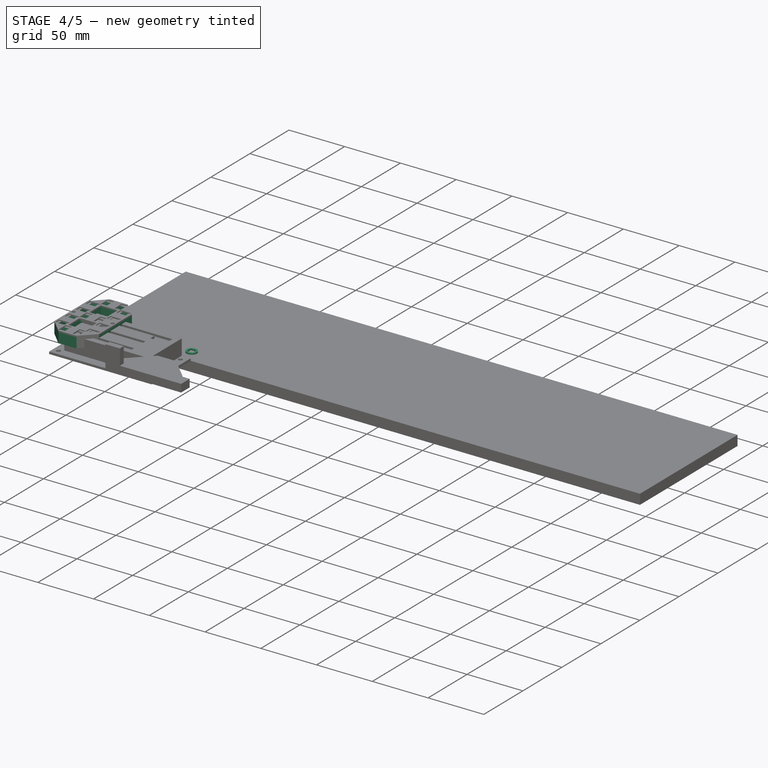
[diagram: stage 4 of 5 — iso view after this stage's code; geometry added in this stage tinted green]
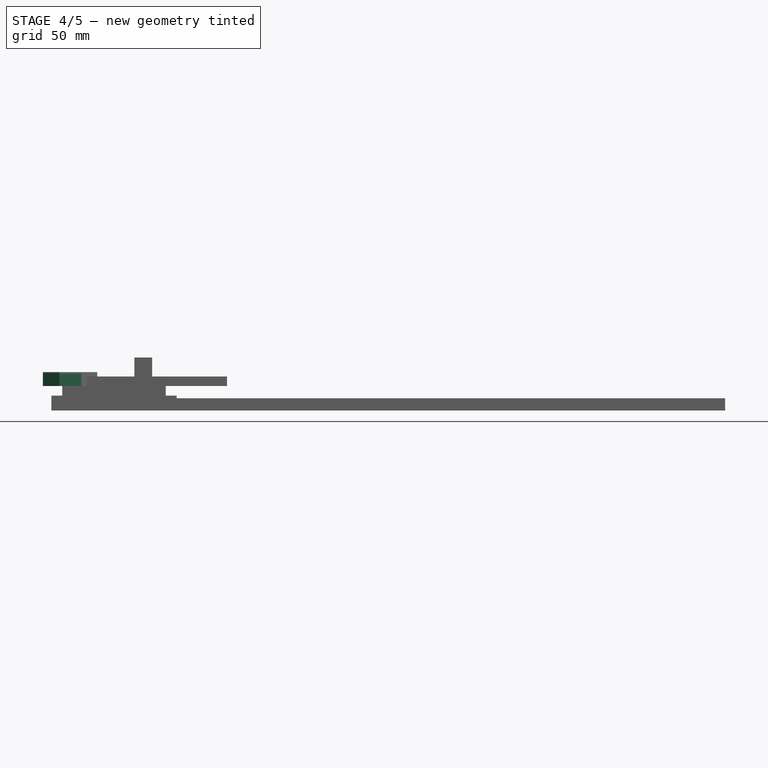
[diagram: stage 4 of 5 — front view after this stage's code; geometry added in this stage tinted green]
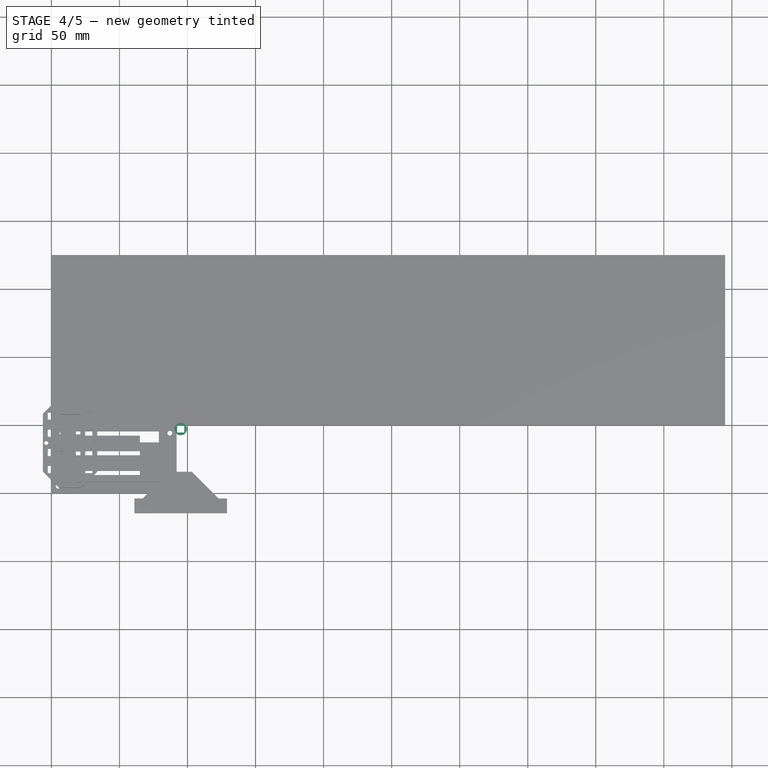
[diagram: stage 4 of 5 — top view after this stage's code; geometry added in this stage tinted green]
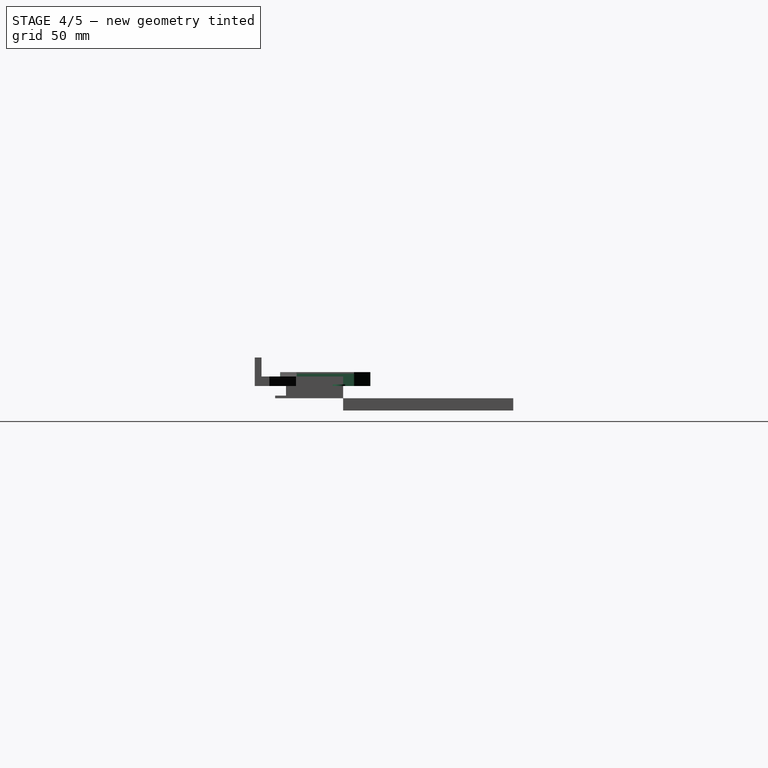
[diagram: stage 4 of 5 — right view after this stage's code; geometry added in this stage tinted green]
FEATURE [PartDesign::Fillet] Fillet002  label="3D Print Segments Fillet"
  Base = -> Pad005 [Edge1,Edge20,Edge17,Edge14,Edge2,Edge11,Edge8,Edge5]
  BaseFeature = -> Pad005
  Placement = pos=(0,0,9) rot=(0,0,1;0rad)
  Radius = 1
FEATURE [PartDesign::Body] Body005  label="3DP segments"
  Group = -> [Pad005,Fillet002]
  Origin = -> Origin005
  Placement = pos=(-75,0,-9) rot=(0,0,1;0rad)
  Tip = -> Fillet002
FEATURE [Part::Fillet] Fillet003
  Base = -> Pocket002
  Edges = 4 edges r=15: [Edge1,Edge2,Edge5,Edge8]
FEATURE [App::FeaturePython] SetupSheet  # Path/CAM operation (typed FeaturePython)
  ClearanceHeightExpression = OpStockZMax+SetupSheet.ClearanceHeightOffset
  ClearanceHeightOffset = 5
  FinalDepthExpression = OpFinalDepth
  HorizRapid = 0
  SafeHeightExpression = OpStockZMax+SetupSheet.SafeHeightOffset
  SafeHeightOffset = 3
  StartDepthExpression = OpStartDepth
  StepDownExpression = OpToolDiameter
  VertRapid = 0
FEATURE [Part::FeaturePython] Clone  label="Model-Fillet003"  # Draft clone (typed FeaturePython)
  AttacherType = Attacher::AttachEngine3D
  Fuse = false
  Objects = -> [Fillet003]
  PathResource = Model
  Placement = pos=(25,65,-9) rot=(0,0,1;0rad)
  Scale = (1,1,1)
FEATURE [App::DocumentObjectGroup] Model
  Group = -> [Clone]
FEATURE [Part::FeaturePython] Stock  # WARN: FeaturePython — macro-defined, semantics opaque (R4)
  Base = -> Model
  ExtXneg = 0
  ExtXpos = 0
  ExtYneg = 0
  ExtYpos = 0
  ExtZneg = 0
  ExtZpos = 0
  Placement = pos=(0,0,-9) rot=(0,0,1;0rad)
  StockType = FromBase
FEATURE [Path::FeaturePython] T2__6mm  label="T3: 6mm"  # Path/CAM operation (typed FeaturePython)
  HorizFeed = 5
  HorizRapid = 0
  SpindleDir = 0
  SpindleSpeed = 0
  ToolNumber = 3
  VertFeed = 5
  VertRapid = 0
  expr: HorizRapid = SetupSheet.HorizRapid
  expr: VertRapid = SetupSheet.VertRapid
FEATURE [Path::FeaturePython] T1__3mm  label="T1: 3mm"  # Path/CAM operation (typed FeaturePython)
  HorizFeed = 5
  HorizRapid = 0
  SpindleDir = 0
  SpindleSpeed = 0
  ToolNumber = 1
  VertFeed = 5
  VertRapid = 0
  expr: HorizRapid = SetupSheet.HorizRapid
  expr: VertRapid = SetupSheet.VertRapid
FEATURE [PartDesign::ShapeBinder] ShapeBinder
  Support = -> [Pocket002]
  TraceSupport = false
FEATURE [Sketcher::SketchObject] Sketch012
  ExternalGeometry = -> [ShapeBinder]
  MapMode = 5
  Support = -> [XY_Plane007]
  sketch-geometry (2):
    g0: Circle CenterX=95 CenterY=-3.0275 CenterZ=0 NormalX=0 NormalY=0 NormalZ=1 AngleXU=0 Radius=4
    g1: Circle CenterX=95 CenterY=-3.0275 CenterZ=0 NormalX=0 NormalY=0 NormalZ=1 AngleXU=0 Radius=4.45
  constraints (4):
    c: Coincident(g0,g-3)
    c: Coincident(g1,g0)
    c: Radius(g1) = 4.45
    c: Radius(g0) = 4
FEATURE [PartDesign::Pad] Pad007  label="dot insert"
  Length = 9
  Length2 = 100
  Profile = -> Sketch012
  Type = 0
FEATURE [PartDesign::Body] Body007  label="3DP dot insert"
  Group = -> [ShapeBinder,Sketch012,Pad007]
  Origin = -> Origin007
  Tip = -> Pad007
FEATURE [PartDesign::ShapeBinder] ShapeBinder001
  Placement = pos=(0,0,9) rot=(0,0,1;0rad)
  Support = -> [Pad007]
  TraceSupport = false
FEATURE [Sketcher::SketchObject] Sketch013
  ExternalGeometry = -> [ShapeBinder001]
  MapMode = 5
  Placement = pos=(0,0,9) rot=(0,0,1;0rad)
  Support = -> [ShapeBinder001]
  expr: Constraints[13] = Spreadsheet.LEDwidth
  sketch-geometry (6):
    g0: LineSegment StartX=97.625 StartY=-5.6525 StartZ=0 EndX=97.625 EndY=-0.4025 EndZ=0
    g1: LineSegment StartX=97.625 StartY=-0.4025 StartZ=0 EndX=92.375 EndY=-0.4025 EndZ=0
    g2: LineSegment StartX=92.375 StartY=-0.4025 StartZ=0 EndX=92.375 EndY=-5.6525 EndZ=0
    g3: LineSegment StartX=92.375 StartY=-5.6525 StartZ=0 EndX=97.625 EndY=-5.6525 EndZ=0
    g4: Circle [constr] CenterX=95 CenterY=-3.0275 CenterZ=0 NormalX=0 NormalY=0 NormalZ=1 AngleXU=0 Radius=3.71231
    g5: Circle CenterX=95 CenterY=-3.0275 CenterZ=0 NormalX=0 NormalY=0 NormalZ=1 AngleXU=0 Radius=4.6
  constraints (16):
    c: Coincident(g0,g1)
    c: Coincident(g1,g2)
    c: Coincident(g2,g3)
    c: Coincident(g3,g0)
    c: Equal(g0,g1)
    c: Equal(g0,g2)
    c: Equal(g0,g3)
    c: PointOnObject(g0,g4)
    c: PointOnObject(g1,g4)
    c: PointOnObject(g2,g4)
    c: PointOnObject(g3,g4)
    c: Coincident(g4,g-3)
    c: Horizontal(g1)
    c: DistanceX(g1,g1) = 5.25
    c: Coincident(g5,g4)
    c: Radius(g5) = 4.6
FEATURE [PartDesign::Pad] Pad008  label="dot back panel"
  Length = 1.2
  Length2 = 100
  Placement = pos=(0,0,9) rot=(0,0,1;0rad)
  Profile = -> Sketch013
  Type = 0
FEATURE [PartDesign::Body] Body011  label="BackRing003"
  Group = -> [Sketch023,Sketch024,Pad012,Sketch022,Pocket005]
  Origin = -> Origin011
  Placement = pos=(317,-55,-9) rot=(0,0,1;3.14159rad)
  Tip = -> Pocket005
FEATURE [App::FeaturePython] SetupSheet001  # Path/CAM operation (typed FeaturePython)
  ClearanceHeightExpression = OpStockZMax+SetupSheet001.ClearanceHeightOffset
  ClearanceHeightOffset = 5
  FinalDepthExpression = OpFinalDepth
  HorizRapid = 0
  SafeHeightExpression = OpStockZMax+SetupSheet001.SafeHeightOffset
  SafeHeightOffset = 3
  StartDepthExpression = OpStartDepth
  StepDownExpression = OpToolDiameter
  VertRapid = 0
FEATURE [Part::FeaturePython] Clone001  label="Model-BackRing001"  # Draft clone (typed FeaturePython)
  AttacherType = Attacher::AttachEngine3D
  Fuse = false
  Objects = -> [Body009]
  PathResource = Model
  Placement = pos=(25,90,-9) rot=(0,0,1;0rad)
  Scale = (1,1,1)
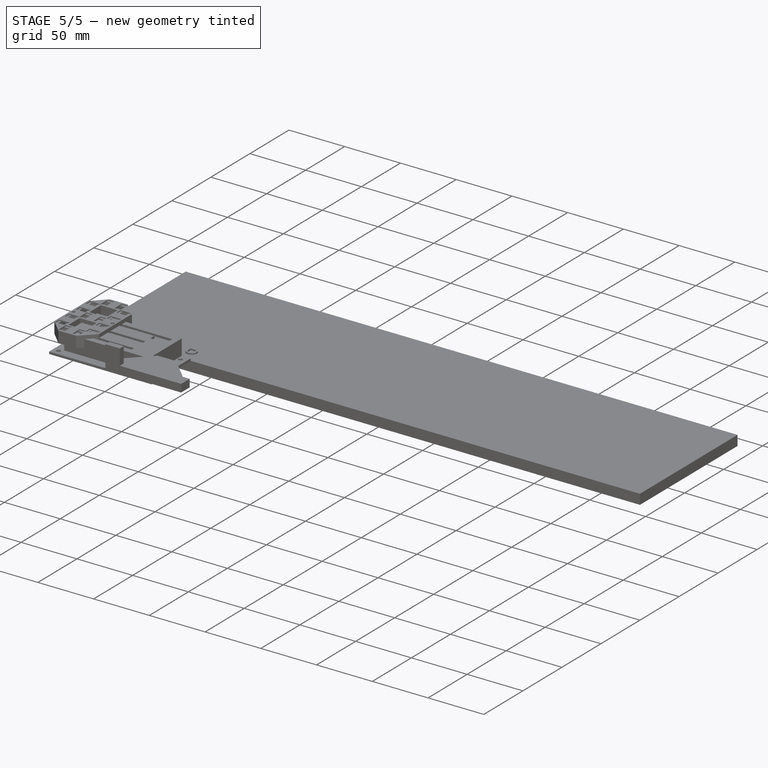
[diagram: stage 5 of 5 — iso view after this stage's code; geometry added in this stage tinted green]
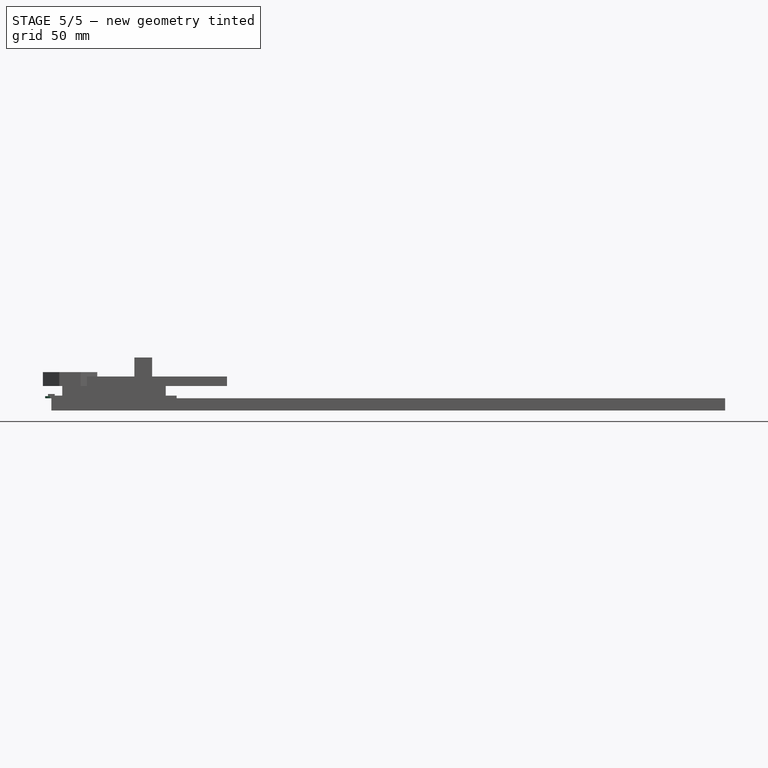
[diagram: stage 5 of 5 — front view after this stage's code; geometry added in this stage tinted green]
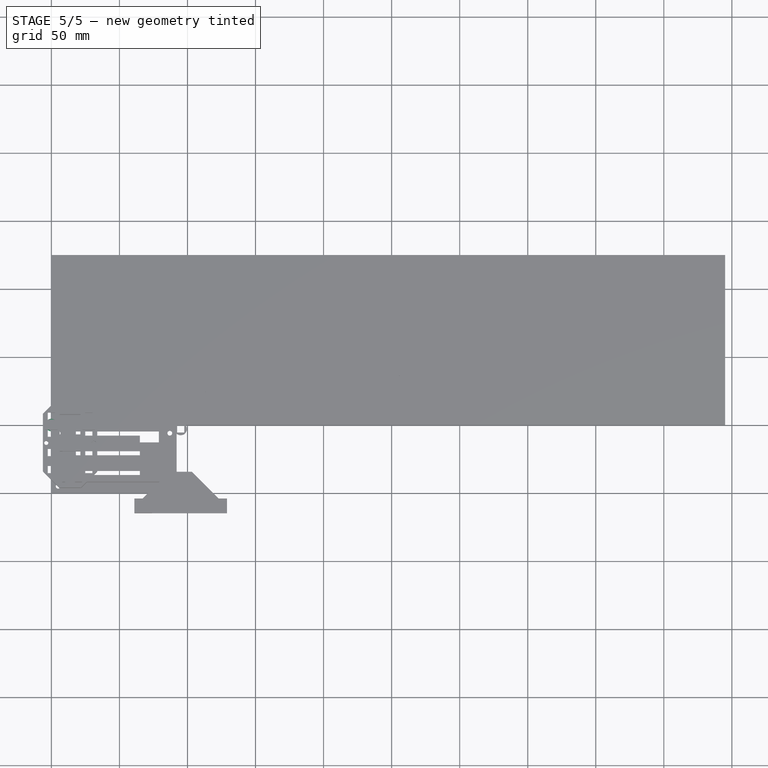
[diagram: stage 5 of 5 — top view after this stage's code; geometry added in this stage tinted green]
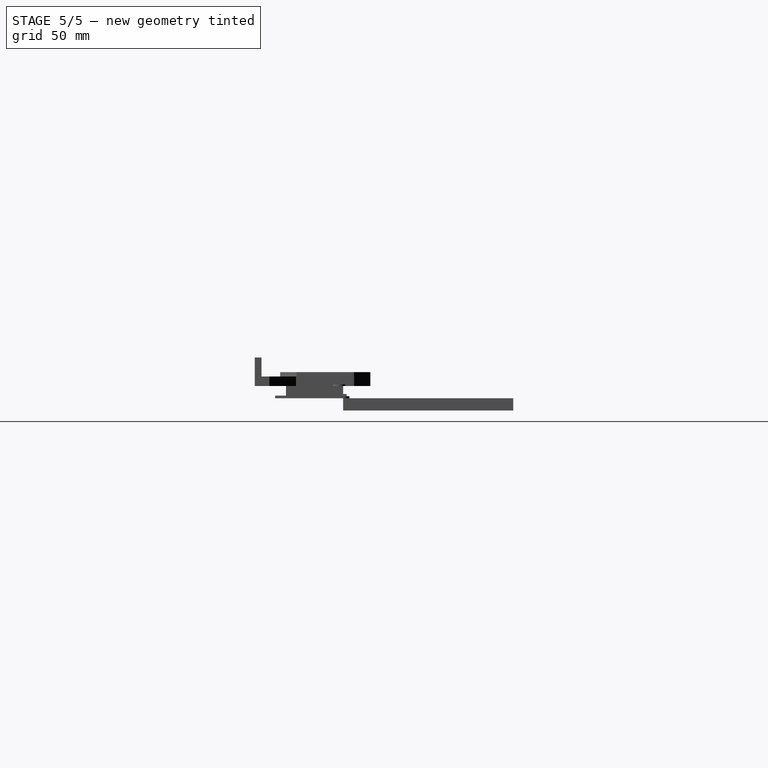
[diagram: stage 5 of 5 — right view after this stage's code; geometry added in this stage tinted green]
FEATURE [Sketcher::SketchObject] Sketch
  MapMode = 5
  Support = -> [XY_Plane]
  sketch-geometry (1):
    g0: Circle CenterX=0 CenterY=0 CenterZ=0 NormalX=0 NormalY=0 NormalZ=1 AngleXU=0 Radius=4.58
  constraints (2):
    c: Coincident(g0,g-1)
    c: Radius(g0) = 4.58
FEATURE [PartDesign::Pad] Pad
  Length = 1.55
  Length2 = 100
  Profile = -> Sketch
  Type = 0
FEATURE [Sketcher::SketchObject] Sketch001
  MapMode = 5
  Placement = pos=(0,0,1.55) rot=(0,0,1;0rad)
  Support = -> [Pad]
  sketch-geometry (4):
    g0: LineSegment StartX=-2.5 StartY=-2.5 StartZ=0 EndX=2.5 EndY=-2.5 EndZ=0
    g1: LineSegment StartX=2.5 StartY=-2.5 StartZ=0 EndX=2.5 EndY=2.5 EndZ=0
    g2: LineSegment StartX=2.5 StartY=2.5 StartZ=0 EndX=-2.5 EndY=2.5 EndZ=0
    g3: LineSegment StartX=-2.5 StartY=2.5 StartZ=0 EndX=-2.5 EndY=-2.5 EndZ=0
  constraints (12):
    c: Coincident(g0,g1)
    c: Coincident(g1,g2)
    c: Coincident(g2,g3)
    c: Coincident(g3,g0)
    c: Horizontal(g0)
    c: Horizontal(g2)
    c: Vertical(g1)
    c: Vertical(g3)
    c: Distance(g3) = 5
    c: Distance(g2) = 5
    c: DistanceX(g1) = 2.5
    c: DistanceY(g1) = 2.5
FEATURE [PartDesign::Pad] Pad001
  BaseFeature = -> Pad
  Length = 1.6
  Length2 = 100
  Profile = -> Sketch001
  Type = 0
FEATURE [Sketcher::SketchObject] Sketch002
  MapMode = 5
  Placement = pos=(0,0,3.15) rot=(0,0,1;0rad)
  Support = -> [Pad001]
  sketch-geometry (1):
    g0: Circle CenterX=0 CenterY=0 CenterZ=0 NormalX=0 NormalY=0 NormalZ=1 AngleXU=0 Radius=1.7
  constraints (2):
    c: Coincident(g0,g-1)
    c: Radius(g0) = 1.7
FEATURE [PartDesign::Pocket] Pocket
  BaseFeature = -> Pad001
  Length = 0.2
  Length2 = 100
  Profile = -> Sketch002
  Type = 0
FEATURE [PartDesign::Fillet] Fillet
  Base = -> Pocket [Edge2,Edge3]
  BaseFeature = -> Pocket
  Radius = 0.1
FEATURE [PartDesign::Body] Body  label="LED WS2812B"
  Group = -> [Sketch,Pad,Sketch001,Pad001,Sketch002,Pocket,Fillet]
  Origin = -> Origin
  Tip = -> Fillet
FEATURE [Sketcher::SketchObject] Sketch003
  MapMode = 5
  Support = -> [XY_Plane001]
  sketch-geometry (6):
    g0: LineSegment StartX=-9.99849 StartY=10.0015 StartZ=0 EndX=0 EndY=20 EndZ=0
    g1: LineSegment StartX=0 StartY=20 StartZ=0 EndX=10.0015 EndY=9.99849 EndZ=0
    g2: LineSegment StartX=-9.99849 StartY=10.0015 StartZ=0 EndX=-9.99849 EndY=-29.9985 EndZ=0
    g3: LineSegment StartX=-9.99849 StartY=-29.9985 StartZ=0 EndX=0.00302023 EndY=-40 EndZ=0
    g4: LineSegment StartX=10.0015 StartY=9.99849 StartZ=0 EndX=10.0015 EndY=-30.0015 EndZ=0
    g5: LineSegment StartX=10.0015 StartY=-30.0015 StartZ=0 EndX=0.00302023 EndY=-40 EndZ=0
  constraints (17):
    c: PointOnObject(g0,g-2)
    c: Coincident(g1,g0)
    c: Coincident(g2,g0)
    c: Vertical(g2)
    c: Coincident(g3,g2)
    c: Coincident(g4,g1)
    c: Vertical(g4)
    c: Coincident(g5,g4)
    c: Coincident(g5,g3)
    c: Angle(g0) = 0.785398
    c: Angle(g1) = -0.785398
    c: Angle(g5) = -2.35619
    c: Angle(g3) = -0.785398
    c: Distance(g2) = 40
    c: Distance(g4) = 40
    c: DistanceX(g0,g1) = 20
    c: Distance(g5) = 14.14
FEATURE [PartDesign::Body] Body001  label="Segment Large"
  Group = -> [Sketch003]
  Origin = -> Origin001
FEATURE [Sketcher::SketchObject] Sketch005
  MapMode = 5
  Support = -> [XY_Plane002]
  sketch-geometry (1):
    g0: Circle CenterX=0 CenterY=0 CenterZ=0 NormalX=0 NormalY=0 NormalZ=1 AngleXU=0 Radius=4.575
  constraints (2):
    c: Coincident(g0,g-1)
    c: Radius(g0) = 4.575
FEATURE [PartDesign::Pad] Pad002
  Length = 1.55
  Length2 = 100
  Profile = -> Sketch005
  Type = 0
FEATURE [Sketcher::SketchObject] Sketch004
  MapMode = 5
  Placement = pos=(0,0,1.55) rot=(0,0,1;0rad)
  Support = -> [Pad002]
  sketch-geometry (4):
    g0: LineSegment StartX=-2.5 StartY=-2.5 StartZ=0 EndX=2.5 EndY=-2.5 EndZ=0
    g1: LineSegment StartX=2.5 StartY=-2.5 StartZ=0 EndX=2.5 EndY=2.5 EndZ=0
    g2: LineSegment StartX=2.5 StartY=2.5 StartZ=0 EndX=-2.5 EndY=2.5 EndZ=0
    g3: LineSegment StartX=-2.5 StartY=2.5 StartZ=0 EndX=-2.5 EndY=-2.5 EndZ=0
  constraints (12):
    c: Coincident(g0,g1)
    c: Coincident(g1,g2)
    c: Coincident(g2,g3)
    c: Coincident(g3,g0)
    c: Horizontal(g0)
    c: Horizontal(g2)
    c: Vertical(g1)
    c: Vertical(g3)
    c: Distance(g3) = 5
    c: Distance(g2) = 5
    c: DistanceX(g1) = 2.5
    c: DistanceY(g1) = 2.5
FEATURE [PartDesign::Pad] Pad003
  BaseFeature = -> Pad002
  Length = 1.6
  Length2 = 100
  Profile = -> Sketch004
  Type = 0
FEATURE [Sketcher::SketchObject] Sketch006
  MapMode = 5
  Placement = pos=(0,0,3.15) rot=(0,0,1;0rad)
  Support = -> [Pad003]
  sketch-geometry (1):
    g0: Circle CenterX=0 CenterY=0 CenterZ=0 NormalX=0 NormalY=0 NormalZ=1 AngleXU=0 Radius=1.7
  constraints (2):
    c: Coincident(g0,g-1)
    c: Radius(g0) = 1.7
FEATURE [PartDesign::Pocket] Pocket001
  BaseFeature = -> Pad003
  Length = 0.2
  Length2 = 100
  Profile = -> Sketch006
  Type = 0
FEATURE [PartDesign::Fillet] Fillet001
  Base = -> Pocket001 [Edge2,Edge3]
  BaseFeature = -> Pocket001
  Radius = 0.1
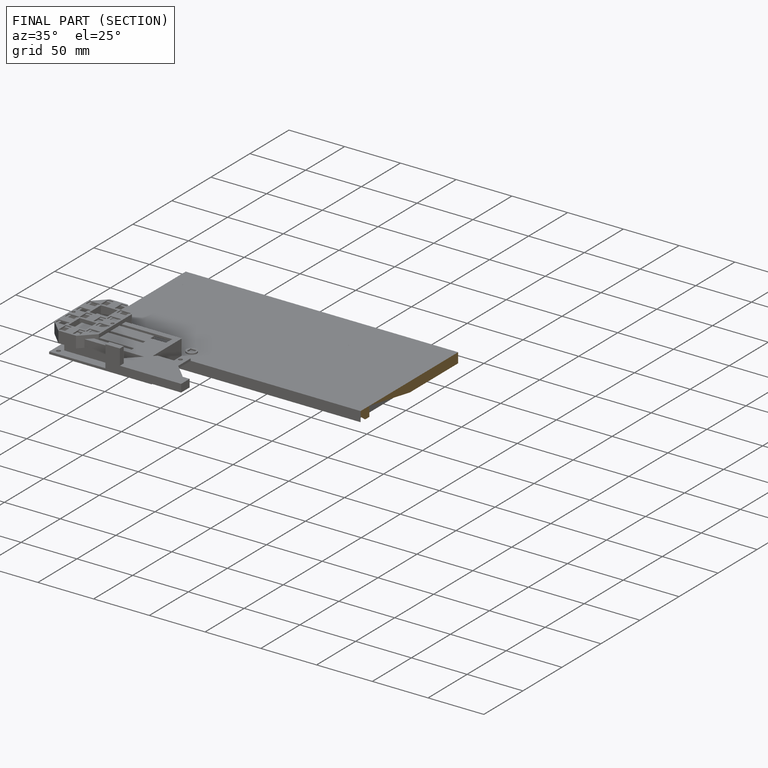
[diagram: finished part — half-section view (interior)]
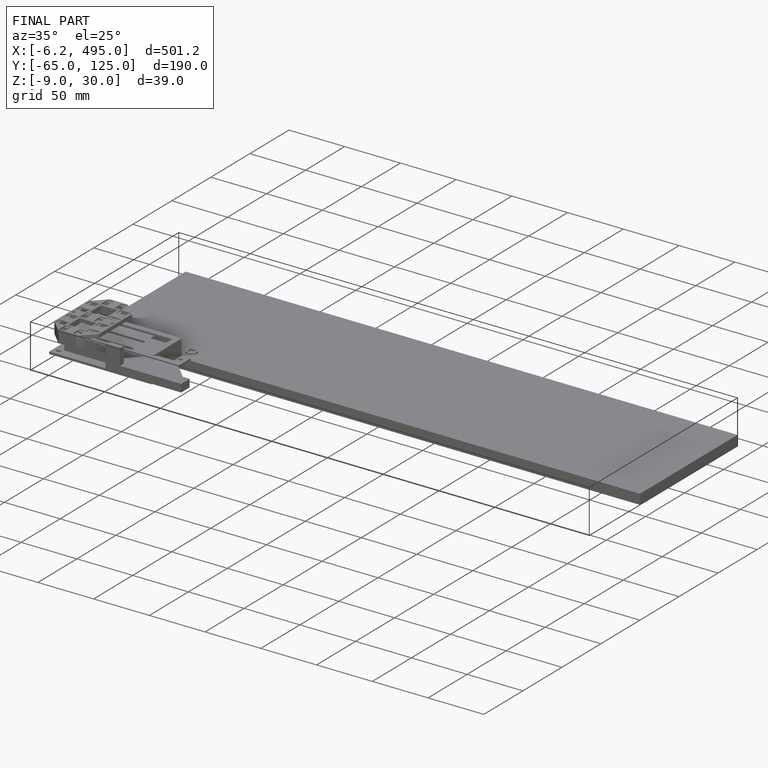
[diagram: finished part — iso view with bounding-box wireframe]
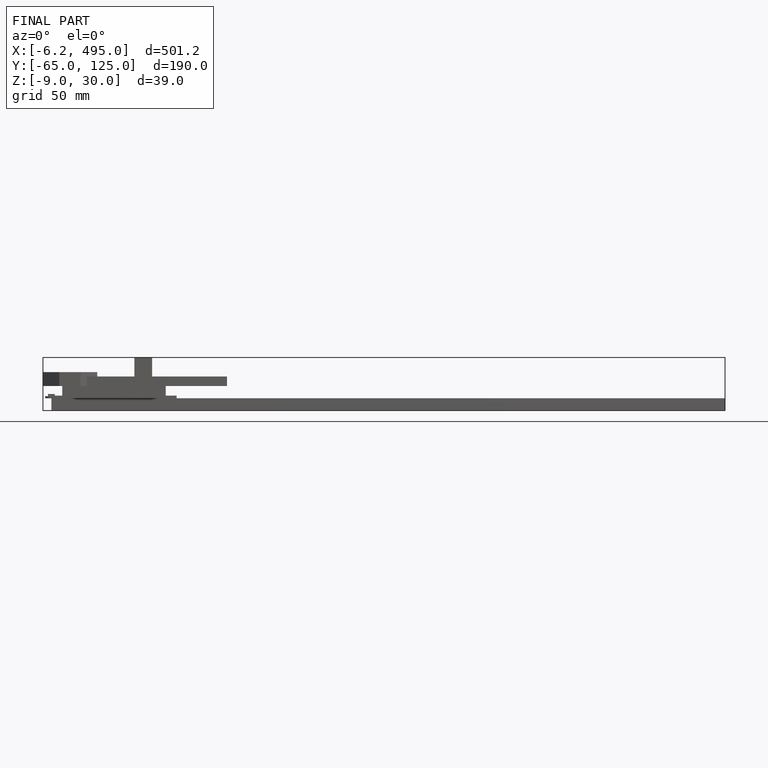
[diagram: finished part — front view with bounding-box wireframe]
